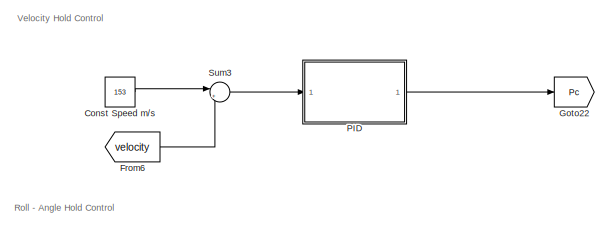
[diagram: root canvas - part 1/5, top right region]
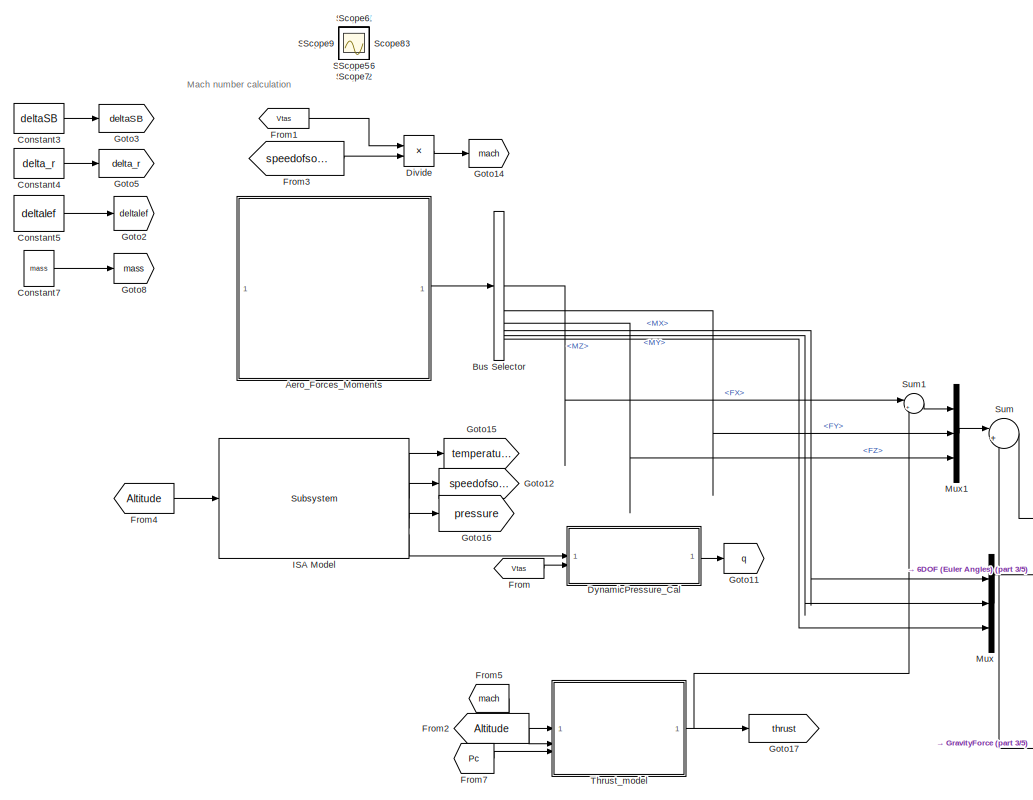
[diagram: root canvas - part 2/5, top left region]
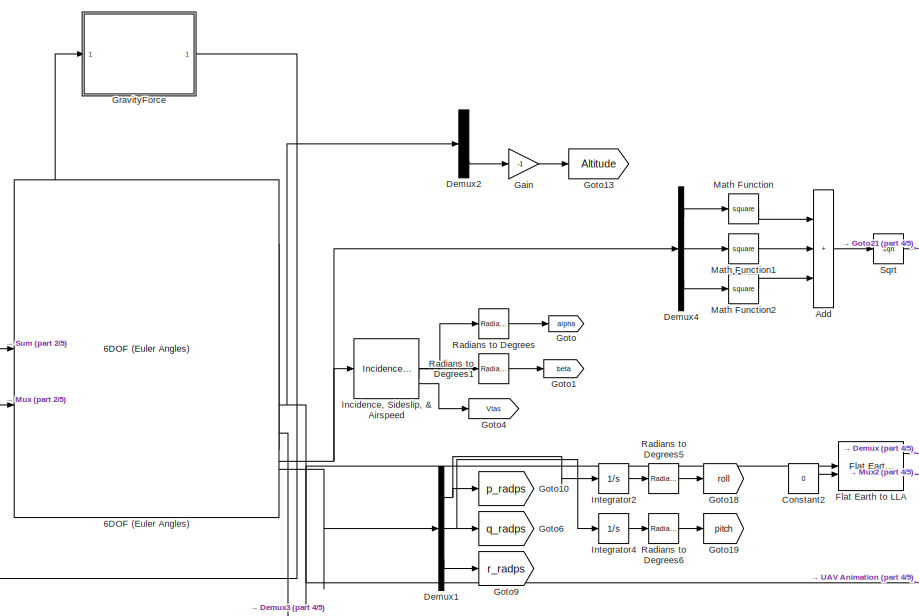
[diagram: root canvas - part 3/5, top center region]
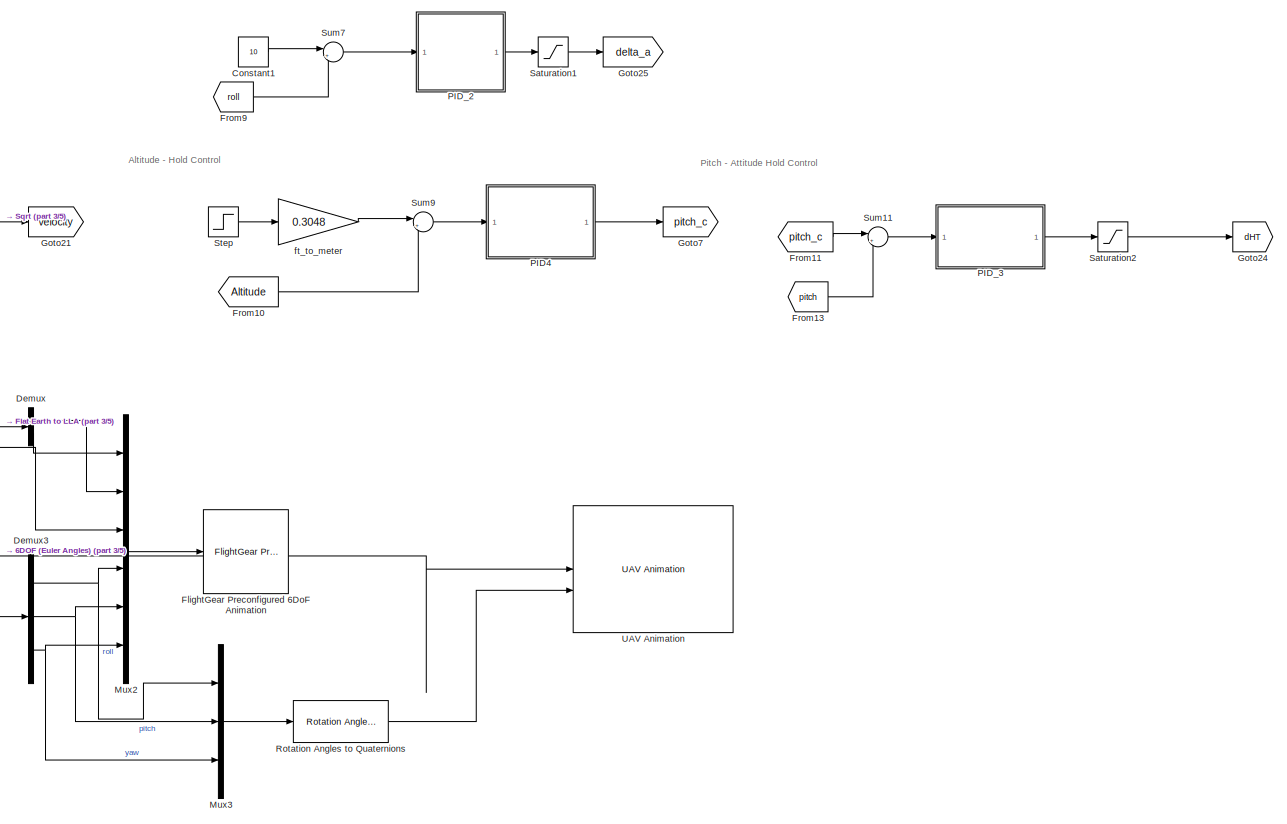
[diagram: root canvas - part 4/5, middle right region]
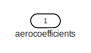
[diagram: root canvas - part 5/5, bottom left region]
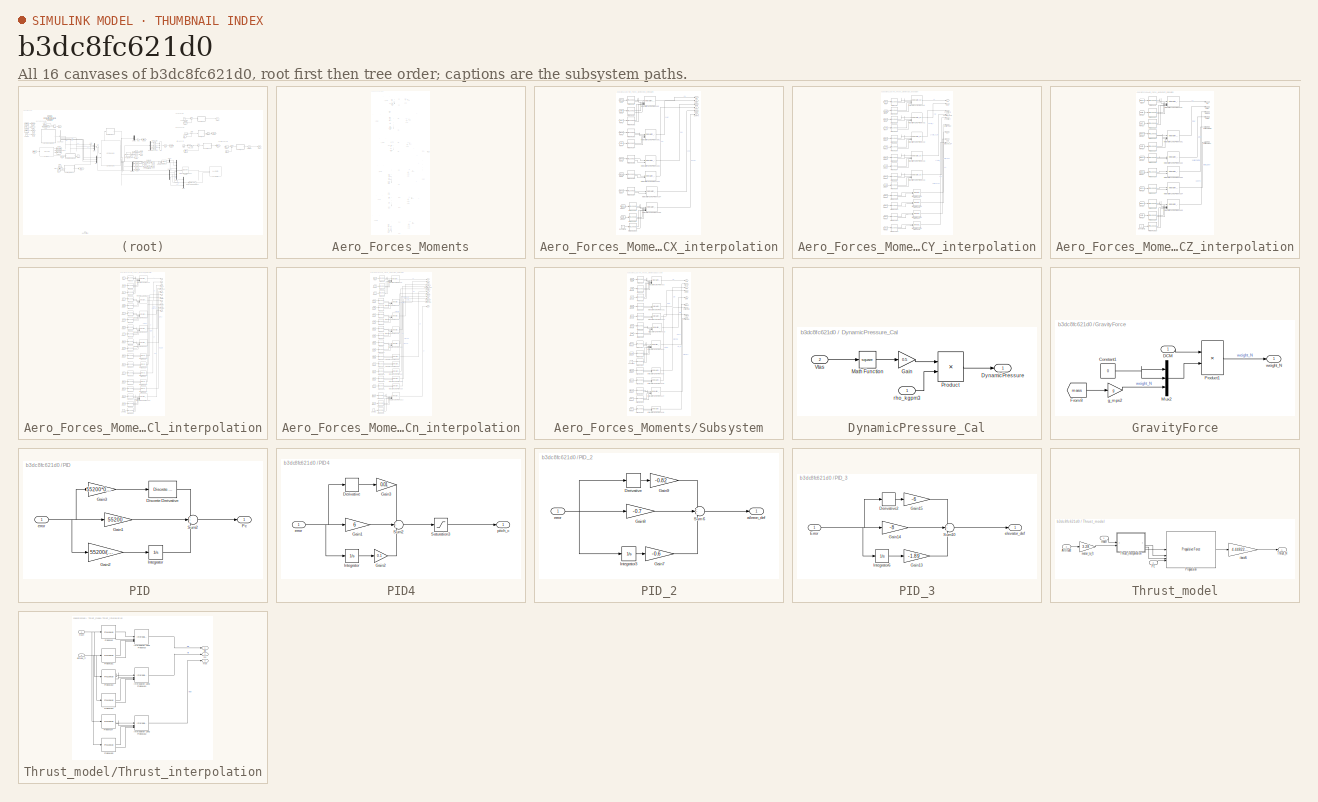
[diagram: thumbnail index - all 16 canvases of the model, root first then tree order]
MODEL slx_b3dc8fc621d0
KIND model
CONFIG AbsTol = auto
CONFIG EnableMultiTasking = off
CONFIG FixedStep = auto
CONFIG MaxStep = auto
CONFIG MinStep = auto
CONFIG RelTol = 1e-3
CONFIG SampleTimeConstraint = Unconstrained
CONFIG SolverName = VariableStepAuto
CONFIG StartTime = 0.0
CONFIG StopTime = 60
BLOCK [Reference] 6DOF (Euler Angles)  REF=shared6dof/6DOF (Euler Angles)
  LibrarySourceBlock = aerolib6dof2/6DOF (Euler Angles)
  SourceBlock = shared6dof/6DOF (Euler Angles)
  SourceType = 6DOF EoM (Body Axis)
BLOCK [Sum] Add
  IconShape = rectangular
  Inputs = +++
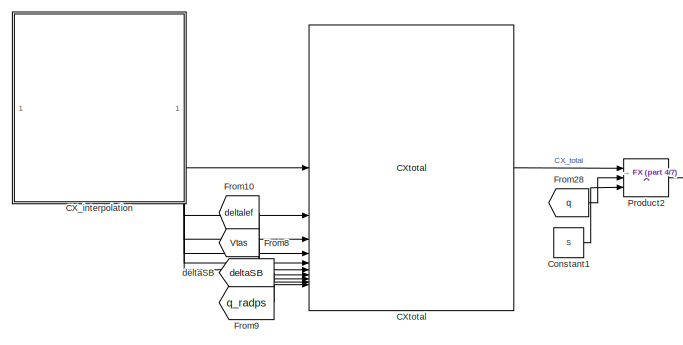
[diagram: Aero_Forces_Moments - part 1/7, top center region]
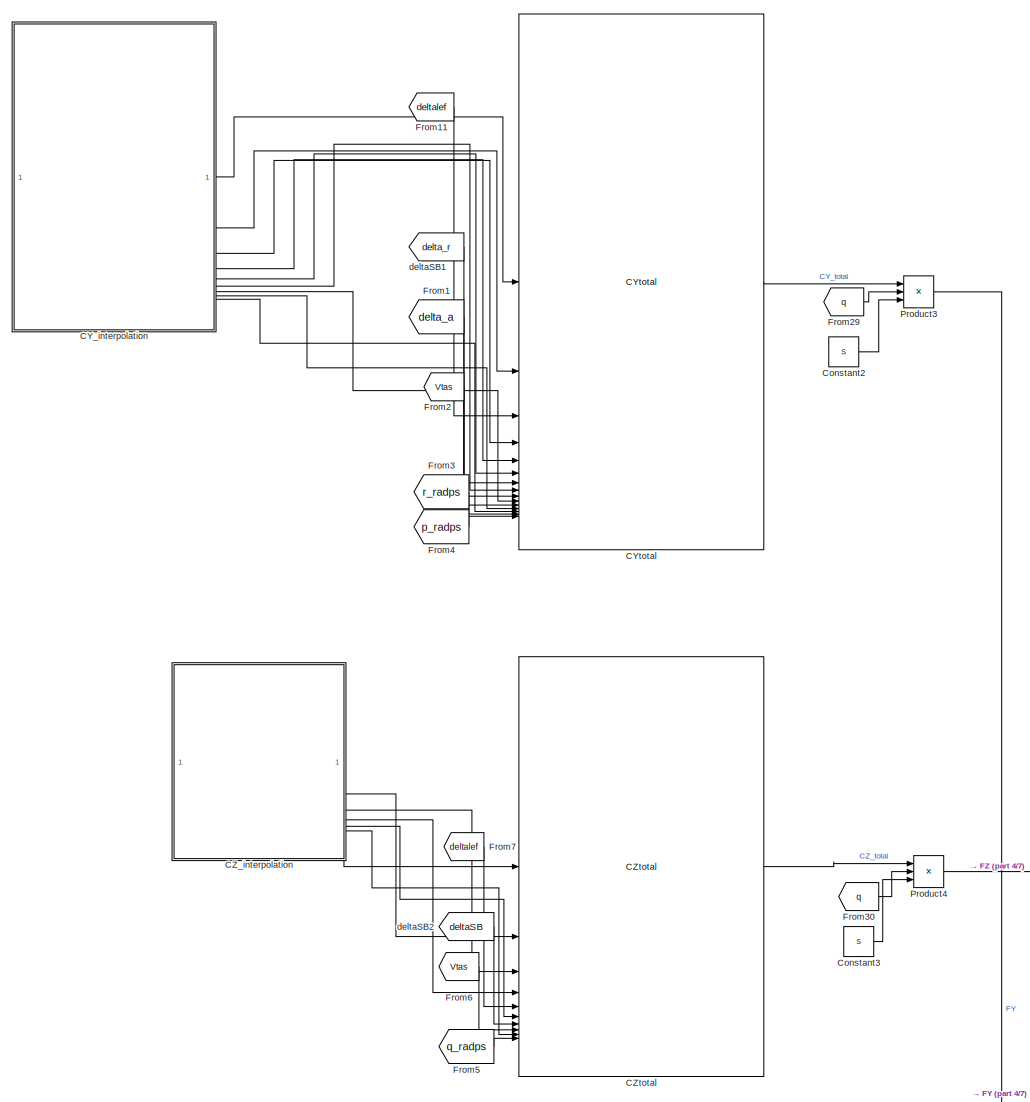
[diagram: Aero_Forces_Moments - part 2/7, top center region]
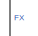
[diagram: Aero_Forces_Moments - part 3/7, top right region]
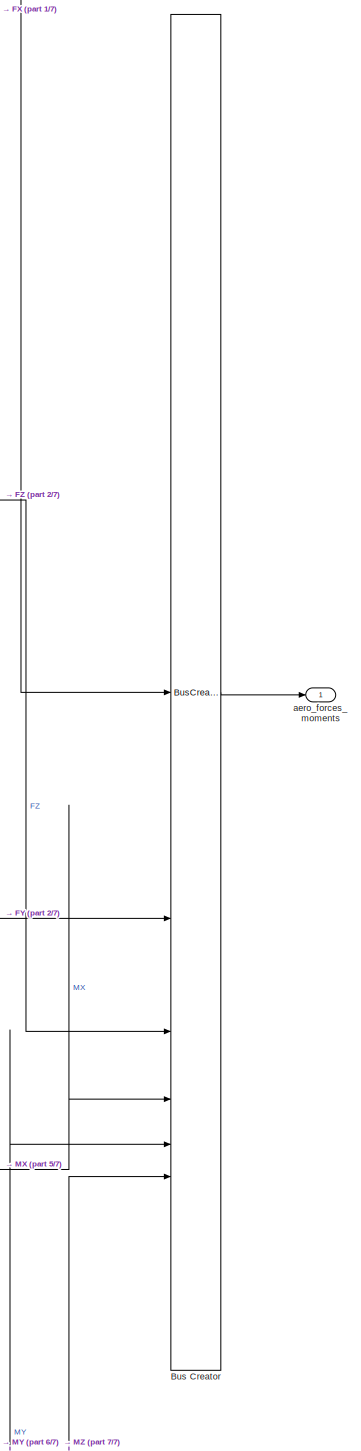
[diagram: Aero_Forces_Moments - part 4/7, middle right region]
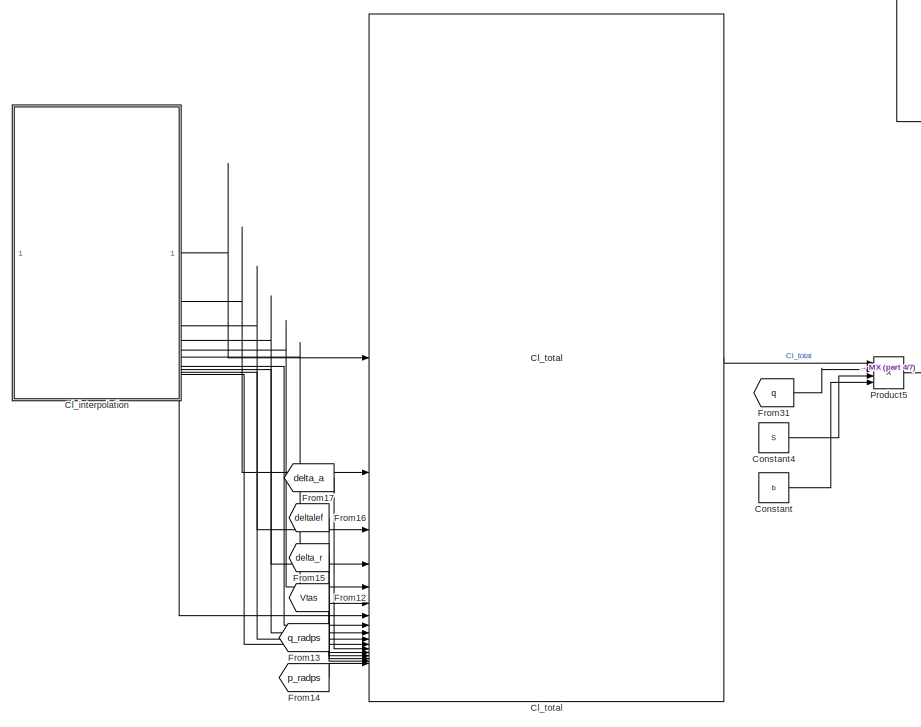
[diagram: Aero_Forces_Moments - part 5/7, central region]
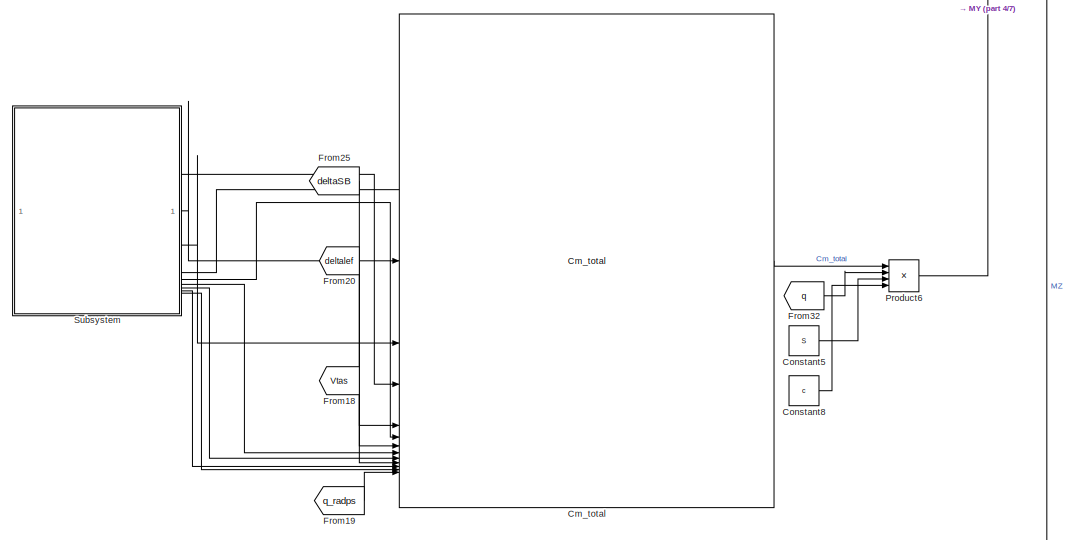
[diagram: Aero_Forces_Moments - part 6/7, full width, bottom band]
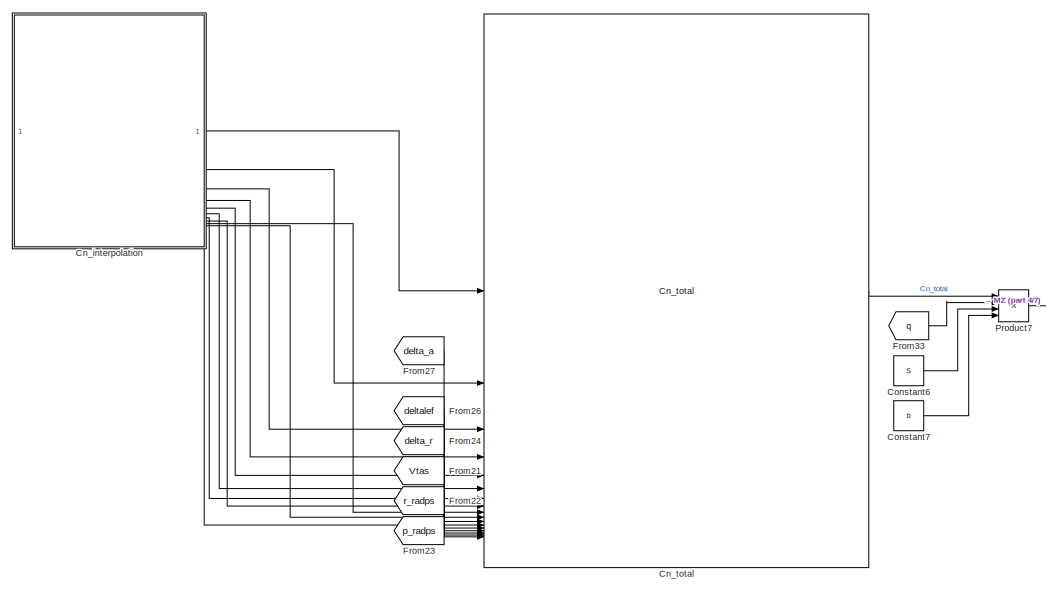
[diagram: Aero_Forces_Moments - part 7/7, full width, bottom band]
BLOCK [SubSystem] Aero_Forces_Moments
BLOCK [BusCreator] Aero_Forces_Moments/Bus Creator
  DisplayOption = bar
  InheritFromInputs = on
  Inputs = 6
BLOCK [SubSystem] Aero_Forces_Moments/CX_interpolation
BLOCK [Outport] Aero_Forces_Moments/CX_interpolation/CX
BLOCK [Outport] Aero_Forces_Moments/CX_interpolation/CXHT0
  Port = 6
BLOCK [Outport] Aero_Forces_Moments/CX_interpolation/CXlef
  Port = 2
BLOCK [Outport] Aero_Forces_Moments/CX_interpolation/CXq
  Port = 3
BLOCK [Outport] Aero_Forces_Moments/CX_interpolation/CXq1
  Port = 4
BLOCK [Outport] Aero_Forces_Moments/CX_interpolation/CXq2
  Port = 5
BLOCK [Constant] Aero_Forces_Moments/CX_interpolation/Constant1
  Value = 0
BLOCK [From] Aero_Forces_Moments/CX_interpolation/From
  GotoTag = alpha
  TagVisibility = global
BLOCK [From] Aero_Forces_Moments/CX_interpolation/From1
  GotoTag = beta
  TagVisibility = global
BLOCK [From] Aero_Forces_Moments/CX_interpolation/From11
  GotoTag = alpha
  TagVisibility = global
BLOCK [From] Aero_Forces_Moments/CX_interpolation/From12
  GotoTag = beta
  TagVisibility = global
BLOCK [From] Aero_Forces_Moments/CX_interpolation/From2
  GotoTag = dHT
  TagVisibility = global
BLOCK [From] Aero_Forces_Moments/CX_interpolation/From3
  GotoTag = alpha
  TagVisibility = global
BLOCK [From] Aero_Forces_Moments/CX_interpolation/From4
  GotoTag = beta
  TagVisibility = global
BLOCK [From] Aero_Forces_Moments/CX_interpolation/From5
  GotoTag = alpha
  TagVisibility = global
BLOCK [From] Aero_Forces_Moments/CX_interpolation/From6
  GotoTag = alpha
  TagVisibility = global
BLOCK [From] Aero_Forces_Moments/CX_interpolation/From7
  GotoTag = alpha
  TagVisibility = global
BLOCK [Interpolation_n-D] Aero_Forces_Moments/CX_interpolation/Interpolation Using Prelookup
  InputPortMap = u0,u1,u2,u3,u4,u5
  IntermediateResultsDataTypeStr = Inherit: Inherit via internal rule
  InternalRulePriority = Speed
  NumberOfTableDimensions = 3
  Table = F16_LookupTables.aero.data.CX.CX
BLOCK [Interpolation_n-D] Aero_Forces_Moments/CX_interpolation/Interpolation Using Prelookup1
  InputPortMap = u0,u1,u2,u3
  IntermediateResultsDataTypeStr = Inherit: Inherit via internal rule
  InternalRulePriority = Speed
  Table = F16_LookupTables.aero.data.CX.CXlef
BLOCK [Interpolation_n-D] Aero_Forces_Moments/CX_interpolation/Interpolation Using Prelookup2
  InputPortMap = u0,u1
  IntermediateResultsDataTypeStr = Inherit: Inherit via internal rule
  InternalRulePriority = Speed
  NumberOfTableDimensions = 1
  Table = F16_LookupTables.aero.data.CX.CXq
BLOCK [Interpolation_n-D] Aero_Forces_Moments/CX_interpolation/Interpolation Using Prelookup3
  InputPortMap = u0,u1
  IntermediateResultsDataTypeStr = Inherit: Inherit via internal rule
  InternalRulePriority = Speed
  NumberOfTableDimensions = 1
  Table = F16_LookupTables.aero.data.CX.deltaCXqlef
BLOCK [Interpolation_n-D] Aero_Forces_Moments/CX_interpolation/Interpolation Using Prelookup4
  InputPortMap = u0,u1
  IntermediateResultsDataTypeStr = Inherit: Inherit via internal rule
  InternalRulePriority = Speed
  NumberOfTableDimensions = 1
  Table = F16_LookupTables.aero.data.CX.deltaCXSB
BLOCK [Interpolation_n-D] Aero_Forces_Moments/CX_interpolation/Interpolation Using Prelookup5
  InputPortMap = u0,u1,u2,u3,u4,u5
  IntermediateResultsDataTypeStr = Inherit: Inherit via internal rule
  InternalRulePriority = Speed
  NumberOfTableDimensions = 3
  Table = F16_LookupTables.aero.data.CX.CX
BLOCK [PreLookup] Aero_Forces_Moments/CX_interpolation/Prelookup
  BreakpointsData = F16_LookupTables.aero.inputs.CX.CX.alpha
  ExtrapMethod = Linear
  InputPortMap = u0
BLOCK [PreLookup] Aero_Forces_Moments/CX_interpolation/Prelookup1
  BreakpointsData = F16_LookupTables.aero.inputs.CX.CX.beta
  ExtrapMethod = Linear
  InputPortMap = u0
BLOCK [PreLookup] Aero_Forces_Moments/CX_interpolation/Prelookup10
  BreakpointsData = F16_LookupTables.aero.inputs.CX.CX.dHT
  ExtrapMethod = Linear
  InputPortMap = u0
BLOCK [PreLookup] Aero_Forces_Moments/CX_interpolation/Prelookup2
  BreakpointsData = F16_LookupTables.aero.inputs.CX.CX.dHT
  ExtrapMethod = Linear
  InputPortMap = u0
BLOCK [PreLookup] Aero_Forces_Moments/CX_interpolation/Prelookup3
  BreakpointsData = F16_LookupTables.aero.inputs.CX.CXlef.alpha
  ExtrapMethod = Linear
  InputPortMap = u0
BLOCK [PreLookup] Aero_Forces_Moments/CX_interpolation/Prelookup4
  BreakpointsData = F16_LookupTables.aero.inputs.CX.CXlef.beta
  ExtrapMethod = Linear
  InputPortMap = u0
BLOCK [PreLookup] Aero_Forces_Moments/CX_interpolation/Prelookup5
  BreakpointsData = F16_LookupTables.aero.inputs.CX.CXq.alpha
  ExtrapMethod = Linear
  InputPortMap = u0
BLOCK [PreLookup] Aero_Forces_Moments/CX_interpolation/Prelookup6
  BreakpointsData = F16_LookupTables.aero.inputs.CX.deltaCXqlef.alpha
  ExtrapMethod = Linear
  InputPortMap = u0
BLOCK [PreLookup] Aero_Forces_Moments/CX_interpolation/Prelookup7
  BreakpointsData = F16_LookupTables.aero.inputs.CX.deltaCXSB.alpha
  ExtrapMethod = Linear
  InputPortMap = u0
BLOCK [PreLookup] Aero_Forces_Moments/CX_interpolation/Prelookup8
  BreakpointsData = F16_LookupTables.aero.inputs.CX.CX.alpha
  ExtrapMethod = Linear
  InputPortMap = u0
BLOCK [PreLookup] Aero_Forces_Moments/CX_interpolation/Prelookup9
  BreakpointsData = F16_LookupTables.aero.inputs.CX.CX.beta
  ExtrapMethod = Linear
  InputPortMap = u0
BLOCK [Reference] Aero_Forces_Moments/CXtotal  REF=coeff/CXtotal  (lib defined in slx_98ae481f2b9b)
  SourceBlock = coeff/CXtotal
  SourceType = SubSystem
BLOCK [SubSystem] Aero_Forces_Moments/CY_interpolation
BLOCK [Outport] Aero_Forces_Moments/CY_interpolation/CY
BLOCK [Outport] Aero_Forces_Moments/CY_interpolation/CYdelta_a
  Port = 3
BLOCK [Outport] Aero_Forces_Moments/CY_interpolation/CYdelta_aLEF
  Port = 4
BLOCK [Outport] Aero_Forces_Moments/CY_interpolation/CYdelta_r
  Port = 5
BLOCK [Outport] Aero_Forces_Moments/CY_interpolation/CYlef
  Port = 2
BLOCK [Outport] Aero_Forces_Moments/CY_interpolation/CYp
  Port = 8
BLOCK [Outport] Aero_Forces_Moments/CY_interpolation/CYr
  Port = 7
BLOCK [From] Aero_Forces_Moments/CY_interpolation/From
  GotoTag = alpha
  TagVisibility = global
BLOCK [From] Aero_Forces_Moments/CY_interpolation/From12
  GotoTag = alpha
  TagVisibility = global
BLOCK [From] Aero_Forces_Moments/CY_interpolation/From13
  GotoTag = beta
  TagVisibility = global
BLOCK [From] Aero_Forces_Moments/CY_interpolation/From14
  GotoTag = alpha
  TagVisibility = global
BLOCK [From] Aero_Forces_Moments/CY_interpolation/From15
  GotoTag = beta
  TagVisibility = global
BLOCK [From] Aero_Forces_Moments/CY_interpolation/From16
  GotoTag = alpha
  TagVisibility = global
BLOCK [From] Aero_Forces_Moments/CY_interpolation/From17
  GotoTag = beta
  TagVisibility = global
BLOCK [From] Aero_Forces_Moments/CY_interpolation/From18
  GotoTag = alpha
  TagVisibility = global
BLOCK [From] Aero_Forces_Moments/CY_interpolation/From19
  GotoTag = alpha
  TagVisibility = global
BLOCK [From] Aero_Forces_Moments/CY_interpolation/From20
  GotoTag = alpha
  TagVisibility = global
BLOCK [From] Aero_Forces_Moments/CY_interpolation/From21
  GotoTag = alpha
  TagVisibility = global
BLOCK [From] Aero_Forces_Moments/CY_interpolation/From5
  GotoTag = beta
  TagVisibility = global
BLOCK [From] Aero_Forces_Moments/CY_interpolation/From6
  GotoTag = alpha
  TagVisibility = global
BLOCK [From] Aero_Forces_Moments/CY_interpolation/From7
  GotoTag = beta
  TagVisibility = global
BLOCK [Interpolation_n-D] Aero_Forces_Moments/CY_interpolation/Interpolation Using Prelookup
  InputPortMap = u0,u1,u2,u3
  IntermediateResultsDataTypeStr = Inherit: Inherit via internal rule
  InternalRulePriority = Speed
  Table = F16_LookupTables.aero.data.CY.CY
BLOCK [Interpolation_n-D] Aero_Forces_Moments/CY_interpolation/Interpolation Using Prelookup1
  InputPortMap = u0,u1,u2,u3
  IntermediateResultsDataTypeStr = Inherit: Inherit via internal rule
  InternalRulePriority = Speed
  Table = F16_LookupTables.aero.data.CY.CYlef
BLOCK [Interpolation_n-D] Aero_Forces_Moments/CY_interpolation/Interpolation Using Prelookup2
  InputPortMap = u0,u1,u2,u3
  IntermediateResultsDataTypeStr = Inherit: Inherit via internal rule
  InternalRulePriority = Speed
  Table = F16_LookupTables.aero.data.CY.CYdelta_a
BLOCK [Interpolation_n-D] Aero_Forces_Moments/CY_interpolation/Interpolation Using Prelookup3
  InputPortMap = u0,u1,u2,u3
  IntermediateResultsDataTypeStr = Inherit: Inherit via internal rule
  InternalRulePriority = Speed
  Table = F16_LookupTables.aero.data.CY.CYdelta_aLEF
BLOCK [Interpolation_n-D] Aero_Forces_Moments/CY_interpolation/Interpolation Using Prelookup4
  InputPortMap = u0,u1,u2,u3
  IntermediateResultsDataTypeStr = Inherit: Inherit via internal rule
  InternalRulePriority = Speed
  Table = F16_LookupTables.aero.data.CY.CYdelta_r
BLOCK [Interpolation_n-D] Aero_Forces_Moments/CY_interpolation/Interpolation Using Prelookup5
  InputPortMap = u0,u1
  IntermediateResultsDataTypeStr = Inherit: Inherit via internal rule
  InternalRulePriority = Speed
  NumberOfTableDimensions = 1
  Table = F16_LookupTables.aero.data.CY.deltaCYrlef
BLOCK [Interpolation_n-D] Aero_Forces_Moments/CY_interpolation/Interpolation Using Prelookup6
  InputPortMap = u0,u1
  IntermediateResultsDataTypeStr = Inherit: Inherit via internal rule
  InternalRulePriority = Speed
  NumberOfTableDimensions = 1
  Table = F16_LookupTables.aero.data.CY.CYr
BLOCK [Interpolation_n-D] Aero_Forces_Moments/CY_interpolation/Interpolation Using Prelookup7
  InputPortMap = u0,u1
  IntermediateResultsDataTypeStr = Inherit: Inherit via internal rule
  InternalRulePriority = Speed
  NumberOfTableDimensions = 1
  Table = F16_LookupTables.aero.data.CY.CYp
BLOCK [Interpolation_n-D] Aero_Forces_Moments/CY_interpolation/Interpolation Using Prelookup8
  InputPortMap = u0,u1
  IntermediateResultsDataTypeStr = Inherit: Inherit via internal rule
  InternalRulePriority = Speed
  NumberOfTableDimensions = 1
  Table = F16_LookupTables.aero.data.CY.deltaCYplef
BLOCK [PreLookup] Aero_Forces_Moments/CY_interpolation/Prelookup
  BreakpointsData = F16_LookupTables.aero.inputs.CY.CY.alpha
  ExtrapMethod = Linear
  InputPortMap = u0
BLOCK [PreLookup] Aero_Forces_Moments/CY_interpolation/Prelookup1
  BreakpointsData = F16_LookupTables.aero.inputs.CY.CY.beta
  ExtrapMethod = Linear
  InputPortMap = u0
BLOCK [PreLookup] Aero_Forces_Moments/CY_interpolation/Prelookup10
  BreakpointsData = F16_LookupTables.aero.inputs.CY.deltaCYrlef.alpha
  ExtrapMethod = Linear
  InputPortMap = u0
BLOCK [PreLookup] Aero_Forces_Moments/CY_interpolation/Prelookup11
  BreakpointsData = F16_LookupTables.aero.inputs.CY.CYr.alpha
  ExtrapMethod = Linear
  InputPortMap = u0
BLOCK [PreLookup] Aero_Forces_Moments/CY_interpolation/Prelookup12
  BreakpointsData = F16_LookupTables.aero.inputs.CY.CYp.alpha
  ExtrapMethod = Linear
  InputPortMap = u0
BLOCK [PreLookup] Aero_Forces_Moments/CY_interpolation/Prelookup13
  BreakpointsData = F16_LookupTables.aero.inputs.CY.deltaCYplef.alpha
  ExtrapMethod = Linear
  InputPortMap = u0
BLOCK [PreLookup] Aero_Forces_Moments/CY_interpolation/Prelookup2
  BreakpointsData = F16_LookupTables.aero.inputs.CY.CYlef.alpha
  ExtrapMethod = Linear
  InputPortMap = u0
BLOCK [PreLookup] Aero_Forces_Moments/CY_interpolation/Prelookup3
  BreakpointsData = F16_LookupTables.aero.inputs.CY.CYlef.beta
  ExtrapMethod = Linear
  InputPortMap = u0
BLOCK [PreLookup] Aero_Forces_Moments/CY_interpolation/Prelookup4
  BreakpointsData = F16_LookupTables.aero.inputs.CY.CYdekta_a.alpha
  ExtrapMethod = Linear
  InputPortMap = u0
BLOCK [PreLookup] Aero_Forces_Moments/CY_interpolation/Prelookup5
  BreakpointsData = F16_LookupTables.aero.inputs.CY.CYdekta_a.beta
  ExtrapMethod = Linear
  InputPortMap = u0
BLOCK [PreLookup] Aero_Forces_Moments/CY_interpolation/Prelookup6
  BreakpointsData = F16_LookupTables.aero.inputs.CY.CYdelta_aLEF.alpha
  ExtrapMethod = Linear
  InputPortMap = u0
BLOCK [PreLookup] Aero_Forces_Moments/CY_interpolation/Prelookup7
  BreakpointsData = F16_LookupTables.aero.inputs.CY.CYdelta_aLEF.beta
  ExtrapMethod = Linear
  InputPortMap = u0
BLOCK [PreLookup] Aero_Forces_Moments/CY_interpolation/Prelookup8
  BreakpointsData = F16_LookupTables.aero.inputs.CY.CYdelta_r.alpha
  ExtrapMethod = Linear
  InputPortMap = u0
BLOCK [PreLookup] Aero_Forces_Moments/CY_interpolation/Prelookup9
  BreakpointsData = F16_LookupTables.aero.inputs.CY.CYdelta_r.beta
  ExtrapMethod = Linear
  InputPortMap = u0
BLOCK [Outport] Aero_Forces_Moments/CY_interpolation/deltaCYpLEF
  Port = 9
BLOCK [Outport] Aero_Forces_Moments/CY_interpolation/deltaCYrLEF
  Port = 6
BLOCK [Reference] Aero_Forces_Moments/CYtotal  REF=coeff/CYtotal  (lib defined in slx_98ae481f2b9b)
  SourceBlock = coeff/CYtotal
  SourceType = SubSystem
BLOCK [SubSystem] Aero_Forces_Moments/CZ_interpolation
BLOCK [Outport] Aero_Forces_Moments/CZ_interpolation/CZ
BLOCK [Outport] Aero_Forces_Moments/CZ_interpolation/CZHT0
  Port = 3
BLOCK [Outport] Aero_Forces_Moments/CZ_interpolation/CZlef
  Port = 2
BLOCK [Outport] Aero_Forces_Moments/CZ_interpolation/CZlef1
  Port = 4
BLOCK [Constant] Aero_Forces_Moments/CZ_interpolation/Constant1
  Value = 0
BLOCK [From] Aero_Forces_Moments/CZ_interpolation/From
  GotoTag = alpha
  TagVisibility = global
BLOCK [From] Aero_Forces_Moments/CZ_interpolation/From12
  GotoTag = beta
  TagVisibility = global
BLOCK [From] Aero_Forces_Moments/CZ_interpolation/From13
  GotoTag = dHT
  TagVisibility = global
BLOCK [From] Aero_Forces_Moments/CZ_interpolation/From14
  GotoTag = alpha
  TagVisibility = global
BLOCK [From] Aero_Forces_Moments/CZ_interpolation/From15
  GotoTag = beta
  TagVisibility = global
BLOCK [From] Aero_Forces_Moments/CZ_interpolation/From16
  GotoTag = alpha
  TagVisibility = global
BLOCK [From] Aero_Forces_Moments/CZ_interpolation/From17
  GotoTag = alpha
  TagVisibility = global
BLOCK [From] Aero_Forces_Moments/CZ_interpolation/From18
  GotoTag = alpha
  TagVisibility = global
BLOCK [From] Aero_Forces_Moments/CZ_interpolation/From19
  GotoTag = alpha
  TagVisibility = global
BLOCK [From] Aero_Forces_Moments/CZ_interpolation/From20
  GotoTag = beta
  TagVisibility = global
BLOCK [Interpolation_n-D] Aero_Forces_Moments/CZ_interpolation/Interpolation Using Prelookup
  InputPortMap = u0,u1,u2,u3,u4,u5
  IntermediateResultsDataTypeStr = Inherit: Inherit via internal rule
  InternalRulePriority = Speed
  NumberOfTableDimensions = 3
  Table = F16_LookupTables.aero.data.CZ.CZ
BLOCK [Interpolation_n-D] Aero_Forces_Moments/CZ_interpolation/Interpolation Using Prelookup1
  InputPortMap = u0,u1,u2,u3
  IntermediateResultsDataTypeStr = Inherit: Inherit via internal rule
  InternalRulePriority = Speed
  Table = F16_LookupTables.aero.data.CZ.CZlef
BLOCK [Interpolation_n-D] Aero_Forces_Moments/CZ_interpolation/Interpolation Using Prelookup2
  InputPortMap = u0,u1
  IntermediateResultsDataTypeStr = Inherit: Inherit via internal rule
  InternalRulePriority = Speed
  NumberOfTableDimensions = 1
  Table = F16_LookupTables.aero.data.CZ.CZq
BLOCK [Interpolation_n-D] Aero_Forces_Moments/CZ_interpolation/Interpolation Using Prelookup3
  InputPortMap = u0,u1
  IntermediateResultsDataTypeStr = Inherit: Inherit via internal rule
  InternalRulePriority = Speed
  NumberOfTableDimensions = 1
  Table = F16_LookupTables.aero.data.CZ.deltaCZSB
BLOCK [Interpolation_n-D] Aero_Forces_Moments/CZ_interpolation/Interpolation Using Prelookup4
  InputPortMap = u0,u1
  IntermediateResultsDataTypeStr = Inherit: Inherit via internal rule
  InternalRulePriority = Speed
  NumberOfTableDimensions = 1
  Table = F16_LookupTables.aero.data.CZ.deltaCZqlef
BLOCK [Interpolation_n-D] Aero_Forces_Moments/CZ_interpolation/Interpolation Using Prelookup5
  InputPortMap = u0,u1,u2,u3,u4,u5
  IntermediateResultsDataTypeStr = Inherit: Inherit via internal rule
  InternalRulePriority = Speed
  NumberOfTableDimensions = 3
  Table = F16_LookupTables.aero.data.CZ.CZ
BLOCK [PreLookup] Aero_Forces_Moments/CZ_interpolation/Prelookup
  BreakpointsData = F16_LookupTables.aero.inputs.CZ.CZ.alpha
  ExtrapMethod = Linear
  InputPortMap = u0
BLOCK [PreLookup] Aero_Forces_Moments/CZ_interpolation/Prelookup1
  BreakpointsData = F16_LookupTables.aero.inputs.CZ.CZ.beta
  ExtrapMethod = Linear
  InputPortMap = u0
BLOCK [PreLookup] Aero_Forces_Moments/CZ_interpolation/Prelookup10
  BreakpointsData = F16_LookupTables.aero.inputs.CZ.CZ.dHT
  ExtrapMethod = Linear
  InputPortMap = u0
BLOCK [PreLookup] Aero_Forces_Moments/CZ_interpolation/Prelookup2
  BreakpointsData = F16_LookupTables.aero.inputs.CZ.CZ.dHT
  ExtrapMethod = Linear
  InputPortMap = u0
BLOCK [PreLookup] Aero_Forces_Moments/CZ_interpolation/Prelookup3
  BreakpointsData = F16_LookupTables.aero.inputs.CZ.CZlef.alpha
  ExtrapMethod = Linear
  InputPortMap = u0
BLOCK [PreLookup] Aero_Forces_Moments/CZ_interpolation/Prelookup4
  BreakpointsData = F16_LookupTables.aero.inputs.CZ.CZlef.beta
  ExtrapMethod = Linear
  InputPortMap = u0
BLOCK [PreLookup] Aero_Forces_Moments/CZ_interpolation/Prelookup5
  BreakpointsData = F16_LookupTables.aero.inputs.CZ.CZq.alpha
  ExtrapMethod = Linear
  InputPortMap = u0
BLOCK [PreLookup] Aero_Forces_Moments/CZ_interpolation/Prelookup6
  BreakpointsData = F16_LookupTables.aero.inputs.CZ.deltaCZSB.alpha
  ExtrapMethod = Linear
  InputPortMap = u0
BLOCK [PreLookup] Aero_Forces_Moments/CZ_interpolation/Prelookup7
  BreakpointsData = F16_LookupTables.aero.inputs.CZ.deltaCZqlef.alpha
  ExtrapMethod = Linear
  InputPortMap = u0
BLOCK [PreLookup] Aero_Forces_Moments/CZ_interpolation/Prelookup8
  BreakpointsData = F16_LookupTables.aero.inputs.CZ.CZ.alpha
  ExtrapMethod = Linear
  InputPortMap = u0
BLOCK [PreLookup] Aero_Forces_Moments/CZ_interpolation/Prelookup9
  BreakpointsData = F16_LookupTables.aero.inputs.CZ.CZ.beta
  ExtrapMethod = Linear
  InputPortMap = u0
BLOCK [Outport] Aero_Forces_Moments/CZ_interpolation/deltaCZlefSB
  Port = 5
BLOCK [Outport] Aero_Forces_Moments/CZ_interpolation/deltaCZlqef
  Port = 6
BLOCK [Reference] Aero_Forces_Moments/CZtotal  REF=coeff/CZtotal  (lib defined in slx_98ae481f2b9b)
  SourceBlock = coeff/CZtotal
  SourceType = SubSystem
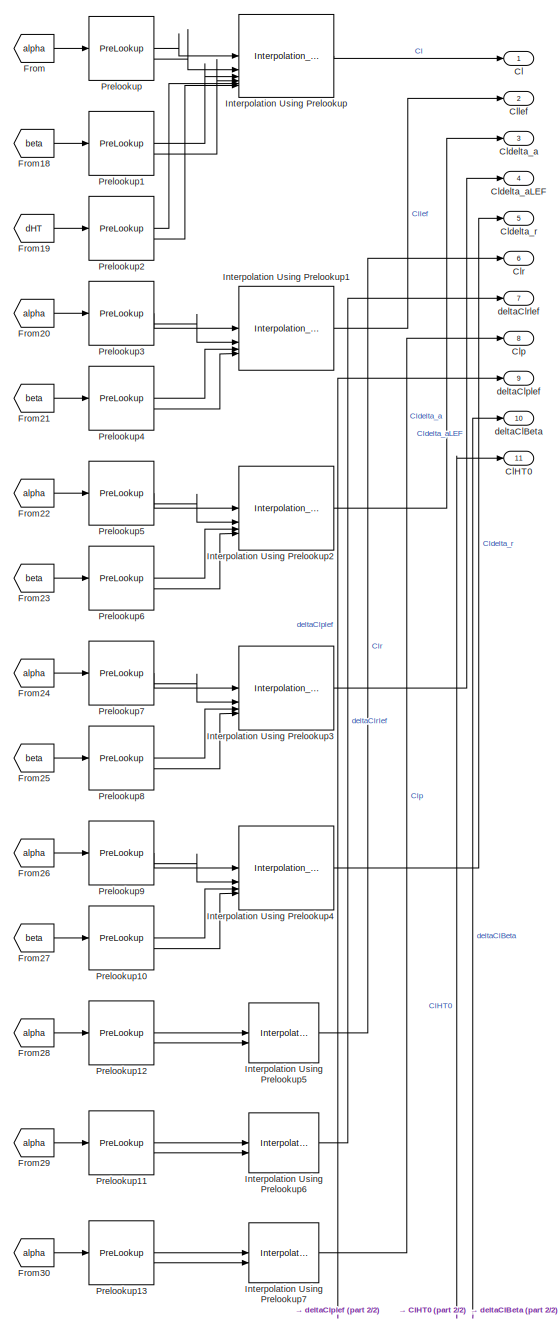
[diagram: Aero_Forces_Moments/Cl_interpolation - part 1/2, most of the canvas]
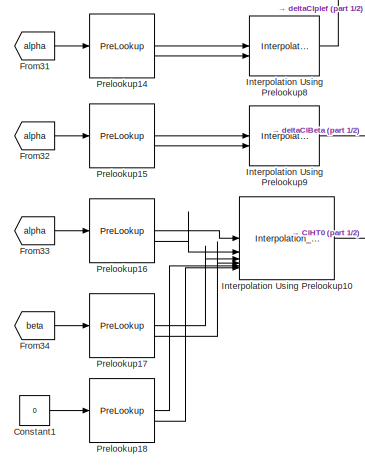
[diagram: Aero_Forces_Moments/Cl_interpolation - part 2/2, bottom left region]
BLOCK [SubSystem] Aero_Forces_Moments/Cl_interpolation
BLOCK [Outport] Aero_Forces_Moments/Cl_interpolation/Cl
BLOCK [Outport] Aero_Forces_Moments/Cl_interpolation/ClHT0
  Port = 11
BLOCK [Outport] Aero_Forces_Moments/Cl_interpolation/Cldelta_a
  Port = 3
BLOCK [Outport] Aero_Forces_Moments/Cl_interpolation/Cldelta_aLEF
  Port = 4
BLOCK [Outport] Aero_Forces_Moments/Cl_interpolation/Cldelta_r
  Port = 5
BLOCK [Outport] Aero_Forces_Moments/Cl_interpolation/Cllef
  Port = 2
BLOCK [Outport] Aero_Forces_Moments/Cl_interpolation/Clp
  Port = 8
BLOCK [Outport] Aero_Forces_Moments/Cl_interpolation/Clr
  Port = 6
BLOCK [Constant] Aero_Forces_Moments/Cl_interpolation/Constant1
  Value = 0
BLOCK [From] Aero_Forces_Moments/Cl_interpolation/From
  GotoTag = alpha
  TagVisibility = global
BLOCK [From] Aero_Forces_Moments/Cl_interpolation/From18
  GotoTag = beta
  TagVisibility = global
BLOCK [From] Aero_Forces_Moments/Cl_interpolation/From19
  GotoTag = dHT
  TagVisibility = global
BLOCK [From] Aero_Forces_Moments/Cl_interpolation/From20
  GotoTag = alpha
  TagVisibility = global
BLOCK [From] Aero_Forces_Moments/Cl_interpolation/From21
  GotoTag = beta
  TagVisibility = global
BLOCK [From] Aero_Forces_Moments/Cl_interpolation/From22
  GotoTag = alpha
  TagVisibility = global
BLOCK [From] Aero_Forces_Moments/Cl_interpolation/From23
  GotoTag = beta
  TagVisibility = global
BLOCK [From] Aero_Forces_Moments/Cl_interpolation/From24
  GotoTag = alpha
  TagVisibility = global
BLOCK [From] Aero_Forces_Moments/Cl_interpolation/From25
  GotoTag = beta
  TagVisibility = global
BLOCK [From] Aero_Forces_Moments/Cl_interpolation/From26
  GotoTag = alpha
  TagVisibility = global
BLOCK [From] Aero_Forces_Moments/Cl_interpolation/From27
  GotoTag = beta
  TagVisibility = global
BLOCK [From] Aero_Forces_Moments/Cl_interpolation/From28
  GotoTag = alpha
  TagVisibility = global
BLOCK [From] Aero_Forces_Moments/Cl_interpolation/From29
  GotoTag = alpha
  TagVisibility = global
BLOCK [From] Aero_Forces_Moments/Cl_interpolation/From30
  GotoTag = alpha
  TagVisibility = global
BLOCK [From] Aero_Forces_Moments/Cl_interpolation/From31
  GotoTag = alpha
  TagVisibility = global
BLOCK [From] Aero_Forces_Moments/Cl_interpolation/From32
  GotoTag = alpha
  TagVisibility = global
BLOCK [From] Aero_Forces_Moments/Cl_interpolation/From33
  GotoTag = alpha
  TagVisibility = global
BLOCK [From] Aero_Forces_Moments/Cl_interpolation/From34
  GotoTag = beta
  TagVisibility = global
BLOCK [Interpolation_n-D] Aero_Forces_Moments/Cl_interpolation/Interpolation Using Prelookup
  InputPortMap = u0,u1,u2,u3,u4,u5
  IntermediateResultsDataTypeStr = Inherit: Inherit via internal rule
  InternalRulePriority = Speed
  NumberOfTableDimensions = 3
  Table = F16_LookupTables.aero.data.Cl.Cl
BLOCK [Interpolation_n-D] Aero_Forces_Moments/Cl_interpolation/Interpolation Using Prelookup1
  InputPortMap = u0,u1,u2,u3
  IntermediateResultsDataTypeStr = Inherit: Inherit via internal rule
  InternalRulePriority = Speed
  Table = F16_LookupTables.aero.data.Cl.Cllef
BLOCK [Interpolation_n-D] Aero_Forces_Moments/Cl_interpolation/Interpolation Using Prelookup10
  InputPortMap = u0,u1,u2,u3,u4,u5
  IntermediateResultsDataTypeStr = Inherit: Inherit via internal rule
  InternalRulePriority = Speed
  NumberOfTableDimensions = 3
  Table = F16_LookupTables.aero.data.Cl.Cl
BLOCK [Interpolation_n-D] Aero_Forces_Moments/Cl_interpolation/Interpolation Using Prelookup2
  InputPortMap = u0,u1,u2,u3
  IntermediateResultsDataTypeStr = Inherit: Inherit via internal rule
  InternalRulePriority = Speed
  Table = F16_LookupTables.aero.data.Cl.Cldelta_a
BLOCK [Interpolation_n-D] Aero_Forces_Moments/Cl_interpolation/Interpolation Using Prelookup3
  InputPortMap = u0,u1,u2,u3
  IntermediateResultsDataTypeStr = Inherit: Inherit via internal rule
  InternalRulePriority = Speed
  Table = F16_LookupTables.aero.data.Cl.Cldelta_aLEF
BLOCK [Interpolation_n-D] Aero_Forces_Moments/Cl_interpolation/Interpolation Using Prelookup4
  InputPortMap = u0,u1,u2,u3
  IntermediateResultsDataTypeStr = Inherit: Inherit via internal rule
  InternalRulePriority = Speed
  Table = F16_LookupTables.aero.data.Cl.Cldelta_r
BLOCK [Interpolation_n-D] Aero_Forces_Moments/Cl_interpolation/Interpolation Using Prelookup5
  InputPortMap = u0,u1
  IntermediateResultsDataTypeStr = Inherit: Inherit via internal rule
  InternalRulePriority = Speed
  NumberOfTableDimensions = 1
  Table = F16_LookupTables.aero.data.Cl.Clr
BLOCK [Interpolation_n-D] Aero_Forces_Moments/Cl_interpolation/Interpolation Using Prelookup6
  InputPortMap = u0,u1
  IntermediateResultsDataTypeStr = Inherit: Inherit via internal rule
  InternalRulePriority = Speed
  NumberOfTableDimensions = 1
  Table = F16_LookupTables.aero.data.Cl.deltaClrlef
BLOCK [Interpolation_n-D] Aero_Forces_Moments/Cl_interpolation/Interpolation Using Prelookup7
  InputPortMap = u0,u1
  IntermediateResultsDataTypeStr = Inherit: Inherit via internal rule
  InternalRulePriority = Speed
  NumberOfTableDimensions = 1
  Table = F16_LookupTables.aero.data.Cl.Clp
BLOCK [Interpolation_n-D] Aero_Forces_Moments/Cl_interpolation/Interpolation Using Prelookup8
  InputPortMap = u0,u1
  IntermediateResultsDataTypeStr = Inherit: Inherit via internal rule
  InternalRulePriority = Speed
  NumberOfTableDimensions = 1
  Table = F16_LookupTables.aero.data.Cl.deltaClplef
BLOCK [Interpolation_n-D] Aero_Forces_Moments/Cl_interpolation/Interpolation Using Prelookup9
  InputPortMap = u0,u1
  IntermediateResultsDataTypeStr = Inherit: Inherit via internal rule
  InternalRulePriority = Speed
  NumberOfTableDimensions = 1
  Table = F16_LookupTables.aero.data.Cl.deltaClBeta
BLOCK [PreLookup] Aero_Forces_Moments/Cl_interpolation/Prelookup
  BreakpointsData = F16_LookupTables.aero.inputs.Cl.Cl.alpha
  ExtrapMethod = Linear
  InputPortMap = u0
BLOCK [PreLookup] Aero_Forces_Moments/Cl_interpolation/Prelookup1
  BreakpointsData = F16_LookupTables.aero.inputs.Cl.Cl.beta
  ExtrapMethod = Linear
  InputPortMap = u0
BLOCK [PreLookup] Aero_Forces_Moments/Cl_interpolation/Prelookup10
  BreakpointsData = F16_LookupTables.aero.inputs.Cl.Cldelta_r.beta
  ExtrapMethod = Linear
  InputPortMap = u0
BLOCK [PreLookup] Aero_Forces_Moments/Cl_interpolation/Prelookup11
  BreakpointsData = F16_LookupTables.aero.inputs.Cl.deltaClrlef.alpha
  ExtrapMethod = Linear
  InputPortMap = u0
BLOCK [PreLookup] Aero_Forces_Moments/Cl_interpolation/Prelookup12
  BreakpointsData = F16_LookupTables.aero.inputs.Cl.Clr.alpha
  ExtrapMethod = Linear
  InputPortMap = u0
BLOCK [PreLookup] Aero_Forces_Moments/Cl_interpolation/Prelookup13
  BreakpointsData = F16_LookupTables.aero.inputs.Cl.Clp.alpha
  ExtrapMethod = Linear
  InputPortMap = u0
BLOCK [PreLookup] Aero_Forces_Moments/Cl_interpolation/Prelookup14
  BreakpointsData = F16_LookupTables.aero.inputs.Cl.deltaClplef.alpha
  ExtrapMethod = Linear
  InputPortMap = u0
BLOCK [PreLookup] Aero_Forces_Moments/Cl_interpolation/Prelookup15
  BreakpointsData = F16_LookupTables.aero.inputs.Cl.deltaClBeta.alpha
  ExtrapMethod = Linear
  InputPortMap = u0
BLOCK [PreLookup] Aero_Forces_Moments/Cl_interpolation/Prelookup16
  BreakpointsData = F16_LookupTables.aero.inputs.Cl.Cl.alpha
  ExtrapMethod = Linear
  InputPortMap = u0
BLOCK [PreLookup] Aero_Forces_Moments/Cl_interpolation/Prelookup17
  BreakpointsData = F16_LookupTables.aero.inputs.Cl.Cl.beta
  ExtrapMethod = Linear
  InputPortMap = u0
BLOCK [PreLookup] Aero_Forces_Moments/Cl_interpolation/Prelookup18
  BreakpointsData = F16_LookupTables.aero.inputs.Cl.Cl.dHT
  ExtrapMethod = Linear
  InputPortMap = u0
BLOCK [PreLookup] Aero_Forces_Moments/Cl_interpolation/Prelookup2
  BreakpointsData = F16_LookupTables.aero.inputs.Cl.Cl.dHT
  ExtrapMethod = Linear
  InputPortMap = u0
BLOCK [PreLookup] Aero_Forces_Moments/Cl_interpolation/Prelookup3
  BreakpointsData = F16_LookupTables.aero.inputs.Cl.Cllef.alpha
  ExtrapMethod = Linear
  InputPortMap = u0
BLOCK [PreLookup] Aero_Forces_Moments/Cl_interpolation/Prelookup4
  BreakpointsData = F16_LookupTables.aero.inputs.Cl.Cllef.beta
  ExtrapMethod = Linear
  InputPortMap = u0
BLOCK [PreLookup] Aero_Forces_Moments/Cl_interpolation/Prelookup5
  BreakpointsData = F16_LookupTables.aero.inputs.Cl.Cldelta_a.alpha
  ExtrapMethod = Linear
  InputPortMap = u0
BLOCK [PreLookup] Aero_Forces_Moments/Cl_interpolation/Prelookup6
  BreakpointsData = F16_LookupTables.aero.inputs.Cl.Cldelta_a.beta
  ExtrapMethod = Linear
  InputPortMap = u0
BLOCK [PreLookup] Aero_Forces_Moments/Cl_interpolation/Prelookup7
  BreakpointsData = F16_LookupTables.aero.inputs.Cl.Cldelta_aLEF.alpha
  ExtrapMethod = Linear
  InputPortMap = u0
BLOCK [PreLookup] Aero_Forces_Moments/Cl_interpolation/Prelookup8
  BreakpointsData = F16_LookupTables.aero.inputs.Cl.Cldelta_aLEF.beta
  ExtrapMethod = Linear
  InputPortMap = u0
BLOCK [PreLookup] Aero_Forces_Moments/Cl_interpolation/Prelookup9
  BreakpointsData = F16_LookupTables.aero.inputs.Cl.Cldelta_r.alpha
  ExtrapMethod = Linear
  InputPortMap = u0
BLOCK [Outport] Aero_Forces_Moments/Cl_interpolation/deltaClBeta
  Port = 10
BLOCK [Outport] Aero_Forces_Moments/Cl_interpolation/deltaClplef
  Port = 9
BLOCK [Outport] Aero_Forces_Moments/Cl_interpolation/deltaClrlef
  Port = 7
BLOCK [Reference] Aero_Forces_Moments/Cl_total  REF=coeff/Cl_total  (lib defined in slx_98ae481f2b9b)
  SourceBlock = coeff/Cl_total
  SourceType = SubSystem
BLOCK [Reference] Aero_Forces_Moments/Cm_total  REF=coeff/Cm_total  (lib defined in slx_98ae481f2b9b)
  SourceBlock = coeff/Cm_total
  SourceType = SubSystem
BLOCK [SubSystem] Aero_Forces_Moments/Cn_interpolation
BLOCK [Outport] Aero_Forces_Moments/Cn_interpolation/Cn
BLOCK [Outport] Aero_Forces_Moments/Cn_interpolation/Cn1
  Port = 11
BLOCK [Outport] Aero_Forces_Moments/Cn_interpolation/Cndelta_a
  Port = 3
BLOCK [Outport] Aero_Forces_Moments/Cn_interpolation/Cndelta_aLEF
  Port = 4
BLOCK [Outport] Aero_Forces_Moments/Cn_interpolation/Cndelta_r
  Port = 5
BLOCK [Outport] Aero_Forces_Moments/Cn_interpolation/Cnlef
  Port = 2
BLOCK [Outport] Aero_Forces_Moments/Cn_interpolation/Cnp
  Port = 8
BLOCK [Outport] Aero_Forces_Moments/Cn_interpolation/Cnr
  Port = 6
BLOCK [Constant] Aero_Forces_Moments/Cn_interpolation/Constant1
  Value = 0
BLOCK [From] Aero_Forces_Moments/Cn_interpolation/From
  GotoTag = alpha
  TagVisibility = global
BLOCK [From] Aero_Forces_Moments/Cn_interpolation/From28
  GotoTag = beta
  TagVisibility = global
BLOCK [From] Aero_Forces_Moments/Cn_interpolation/From29
  GotoTag = dHT
  TagVisibility = global
BLOCK [From] Aero_Forces_Moments/Cn_interpolation/From30
  GotoTag = alpha
  TagVisibility = global
BLOCK [From] Aero_Forces_Moments/Cn_interpolation/From31
  GotoTag = beta
  TagVisibility = global
BLOCK [From] Aero_Forces_Moments/Cn_interpolation/From32
  GotoTag = alpha
  TagVisibility = global
BLOCK [From] Aero_Forces_Moments/Cn_interpolation/From33
  GotoTag = beta
  TagVisibility = global
BLOCK [From] Aero_Forces_Moments/Cn_interpolation/From34
  GotoTag = alpha
  TagVisibility = global
BLOCK [From] Aero_Forces_Moments/Cn_interpolation/From35
  GotoTag = beta
  TagVisibility = global
BLOCK [From] Aero_Forces_Moments/Cn_interpolation/From36
  GotoTag = alpha
  TagVisibility = global
BLOCK [From] Aero_Forces_Moments/Cn_interpolation/From37
  GotoTag = beta
  TagVisibility = global
BLOCK [From] Aero_Forces_Moments/Cn_interpolation/From38
  GotoTag = alpha
  TagVisibility = global
BLOCK [From] Aero_Forces_Moments/Cn_interpolation/From39
  GotoTag = alpha
  TagVisibility = global
BLOCK [From] Aero_Forces_Moments/Cn_interpolation/From40
  GotoTag = alpha
  TagVisibility = global
BLOCK [From] Aero_Forces_Moments/Cn_interpolation/From41
  GotoTag = alpha
  TagVisibility = global
BLOCK [From] Aero_Forces_Moments/Cn_interpolation/From42
  GotoTag = alpha
  TagVisibility = global
BLOCK [From] Aero_Forces_Moments/Cn_interpolation/From43
  GotoTag = alpha
  TagVisibility = global
BLOCK [From] Aero_Forces_Moments/Cn_interpolation/From44
  GotoTag = beta
  TagVisibility = global
BLOCK [Interpolation_n-D] Aero_Forces_Moments/Cn_interpolation/Interpolation Using Prelookup
  InputPortMap = u0,u1,u2,u3,u4,u5
  IntermediateResultsDataTypeStr = Inherit: Inherit via internal rule
  InternalRulePriority = Speed
  NumberOfTableDimensions = 3
  Table = F16_LookupTables.aero.data.Cn.Cn
BLOCK [Interpolation_n-D] Aero_Forces_Moments/Cn_interpolation/Interpolation Using Prelookup1
  InputPortMap = u0,u1,u2,u3
  IntermediateResultsDataTypeStr = Inherit: Inherit via internal rule
  InternalRulePriority = Speed
  Table = F16_LookupTables.aero.data.Cn.Cnlef
BLOCK [Interpolation_n-D] Aero_Forces_Moments/Cn_interpolation/Interpolation Using Prelookup10
  InputPortMap = u0,u1,u2,u3,u4,u5
  IntermediateResultsDataTypeStr = Inherit: Inherit via internal rule
  InternalRulePriority = Speed
  NumberOfTableDimensions = 3
  Table = F16_LookupTables.aero.data.Cn.Cn
BLOCK [Interpolation_n-D] Aero_Forces_Moments/Cn_interpolation/Interpolation Using Prelookup2
  InputPortMap = u0,u1,u2,u3
  IntermediateResultsDataTypeStr = Inherit: Inherit via internal rule
  InternalRulePriority = Speed
  Table = F16_LookupTables.aero.data.Cn.Cndelta_a
BLOCK [Interpolation_n-D] Aero_Forces_Moments/Cn_interpolation/Interpolation Using Prelookup3
  InputPortMap = u0,u1,u2,u3
  IntermediateResultsDataTypeStr = Inherit: Inherit via internal rule
  InternalRulePriority = Speed
  Table = F16_LookupTables.aero.data.Cn.Cndelta_aLEF
BLOCK [Interpolation_n-D] Aero_Forces_Moments/Cn_interpolation/Interpolation Using Prelookup4
  InputPortMap = u0,u1,u2,u3
  IntermediateResultsDataTypeStr = Inherit: Inherit via internal rule
  InternalRulePriority = Speed
  Table = F16_LookupTables.aero.data.Cn.Cndelta_r
BLOCK [Interpolation_n-D] Aero_Forces_Moments/Cn_interpolation/Interpolation Using Prelookup5
  InputPortMap = u0,u1
  IntermediateResultsDataTypeStr = Inherit: Inherit via internal rule
  InternalRulePriority = Speed
  NumberOfTableDimensions = 1
  Table = F16_LookupTables.aero.data.Cn.Cnr
BLOCK [Interpolation_n-D] Aero_Forces_Moments/Cn_interpolation/Interpolation Using Prelookup6
  InputPortMap = u0,u1
  IntermediateResultsDataTypeStr = Inherit: Inherit via internal rule
  InternalRulePriority = Speed
  NumberOfTableDimensions = 1
  Table = F16_LookupTables.aero.data.Cn.deltaCnrlef
BLOCK [Interpolation_n-D] Aero_Forces_Moments/Cn_interpolation/Interpolation Using Prelookup7
  InputPortMap = u0,u1
  IntermediateResultsDataTypeStr = Inherit: Inherit via internal rule
  InternalRulePriority = Speed
  NumberOfTableDimensions = 1
  Table = F16_LookupTables.aero.data.Cn.Cnp
BLOCK [Interpolation_n-D] Aero_Forces_Moments/Cn_interpolation/Interpolation Using Prelookup8
  InputPortMap = u0,u1
  IntermediateResultsDataTypeStr = Inherit: Inherit via internal rule
  InternalRulePriority = Speed
  NumberOfTableDimensions = 1
  Table = F16_LookupTables.aero.data.Cn.deltaCnplef
BLOCK [Interpolation_n-D] Aero_Forces_Moments/Cn_interpolation/Interpolation Using Prelookup9
  InputPortMap = u0,u1
  IntermediateResultsDataTypeStr = Inherit: Inherit via internal rule
  InternalRulePriority = Speed
  NumberOfTableDimensions = 1
  Table = F16_LookupTables.aero.data.Cn.deltaCnBeta
BLOCK [PreLookup] Aero_Forces_Moments/Cn_interpolation/Prelookup
  BreakpointsData = F16_LookupTables.aero.inputs.Cn.Cn.alpha
  ExtrapMethod = Linear
  InputPortMap = u0
BLOCK [PreLookup] Aero_Forces_Moments/Cn_interpolation/Prelookup1
  BreakpointsData = F16_LookupTables.aero.inputs.Cn.Cn.beta
  ExtrapMethod = Linear
  InputPortMap = u0
BLOCK [PreLookup] Aero_Forces_Moments/Cn_interpolation/Prelookup10
  BreakpointsData = F16_LookupTables.aero.inputs.Cn.Cndelta_r.beta
  ExtrapMethod = Linear
  InputPortMap = u0
BLOCK [PreLookup] Aero_Forces_Moments/Cn_interpolation/Prelookup11
  BreakpointsData = F16_LookupTables.aero.inputs.Cn.deltaCnrlef.alpha
  ExtrapMethod = Linear
  InputPortMap = u0
BLOCK [PreLookup] Aero_Forces_Moments/Cn_interpolation/Prelookup12
  BreakpointsData = F16_LookupTables.aero.inputs.Cn.Cnr.alpha
  ExtrapMethod = Linear
  InputPortMap = u0
BLOCK [PreLookup] Aero_Forces_Moments/Cn_interpolation/Prelookup13
  BreakpointsData = F16_LookupTables.aero.inputs.Cn.Cnp.alpha
  ExtrapMethod = Linear
  InputPortMap = u0
BLOCK [PreLookup] Aero_Forces_Moments/Cn_interpolation/Prelookup14
  BreakpointsData = F16_LookupTables.aero.inputs.Cn.deltaCnplef.alpha
  ExtrapMethod = Linear
  InputPortMap = u0
BLOCK [PreLookup] Aero_Forces_Moments/Cn_interpolation/Prelookup15
  BreakpointsData = F16_LookupTables.aero.inputs.Cn.deltaCnBeta.alpha
  ExtrapMethod = Linear
  InputPortMap = u0
BLOCK [PreLookup] Aero_Forces_Moments/Cn_interpolation/Prelookup16
  BreakpointsData = F16_LookupTables.aero.inputs.Cn.Cn.alpha
  ExtrapMethod = Linear
  InputPortMap = u0
BLOCK [PreLookup] Aero_Forces_Moments/Cn_interpolation/Prelookup17
  BreakpointsData = F16_LookupTables.aero.inputs.Cn.Cn.beta
  ExtrapMethod = Linear
  InputPortMap = u0
BLOCK [PreLookup] Aero_Forces_Moments/Cn_interpolation/Prelookup18
  BreakpointsData = F16_LookupTables.aero.inputs.Cn.Cn.dHT
  ExtrapMethod = Linear
  InputPortMap = u0
BLOCK [PreLookup] Aero_Forces_Moments/Cn_interpolation/Prelookup2
  BreakpointsData = F16_LookupTables.aero.inputs.Cn.Cn.dHT
  ExtrapMethod = Linear
  InputPortMap = u0
BLOCK [PreLookup] Aero_Forces_Moments/Cn_interpolation/Prelookup3
  BreakpointsData = F16_LookupTables.aero.inputs.Cn.Cnlef.alpha
  ExtrapMethod = Linear
  InputPortMap = u0
BLOCK [PreLookup] Aero_Forces_Moments/Cn_interpolation/Prelookup4
  BreakpointsData = F16_LookupTables.aero.inputs.Cn.Cnlef.beta
  ExtrapMethod = Linear
  InputPortMap = u0
BLOCK [PreLookup] Aero_Forces_Moments/Cn_interpolation/Prelookup5
  BreakpointsData = F16_LookupTables.aero.inputs.Cn.Cndelta_a.alpha
  ExtrapMethod = Linear
  InputPortMap = u0
BLOCK [PreLookup] Aero_Forces_Moments/Cn_interpolation/Prelookup6
  BreakpointsData = F16_LookupTables.aero.inputs.Cn.Cndelta_a.beta
  ExtrapMethod = Linear
  InputPortMap = u0
BLOCK [PreLookup] Aero_Forces_Moments/Cn_interpolation/Prelookup7
  BreakpointsData = F16_LookupTables.aero.inputs.Cn.Cndelta_aLEF.alpha
  ExtrapMethod = Linear
  InputPortMap = u0
BLOCK [PreLookup] Aero_Forces_Moments/Cn_interpolation/Prelookup8
  BreakpointsData = F16_LookupTables.aero.inputs.Cn.Cndelta_aLEF.beta
  ExtrapMethod = Linear
  InputPortMap = u0
BLOCK [PreLookup] Aero_Forces_Moments/Cn_interpolation/Prelookup9
  BreakpointsData = F16_LookupTables.aero.inputs.Cn.Cndelta_r.alpha
  ExtrapMethod = Linear
  InputPortMap = u0
BLOCK [Outport] Aero_Forces_Moments/Cn_interpolation/deltaCnplef
  Port = 9
BLOCK [Outport] Aero_Forces_Moments/Cn_interpolation/deltaCnplef1
  Port = 10
BLOCK [Outport] Aero_Forces_Moments/Cn_interpolation/deltaCnrlef
  Port = 7
BLOCK [Reference] Aero_Forces_Moments/Cn_total  REF=coeff/Cn_total  (lib defined in slx_98ae481f2b9b)
  SourceBlock = coeff/Cn_total
  SourceType = SubSystem
BLOCK [Constant] Aero_Forces_Moments/Constant
  Value = b
BLOCK [Constant] Aero_Forces_Moments/Constant1
  Value = S
BLOCK [Constant] Aero_Forces_Moments/Constant2
  Value = S
BLOCK [Constant] Aero_Forces_Moments/Constant3
  Value = S
BLOCK [Constant] Aero_Forces_Moments/Constant4
  Value = S
BLOCK [Constant] Aero_Forces_Moments/Constant5
  Value = S
BLOCK [Constant] Aero_Forces_Moments/Constant6
  Value = S
BLOCK [Constant] Aero_Forces_Moments/Constant7
  Value = b
BLOCK [Constant] Aero_Forces_Moments/Constant8
  Value = c
BLOCK [From] Aero_Forces_Moments/From1
  GotoTag = delta_a
  TagVisibility = global
BLOCK [From] Aero_Forces_Moments/From10
  GotoTag = deltalef
  TagVisibility = global
BLOCK [From] Aero_Forces_Moments/From11
  GotoTag = deltalef
  TagVisibility = global
BLOCK [From] Aero_Forces_Moments/From12
  GotoTag = Vtas
  TagVisibility = global
BLOCK [From] Aero_Forces_Moments/From13
  GotoTag = q_radps
  TagVisibility = global
BLOCK [From] Aero_Forces_Moments/From14
  GotoTag = p_radps
  TagVisibility = global
BLOCK [From] Aero_Forces_Moments/From15
  GotoTag = delta_r
  TagVisibility = global
BLOCK [From] Aero_Forces_Moments/From16
  GotoTag = deltalef
  TagVisibility = global
BLOCK [From] Aero_Forces_Moments/From17
  GotoTag = delta_a
  TagVisibility = global
BLOCK [From] Aero_Forces_Moments/From18
  GotoTag = Vtas
  TagVisibility = global
BLOCK [From] Aero_Forces_Moments/From19
  GotoTag = q_radps
  TagVisibility = global
BLOCK [From] Aero_Forces_Moments/From2
  GotoTag = Vtas
  TagVisibility = global
BLOCK [From] Aero_Forces_Moments/From20
  GotoTag = deltalef
  TagVisibility = global
BLOCK [From] Aero_Forces_Moments/From21
  GotoTag = Vtas
  TagVisibility = global
BLOCK [From] Aero_Forces_Moments/From22
  GotoTag = r_radps
  TagVisibility = global
BLOCK [From] Aero_Forces_Moments/From23
  GotoTag = p_radps
  TagVisibility = global
BLOCK [From] Aero_Forces_Moments/From24
  GotoTag = delta_r
  TagVisibility = global
BLOCK [From] Aero_Forces_Moments/From25
  GotoTag = deltaSB
  TagVisibility = global
BLOCK [From] Aero_Forces_Moments/From26
  GotoTag = deltalef
  TagVisibility = global
BLOCK [From] Aero_Forces_Moments/From27
  GotoTag = delta_a
  TagVisibility = global
BLOCK [From] Aero_Forces_Moments/From28
  GotoTag = q
  TagVisibility = global
BLOCK [From] Aero_Forces_Moments/From29
  GotoTag = q
  TagVisibility = global
BLOCK [From] Aero_Forces_Moments/From3
  GotoTag = r_radps
  TagVisibility = global
BLOCK [From] Aero_Forces_Moments/From30
  GotoTag = q
  TagVisibility = global
BLOCK [From] Aero_Forces_Moments/From31
  GotoTag = q
  TagVisibility = global
BLOCK [From] Aero_Forces_Moments/From32
  GotoTag = q
  TagVisibility = global
BLOCK [From] Aero_Forces_Moments/From33
  GotoTag = q
  TagVisibility = global
BLOCK [From] Aero_Forces_Moments/From4
  GotoTag = p_radps
  TagVisibility = global
BLOCK [From] Aero_Forces_Moments/From5
  GotoTag = q_radps
  TagVisibility = global
BLOCK [From] Aero_Forces_Moments/From6
  GotoTag = Vtas
  TagVisibility = global
BLOCK [From] Aero_Forces_Moments/From7
  GotoTag = deltalef
  TagVisibility = global
BLOCK [From] Aero_Forces_Moments/From8
  GotoTag = Vtas
  TagVisibility = global
BLOCK [From] Aero_Forces_Moments/From9
  GotoTag = q_radps
  TagVisibility = global
BLOCK [Product] Aero_Forces_Moments/Product2
  Inputs = 3
  Multiplication = Matrix(*)
BLOCK [Product] Aero_Forces_Moments/Product3
  Inputs = 3
BLOCK [Product] Aero_Forces_Moments/Product4
  Inputs = 3
BLOCK [Product] Aero_Forces_Moments/Product5
  Inputs = 4
BLOCK [Product] Aero_Forces_Moments/Product6
  Inputs = 4
BLOCK [Product] Aero_Forces_Moments/Product7
  Inputs = 4
BLOCK [SubSystem] Aero_Forces_Moments/Subsystem
BLOCK [Outport] Aero_Forces_Moments/Subsystem/Cm
BLOCK [Outport] Aero_Forces_Moments/Subsystem/CmHT0
  Port = 6
BLOCK [Outport] Aero_Forces_Moments/Subsystem/Cmlef
  Port = 5
BLOCK [Outport] Aero_Forces_Moments/Subsystem/Cmq
  Port = 3
BLOCK [Outport] Aero_Forces_Moments/Subsystem/Cmqlef
  Port = 4
BLOCK [Constant] Aero_Forces_Moments/Subsystem/Constant1
  Value = 0
BLOCK [From] Aero_Forces_Moments/Subsystem/From
  GotoTag = alpha
  TagVisibility = global
BLOCK [From] Aero_Forces_Moments/Subsystem/From21
  GotoTag = beta
  TagVisibility = global
BLOCK [From] Aero_Forces_Moments/Subsystem/From22
  GotoTag = dHT
  TagVisibility = global
BLOCK [From] Aero_Forces_Moments/Subsystem/From23
  GotoTag = alpha
  TagVisibility = global
BLOCK [From] Aero_Forces_Moments/Subsystem/From24
  GotoTag = alpha
  TagVisibility = global
BLOCK [From] Aero_Forces_Moments/Subsystem/From26
  GotoTag = alpha
  TagVisibility = global
BLOCK [From] Aero_Forces_Moments/Subsystem/From27
  GotoTag = beta
  TagVisibility = global
BLOCK [From] Aero_Forces_Moments/Subsystem/From28
  GotoTag = alpha
  TagVisibility = global
BLOCK [From] Aero_Forces_Moments/Subsystem/From29
  GotoTag = beta
  TagVisibility = global
BLOCK [From] Aero_Forces_Moments/Subsystem/From30
  GotoTag = alpha
  TagVisibility = global
BLOCK [From] Aero_Forces_Moments/Subsystem/From31
  GotoTag = alpha
  TagVisibility = global
BLOCK [From] Aero_Forces_Moments/Subsystem/From32
  GotoTag = alpha
  TagVisibility = global
BLOCK [From] Aero_Forces_Moments/Subsystem/From33
  GotoTag = dHT
  TagVisibility = global
BLOCK [From] Aero_Forces_Moments/Subsystem/From34
  GotoTag = dHT
  TagVisibility = global
BLOCK [Interpolation_n-D] Aero_Forces_Moments/Subsystem/Interpolation Using Prelookup
  InputPortMap = u0,u1,u2,u3,u4,u5
  IntermediateResultsDataTypeStr = Inherit: Inherit via internal rule
  InternalRulePriority = Speed
  NumberOfTableDimensions = 3
  Table = F16_LookupTables.aero.data.Cm.Cm
BLOCK [Interpolation_n-D] Aero_Forces_Moments/Subsystem/Interpolation Using Prelookup1
  InputPortMap = u0,u1
  IntermediateResultsDataTypeStr = Inherit: Inherit via internal rule
  InternalRulePriority = Speed
  NumberOfTableDimensions = 1
  Table = F16_LookupTables.aero.data.Cm.Cmq
BLOCK [Interpolation_n-D] Aero_Forces_Moments/Subsystem/Interpolation Using Prelookup2
  InputPortMap = u0,u1
  IntermediateResultsDataTypeStr = Inherit: Inherit via internal rule
  InternalRulePriority = Speed
  NumberOfTableDimensions = 1
  Table = F16_LookupTables.aero.data.Cm.deltaCmqlef
BLOCK [Interpolation_n-D] Aero_Forces_Moments/Subsystem/Interpolation Using Prelookup3
  InputPortMap = u0,u1,u2,u3
  IntermediateResultsDataTypeStr = Inherit: Inherit via internal rule
  InternalRulePriority = Speed
  Table = F16_LookupTables.aero.data.Cm.Cmlef
BLOCK [Interpolation_n-D] Aero_Forces_Moments/Subsystem/Interpolation Using Prelookup4
  InputPortMap = u0,u1,u2,u3,u4,u5
  IntermediateResultsDataTypeStr = Inherit: Inherit via internal rule
  InternalRulePriority = Speed
  NumberOfTableDimensions = 3
  Table = F16_LookupTables.aero.data.Cm.Cm
BLOCK [Interpolation_n-D] Aero_Forces_Moments/Subsystem/Interpolation Using Prelookup5
  InputPortMap = u0,u1
  IntermediateResultsDataTypeStr = Inherit: Inherit via internal rule
  InternalRulePriority = Speed
  NumberOfTableDimensions = 1
  Table = F16_LookupTables.aero.data.Cm.deltaCmSB
BLOCK [Interpolation_n-D] Aero_Forces_Moments/Subsystem/Interpolation Using Prelookup6
  InputPortMap = u0,u1
  IntermediateResultsDataTypeStr = Inherit: Inherit via internal rule
  InternalRulePriority = Speed
  NumberOfTableDimensions = 1
  Table = F16_LookupTables.aero.data.Cm.deltaCm
BLOCK [Interpolation_n-D] Aero_Forces_Moments/Subsystem/Interpolation Using Prelookup7
  InputPortMap = u0,u1,u2,u3
  IntermediateResultsDataTypeStr = Inherit: Inherit via internal rule
  InternalRulePriority = Speed
  Table = F16_LookupTables.aero.data.Cm.deltaCmds
BLOCK [Interpolation_n-D] Aero_Forces_Moments/Subsystem/Interpolation Using Prelookup8
  InputPortMap = u0,u1
  IntermediateResultsDataTypeStr = Inherit: Inherit via internal rule
  InternalRulePriority = Speed
  NumberOfTableDimensions = 1
  Table = F16_LookupTables.aero.data.Cm.eta_HT
BLOCK [PreLookup] Aero_Forces_Moments/Subsystem/Prelookup
  BreakpointsData = F16_LookupTables.aero.inputs.Cm.Cm.alpha
  ExtrapMethod = Linear
  InputPortMap = u0
BLOCK [PreLookup] Aero_Forces_Moments/Subsystem/Prelookup1
  BreakpointsData = F16_LookupTables.aero.inputs.Cm.Cm.beta
  ExtrapMethod = Linear
  InputPortMap = u0
BLOCK [PreLookup] Aero_Forces_Moments/Subsystem/Prelookup10
  BreakpointsData = F16_LookupTables.aero.inputs.Cm.deltaCmSB.alpha
  ExtrapMethod = Linear
  InputPortMap = u0
BLOCK [PreLookup] Aero_Forces_Moments/Subsystem/Prelookup11
  BreakpointsData = F16_LookupTables.aero.inputs.Cm.deltaCm.alpha
  ExtrapMethod = Linear
  InputPortMap = u0
BLOCK [PreLookup] Aero_Forces_Moments/Subsystem/Prelookup12
  BreakpointsData = F16_LookupTables.aero.inputs.Cm.deltaCmds.alpha
  ExtrapMethod = Linear
  InputPortMap = u0
BLOCK [PreLookup] Aero_Forces_Moments/Subsystem/Prelookup13
  BreakpointsData = F16_LookupTables.aero.inputs.Cm.n_dHT.dHT
  ExtrapMethod = Linear
  InputPortMap = u0
BLOCK [PreLookup] Aero_Forces_Moments/Subsystem/Prelookup14
  BreakpointsData = F16_LookupTables.aero.inputs.Cm.deltaCmds.dHT
  ExtrapMethod = Linear
  InputPortMap = u0
BLOCK [PreLookup] Aero_Forces_Moments/Subsystem/Prelookup2
  BreakpointsData = F16_LookupTables.aero.inputs.Cm.Cm.dHT
  ExtrapMethod = Linear
  InputPortMap = u0
BLOCK [PreLookup] Aero_Forces_Moments/Subsystem/Prelookup3
  BreakpointsData = F16_LookupTables.aero.inputs.Cm.Cmq.alpha
  ExtrapMethod = Linear
  InputPortMap = u0
BLOCK [PreLookup] Aero_Forces_Moments/Subsystem/Prelookup4
  BreakpointsData = F16_LookupTables.aero.inputs.Cm.deltaCmqlef.alpha
  ExtrapMethod = Linear
  InputPortMap = u0
BLOCK [PreLookup] Aero_Forces_Moments/Subsystem/Prelookup5
  BreakpointsData = F16_LookupTables.aero.inputs.Cm.Cmlef.alpha
  ExtrapMethod = Linear
  InputPortMap = u0
BLOCK [PreLookup] Aero_Forces_Moments/Subsystem/Prelookup6
  BreakpointsData = F16_LookupTables.aero.inputs.Cm.Cmlef.beta
  ExtrapMethod = Linear
  InputPortMap = u0
BLOCK [PreLookup] Aero_Forces_Moments/Subsystem/Prelookup7
  BreakpointsData = F16_LookupTables.aero.inputs.Cm.Cm.alpha
  ExtrapMethod = Linear
  InputPortMap = u0
BLOCK [PreLookup] Aero_Forces_Moments/Subsystem/Prelookup8
  BreakpointsData = F16_LookupTables.aero.inputs.Cm.Cm.beta
  ExtrapMethod = Linear
  InputPortMap = u0
BLOCK [PreLookup] Aero_Forces_Moments/Subsystem/Prelookup9
  BreakpointsData = F16_LookupTables.aero.inputs.Cm.Cm.dHT
  ExtrapMethod = Linear
  InputPortMap = u0
BLOCK [Outport] Aero_Forces_Moments/Subsystem/deltaCm
  Port = 8
BLOCK [Outport] Aero_Forces_Moments/Subsystem/deltaCmSB
  Port = 7
BLOCK [Outport] Aero_Forces_Moments/Subsystem/deltaCmds
  Port = 9
BLOCK [Outport] Aero_Forces_Moments/Subsystem/eta_HT
  Port = 2
BLOCK [Outport] Aero_Forces_Moments/aero_forces_moments
BLOCK [From] Aero_Forces_Moments/deltaSB
  GotoTag = deltaSB
  TagVisibility = global
BLOCK [From] Aero_Forces_Moments/deltaSB1
  GotoTag = delta_r
  TagVisibility = global
BLOCK [From] Aero_Forces_Moments/deltaSB2
  GotoTag = deltaSB
  TagVisibility = global
BLOCK [BusSelector] Bus Selector
  OutputSignals = FX,FY,FZ,MX,MY,MZ
BLOCK [Constant] Const Speed m//s
  Value = 153
BLOCK [Constant] Constant1
  Value = 10
BLOCK [Constant] Constant2
  Value = 0
BLOCK [Constant] Constant3
  Value = deltaSB
BLOCK [Constant] Constant4
  Value = delta_r
BLOCK [Constant] Constant5
  Value = deltalef
BLOCK [Constant] Constant7
  Value = mass
BLOCK [Demux] Demux
  Outputs = 2
BLOCK [Demux] Demux1
  Outputs = 3
BLOCK [Demux] Demux2
  Outputs = 3
BLOCK [Demux] Demux3
  Outputs = 3
BLOCK [Demux] Demux4
  Outputs = 3
BLOCK [Product] Divide
  Inputs = */
BLOCK [SubSystem] DynamicPressure_Cal
BLOCK [Outport] DynamicPressure_Cal/DynamicPressure
BLOCK [Gain] DynamicPressure_Cal/Gain
  Gain = 0.5
BLOCK [Math] DynamicPressure_Cal/Math Function
  Operator = square
BLOCK [Product] DynamicPressure_Cal/Product
BLOCK [Inport] DynamicPressure_Cal/Vtas
  Port = 2
BLOCK [Inport] DynamicPressure_Cal/rho_kgpm3
BLOCK [Reference] Flat Earth to LLA  REF=aerolibtransform2/Flat Earth to LLA
  SourceBlock = aerolibtransform2/Flat Earth to LLA
  SourceType = Flat Earth to LLA
BLOCK [Reference] FlightGear Preconfigured 6DoF Animation  REF=aerolibfltsims/FlightGear
Preconfigured
6DoF Animation
  Commented = on
  SourceBlock = aerolibfltsims/FlightGear\nPreconfigured\n6DoF Animation
  SourceType = FlightGearQuick6DoFAnimation
BLOCK [From] From
  GotoTag = Vtas
  TagVisibility = global
BLOCK [From] From1
  GotoTag = Vtas
  TagVisibility = global
BLOCK [From] From10
  GotoTag = Altitude
  TagVisibility = global
BLOCK [From] From11
  GotoTag = pitch_c
  TagVisibility = global
BLOCK [From] From13
  GotoTag = pitch
  TagVisibility = global
BLOCK [From] From2
  GotoTag = Altitude
  TagVisibility = global
BLOCK [From] From3
  GotoTag = speedofsound
  TagVisibility = global
BLOCK [From] From4
  GotoTag = Altitude
  TagVisibility = global
BLOCK [From] From5
  GotoTag = mach
  TagVisibility = global
BLOCK [From] From6
  GotoTag = velocity
  TagVisibility = global
BLOCK [From] From7
  GotoTag = Pc
  TagVisibility = global
BLOCK [From] From9
  GotoTag = roll
  TagVisibility = global
BLOCK [Gain] Gain
  Gain = -1
BLOCK [Goto] Goto
  GotoTag = alpha
  TagVisibility = global
BLOCK [Goto] Goto1
  GotoTag = beta
  TagVisibility = global
BLOCK [Goto] Goto10
  GotoTag = p_radps
  TagVisibility = global
BLOCK [Goto] Goto11
  GotoTag = q
  TagVisibility = global
BLOCK [Goto] Goto12
  GotoTag = speedofsound
  TagVisibility = global
BLOCK [Goto] Goto13
  GotoTag = Altitude
  TagVisibility = global
BLOCK [Goto] Goto14
  GotoTag = mach
  TagVisibility = global
BLOCK [Goto] Goto15
  GotoTag = temperature
  TagVisibility = global
BLOCK [Goto] Goto16
  GotoTag = pressure
  TagVisibility = global
BLOCK [Goto] Goto17
  GotoTag = thrust
  TagVisibility = global
BLOCK [Goto] Goto18
  GotoTag = roll
  TagVisibility = global
BLOCK [Goto] Goto19
  GotoTag = pitch
  TagVisibility = global
BLOCK [Goto] Goto2
  GotoTag = deltalef
  TagVisibility = global
BLOCK [Goto] Goto21
  GotoTag = velocity
  TagVisibility = global
BLOCK [Goto] Goto22
  GotoTag = Pc
  TagVisibility = global
BLOCK [Goto] Goto24
  GotoTag = dHT
  TagVisibility = global
BLOCK [Goto] Goto25
  GotoTag = delta_a
  TagVisibility = global
BLOCK [Goto] Goto3
  GotoTag = deltaSB
  TagVisibility = global
BLOCK [Goto] Goto4
  GotoTag = Vtas
  TagVisibility = global
BLOCK [Goto] Goto5
  GotoTag = delta_r
  TagVisibility = global
BLOCK [Goto] Goto6
  GotoTag = q_radps
  TagVisibility = global
BLOCK [Goto] Goto7
  GotoTag = pitch_c
  TagVisibility = global
BLOCK [Goto] Goto8
  GotoTag = mass
  TagVisibility = global
BLOCK [Goto] Goto9
  GotoTag = r_radps
  TagVisibility = global
BLOCK [SubSystem] GravityForce
BLOCK [Constant] GravityForce/Constant1
  Value = 0
BLOCK [Inport] GravityForce/DCM
BLOCK [From] GravityForce/From8
  GotoTag = mass
  TagVisibility = global
BLOCK [Mux] GravityForce/Mux2
  DisplayOption = bar
  Inputs = 3
BLOCK [Product] GravityForce/Product1
  Multiplication = Matrix(*)
BLOCK [Gain] GravityForce/g_mps2
  Gain = g
BLOCK [Outport] GravityForce/weight_N
BLOCK [Reference] ISA Model  REF=AtmosferModel/Subsystem
  SourceBlock = AtmosferModel/Subsystem
  SourceType = SubSystem
BLOCK [Reference] Incidence, Sideslip, & Airspeed  REF=aerolibasang/Incidence, Sideslip,
& Airspeed
  SourceBlock = aerolibasang/Incidence, Sideslip,\n& Airspeed
  SourceType = Incidence,Sideslip,&Airspeed
BLOCK [Integrator] Integrator2
BLOCK [Integrator] Integrator4
BLOCK [Math] Math Function
  Operator = square
BLOCK [Math] Math Function1
  Operator = square
BLOCK [Math] Math Function2
  Operator = square
BLOCK [Mux] Mux
  DisplayOption = bar
  Inputs = 3
BLOCK [Mux] Mux1
  DisplayOption = bar
  Inputs = 3
BLOCK [Mux] Mux2
  DisplayOption = bar
  Inputs = 6
BLOCK [Mux] Mux3
  Commented = on
  DisplayOption = bar
  Inputs = 3
BLOCK [SubSystem] PID 
BLOCK [Reference] PID /Discrete Derivative  REF=simulink/Discrete/Discrete Derivative
  SourceBlock = simulink/Discrete/Discrete Derivative
  SourceType = Discrete Derivative
BLOCK [Gain] PID /Gain1
  Gain = 55200
BLOCK [Gain] PID /Gain2
  Gain = 55200/(0.021*0.5)
BLOCK [Gain] PID /Gain3
  Gain = 55200*0.125*0.021
BLOCK [Integrator] PID /Integrator
BLOCK [Outport] PID /Pc
BLOCK [Sum] PID /Sum2
  Inputs = +++
BLOCK [Inport] PID /error
BLOCK [SubSystem] PID4
BLOCK [Derivative] PID4/Derivative
BLOCK [Gain] PID4/Gain1
  Gain = 6
BLOCK [Gain] PID4/Gain2
  Gain = 0.1
BLOCK [Gain] PID4/Gain3
  Gain = 0.01
BLOCK [Integrator] PID4/Integrator
BLOCK [Saturate] PID4/Saturation3
  LowerLimit = -5
  UpperLimit = 5
BLOCK [Sum] PID4/Sum2
  Inputs = +++
BLOCK [Inport] PID4/error
BLOCK [Outport] PID4/pitch_c
BLOCK [SubSystem] PID_2
BLOCK [Derivative] PID_2/Derivative
BLOCK [Gain] PID_2/Gain7
  Gain = -0.6
BLOCK [Gain] PID_2/Gain8
  Gain = -0.7
BLOCK [Gain] PID_2/Gain9
  Gain = -0.82
BLOCK [Integrator] PID_2/Integrator3
BLOCK [Sum] PID_2/Sum6
  Inputs = +++
BLOCK [Outport] PID_2/aileron_def
BLOCK [Inport] PID_2/error
BLOCK [SubSystem] PID_3
BLOCK [Derivative] PID_3/Derivative2
BLOCK [Inport] PID_3/Error
BLOCK [Gain] PID_3/Gain13
  Gain = -1.89
BLOCK [Gain] PID_3/Gain14
  Gain = -8
BLOCK [Gain] PID_3/Gain15
  Gain = -6
BLOCK [Integrator] PID_3/Integrator6
BLOCK [Sum] PID_3/Sum10
  Inputs = +++
BLOCK [Outport] PID_3/elevator_def
BLOCK [Reference] Radians to Degrees  REF=simulink_extras/Transformations/Radians
to Degrees
  SourceBlock = simulink_extras/Transformations/Radians\nto Degrees
  SourceType = RadiansToDegrees
BLOCK [Reference] Radians to Degrees1  REF=simulink_extras/Transformations/Radians
to Degrees
  SourceBlock = simulink_extras/Transformations/Radians\nto Degrees
  SourceType = RadiansToDegrees
BLOCK [Reference] Radians to Degrees5  REF=simulink_extras/Transformations/Radians
to Degrees
  SourceBlock = simulink_extras/Transformations/Radians\nto Degrees
  SourceType = RadiansToDegrees
BLOCK [Reference] Radians to Degrees6  REF=simulink_extras/Transformations/Radians
to Degrees
  SourceBlock = simulink_extras/Transformations/Radians\nto Degrees
  SourceType = RadiansToDegrees
BLOCK [Reference] Rotation Angles to Quaternions  REF=sharedtransform/Rotation Angles to Quaternions
  AttributesFormatString = Rotation Order: %<rotationOrder>
  Commented = on
  LibrarySourceBlock = aerolibtransform2/Rotation Angles to Quaternions
  SourceBlock = sharedtransform/Rotation Angles to Quaternions
  SourceType = Ang2Quat
BLOCK [Saturate] Saturation1
  LowerLimit = -20
  UpperLimit = 20
BLOCK [Saturate] Saturation2
  LinearizeAsGain = off
  LowerLimit = -20
  UpperLimit = 20
  ZeroCross = off
BLOCK [Scope] Scope
  Floating = off
  IOType = viewer
  NumInputPorts = 1
  ScopeSpecificationString = Simulink.scopes.TimeScopeBlockCfg('CurrentConfiguration', extmgr.ConfigurationSet(extmgr.Configuration('Core','General UI',true),extmgr.Configuration('Core','Source UI',true),extmgr.Configuration('Sources','WiredSimulink',true),extmgr.Configuration('Visuals','Time Domain',true,'SerializedDisplays',{struct('MinYLimReal','-1.00000','MaxYLimReal','1.00000','YLabelReal','','MinYLimMag','0.00000','MaxY...<+1320ch>
BLOCK [Scope] Scope1
  Floating = off
  IOType = viewer
  NumInputPorts = 1
  ScopeSpecificationString = Simulink.scopes.TimeScopeBlockCfg('CurrentConfiguration', extmgr.ConfigurationSet(extmgr.Configuration('Core','General UI',true),extmgr.Configuration('Core','Source UI',true),extmgr.Configuration('Sources','WiredSimulink',true,'DataLoggingVariableName','ScopeData1'),extmgr.Configuration('Visuals','Time Domain',true,'SerializedDisplays',{struct('MinYLimReal','40.00000','MaxYLimReal','60.00000','YLa...<+1400ch>
BLOCK [Scope] Scope10
  Floating = off
  IOType = viewer
  NumInputPorts = 1
  ScopeSpecificationString = Simulink.scopes.TimeScopeBlockCfg('CurrentConfiguration', extmgr.ConfigurationSet(extmgr.Configuration('Core','General UI',true),extmgr.Configuration('Core','Source UI',true),extmgr.Configuration('Sources','WiredSimulink',true,'DataLoggingVariableName','ScopeData3'),extmgr.Configuration('Visuals','Time Domain',true,'SerializedDisplays',{struct('MinYLimReal','-1549251545.79396','MaxYLimReal','48649...<+1431ch>
BLOCK [Scope] Scope11
  Floating = off
  IOType = viewer
  NumInputPorts = 1
  ScopeSpecificationString = Simulink.scopes.TimeScopeBlockCfg('CurrentConfiguration', extmgr.ConfigurationSet(extmgr.Configuration('Core','General UI',true),extmgr.Configuration('Core','Source UI',true),extmgr.Configuration('Sources','WiredSimulink',true,'DataLoggingVariableName','ScopeData4'),extmgr.Configuration('Visuals','Time Domain',true,'SerializedDisplays',{struct('MinYLimReal','-37.77934','MaxYLimReal','104.1977','YL...<+1384ch>
BLOCK [Scope] Scope12
  Floating = off
  IOType = viewer
  NumInputPorts = 1
  ScopeSpecificationString = Simulink.scopes.TimeScopeBlockCfg('CurrentConfiguration', extmgr.ConfigurationSet(extmgr.Configuration('Core','General UI',true),extmgr.Configuration('Core','Source UI',true),extmgr.Configuration('Sources','WiredSimulink',true,'DataLoggingVariableName','ScopeData2'),extmgr.Configuration('Visuals','Time Domain',true,'SerializedDisplays',{struct('MinYLimReal','-0.88354','MaxYLimReal','0.21839','YLab...<+1367ch>
BLOCK [Scope] Scope13
  Floating = off
  IOType = viewer
  NumInputPorts = 1
  ScopeSpecificationString = Simulink.scopes.TimeScopeBlockCfg('CurrentConfiguration', extmgr.ConfigurationSet(extmgr.Configuration('Core','General UI',true),extmgr.Configuration('Core','Source UI',true),extmgr.Configuration('Sources','WiredSimulink',true,'DataLoggingVariableName','ScopeData3'),extmgr.Configuration('Visuals','Time Domain',true,'SerializedDisplays',{struct('MinYLimReal','-2.19231','MaxYLimReal','3.06969','YLab...<+1367ch>
BLOCK [Scope] Scope14
  Floating = off
  IOType = viewer
  NumInputPorts = 1
  ScopeSpecificationString = Simulink.scopes.TimeScopeBlockCfg('CurrentConfiguration', extmgr.ConfigurationSet(extmgr.Configuration('Core','General UI',true),extmgr.Configuration('Core','Source UI',true),extmgr.Configuration('Sources','WiredSimulink',true,'DataLoggingVariableName','ScopeData1'),extmgr.Configuration('Visuals','Time Domain',true,'SerializedDisplays',{struct('MinYLimReal','-224.99741','MaxYLimReal','224.97893','...<+1373ch>
BLOCK [Scope] Scope15
  Floating = off
  IOType = viewer
  NumInputPorts = 1
  ScopeSpecificationString = Simulink.scopes.TimeScopeBlockCfg('CurrentConfiguration', extmgr.ConfigurationSet(extmgr.Configuration('Core','General UI',true),extmgr.Configuration('Core','Source UI',true),extmgr.Configuration('Sources','WiredSimulink',true,'DataLoggingVariableName','ScopeData2'),extmgr.Configuration('Visuals','Time Domain',true,'SerializedDisplays',{struct('MinYLimReal','-101.34509','MaxYLimReal','106.02803','...<+1373ch>
BLOCK [Scope] Scope16
  Floating = off
  IOType = viewer
  NumInputPorts = 1
  ScopeSpecificationString = Simulink.scopes.TimeScopeBlockCfg('CurrentConfiguration', extmgr.ConfigurationSet(extmgr.Configuration('Core','General UI',true),extmgr.Configuration('Core','Source UI',true),extmgr.Configuration('Sources','WiredSimulink',true,'DataLoggingVariableName','ScopeData3'),extmgr.Configuration('Visuals','Time Domain',true,'SerializedDisplays',{struct('MinYLimReal','-224.99742','MaxYLimReal','224.99835','...<+1373ch>
BLOCK [Scope] Scope17
  Floating = off
  IOType = viewer
  NumInputPorts = 1
  ScopeSpecificationString = Simulink.scopes.TimeScopeBlockCfg('CurrentConfiguration', extmgr.ConfigurationSet(extmgr.Configuration('Core','General UI',true),extmgr.Configuration('Core','Source UI',true),extmgr.Configuration('Sources','WiredSimulink',true,'DataLoggingVariableName','ScopeData4'),extmgr.Configuration('Visuals','Time Domain',true,'SerializedDisplays',{struct('MinYLimReal','98.36308','MaxYLimReal','644.73232','YL...<+1446ch>
BLOCK [Scope] Scope18
  Floating = off
  IOType = viewer
  NumInputPorts = 1
  ScopeSpecificationString = Simulink.scopes.TimeScopeBlockCfg('CurrentConfiguration', extmgr.ConfigurationSet(extmgr.Configuration('Core','General UI',true),extmgr.Configuration('Core','Source UI',true),extmgr.Configuration('Sources','WiredSimulink',true,'DataLoggingVariableName','ScopeData5'),extmgr.Configuration('Visuals','Time Domain',true,'SerializedDisplays',{struct('MinYLimReal','-26.27456','MaxYLimReal','24.21028','YL...<+1735ch>
BLOCK [Scope] Scope19
  Floating = off
  IOType = viewer
  NumInputPorts = 1
  ScopeSpecificationString = Simulink.scopes.TimeScopeBlockCfg('CurrentConfiguration', extmgr.ConfigurationSet(extmgr.Configuration('Core','General UI',true),extmgr.Configuration('Core','Source UI',true),extmgr.Configuration('Sources','WiredSimulink',true,'DataLoggingVariableName','ScopeData6'),extmgr.Configuration('Visuals','Time Domain',true,'SerializedDisplays',{struct('MinYLimReal','-0.15052','MaxYLimReal','1.17562','YLab...<+1461ch>
BLOCK [Scope] Scope2
  Floating = off
  IOType = viewer
  NumInputPorts = 1
  ScopeSpecificationString = Simulink.scopes.TimeScopeBlockCfg('CurrentConfiguration', extmgr.ConfigurationSet(extmgr.Configuration('Core','General UI',true),extmgr.Configuration('Core','Source UI',true),extmgr.Configuration('Sources','WiredSimulink',true,'DataLoggingVariableName','ScopeData1'),extmgr.Configuration('Visuals','Time Domain',true,'SerializedDisplays',{struct('MinYLimReal','-10.00000','MaxYLimReal','10.00000','YL...<+1365ch>
BLOCK [Scope] Scope20
  Floating = off
  IOType = viewer
  NumInputPorts = 1
  ScopeSpecificationString = Simulink.scopes.TimeScopeBlockCfg('CurrentConfiguration', extmgr.ConfigurationSet(extmgr.Configuration('Core','General UI',true),extmgr.Configuration('Core','Source UI',true),extmgr.Configuration('Sources','WiredSimulink',true,'DataLoggingVariableName','ScopeData7'),extmgr.Configuration('Visuals','Time Domain',true,'SerializedDisplays',{struct('MinYLimReal','-2644.91784','MaxYLimReal','366.33241',...<+1482ch>
BLOCK [Scope] Scope21
  Floating = off
  IOType = viewer
  NumInputPorts = 1
  ScopeSpecificationString = Simulink.scopes.TimeScopeBlockCfg('CurrentConfiguration', extmgr.ConfigurationSet(extmgr.Configuration('Core','General UI',true),extmgr.Configuration('Core','Source UI',true),extmgr.Configuration('Sources','WiredSimulink',true,'DataLoggingVariableName','ScopeData1'),extmgr.Configuration('Visuals','Time Domain',true,'SerializedDisplays',{struct('MinYLimReal','-2204.77249','MaxYLimReal','985.45483',...<+1481ch>
BLOCK [Scope] Scope22
  Floating = off
  IOType = viewer
  NumInputPorts = 1
  ScopeSpecificationString = Simulink.scopes.TimeScopeBlockCfg('CurrentConfiguration', extmgr.ConfigurationSet(extmgr.Configuration('Core','General UI',true),extmgr.Configuration('Core','Source UI',true),extmgr.Configuration('Sources','WiredSimulink',true,'DataLoggingVariableName','ScopeData2'),extmgr.Configuration('Visuals','Time Domain',true,'SerializedDisplays',{struct('MinYLimReal','2360.18952','MaxYLimReal','9230.33143',...<+1483ch>
BLOCK [Scope] Scope23
  Floating = off
  IOType = viewer
  NumInputPorts = 1
  ScopeSpecificationString = Simulink.scopes.TimeScopeBlockCfg('CurrentConfiguration', extmgr.ConfigurationSet(extmgr.Configuration('Core','General UI',true),extmgr.Configuration('Core','Source UI',true),extmgr.Configuration('Sources','WiredSimulink',true,'DataLoggingVariableName','ScopeData3'),extmgr.Configuration('Visuals','Time Domain',true,'SerializedDisplays',{struct('MinYLimReal','-0.61814','MaxYLimReal','0.06877','YLab...<+1359ch>
BLOCK [Scope] Scope24
  Floating = off
  IOType = viewer
  NumInputPorts = 1
  ScopeSpecificationString = Simulink.scopes.TimeScopeBlockCfg('CurrentConfiguration', extmgr.ConfigurationSet(extmgr.Configuration('Core','General UI',true),extmgr.Configuration('Core','Source UI',true),extmgr.Configuration('Sources','WiredSimulink',true,'DataLoggingVariableName','ScopeData4'),extmgr.Configuration('Visuals','Time Domain',true,'SerializedDisplays',{struct('MinYLimReal','-0.61852','MaxYLimReal','0.06881','YLab...<+1432ch>
BLOCK [Scope] Scope25
  Floating = off
  IOType = viewer
  NumInputPorts = 1
  ScopeSpecificationString = Simulink.scopes.TimeScopeBlockCfg('CurrentConfiguration', extmgr.ConfigurationSet(extmgr.Configuration('Core','General UI',true),extmgr.Configuration('Core','Source UI',true),extmgr.Configuration('Sources','WiredSimulink',true,'DataLoggingVariableName','ScopeData5'),extmgr.Configuration('Visuals','Time Domain',true,'SerializedDisplays',{struct('MinYLimReal','-1.00000','MaxYLimReal','1.00000','YLab...<+1419ch>
BLOCK [Scope] Scope26
  Floating = off
  IOType = viewer
  NumInputPorts = 1
  ScopeSpecificationString = Simulink.scopes.TimeScopeBlockCfg('CurrentConfiguration', extmgr.ConfigurationSet(extmgr.Configuration('Core','General UI',true),extmgr.Configuration('Core','Source UI',true),extmgr.Configuration('Sources','WiredSimulink',true,'DataLoggingVariableName','ScopeData6'),extmgr.Configuration('Visuals','Time Domain',true,'SerializedDisplays',{struct('MinYLimReal','-31.25','MaxYLimReal','31.25','YLabelRe...<+1372ch>
BLOCK [Scope] Scope27
  Floating = off
  IOType = viewer
  NumInputPorts = 1
  ScopeSpecificationString = Simulink.scopes.TimeScopeBlockCfg('CurrentConfiguration', extmgr.ConfigurationSet(extmgr.Configuration('Core','General UI',true),extmgr.Configuration('Core','Source UI',true),extmgr.Configuration('Sources','WiredSimulink',true,'DataLoggingVariableName','ScopeData7'),extmgr.Configuration('Visuals','Time Domain',true,'SerializedDisplays',{struct('MinYLimReal','2615.62018','MaxYLimReal','6731.29208',...<+1484ch>
BLOCK [Scope] Scope28
  Floating = off
  IOType = viewer
  NumInputPorts = 1
  ScopeSpecificationString = Simulink.scopes.TimeScopeBlockCfg('CurrentConfiguration', extmgr.ConfigurationSet(extmgr.Configuration('Core','General UI',true),extmgr.Configuration('Core','Source UI',true),extmgr.Configuration('Sources','WiredSimulink',true,'DataLoggingVariableName','ScopeData8'),extmgr.Configuration('Visuals','Time Domain',true,'SerializedDisplays',{struct('MinYLimReal','-6479.60681','MaxYLimReal','721.14929',...<+1379ch>
BLOCK [Scope] Scope29
  Floating = off
  IOType = viewer
  NumInputPorts = 1
  ScopeSpecificationString = Simulink.scopes.TimeScopeBlockCfg('CurrentConfiguration', extmgr.ConfigurationSet(extmgr.Configuration('Core','General UI',true),extmgr.Configuration('Core','Source UI',true),extmgr.Configuration('Sources','WiredSimulink',true,'DataLoggingVariableName','ScopeData9'),extmgr.Configuration('Visuals','Time Domain',true,'SerializedDisplays',{struct('MinYLimReal','-2.85807','MaxYLimReal','16.11576','YLa...<+1436ch>
BLOCK [Scope] Scope3
  Floating = off
  IOType = viewer
  NumInputPorts = 1
  ScopeSpecificationString = Simulink.scopes.TimeScopeBlockCfg('CurrentConfiguration', extmgr.ConfigurationSet(extmgr.Configuration('Core','General UI',true),extmgr.Configuration('Core','Source UI',true),extmgr.Configuration('Sources','WiredSimulink',true,'DataLoggingVariableName','ScopeData2'),extmgr.Configuration('Visuals','Time Domain',true,'SerializedDisplays',{struct('MinYLimReal','-1.00000','MaxYLimReal','1.00000','YLab...<+1394ch>
BLOCK [Scope] Scope30
  Floating = off
  IOType = viewer
  NumInputPorts = 1
  ScopeSpecificationString = Simulink.scopes.TimeScopeBlockCfg('CurrentConfiguration', extmgr.ConfigurationSet(extmgr.Configuration('Core','General UI',true),extmgr.Configuration('Core','Source UI',true),extmgr.Configuration('Sources','WiredSimulink',true,'DataLoggingVariableName','ScopeData10'),extmgr.Configuration('Visuals','Time Domain',true,'SerializedDisplays',{struct('MinYLimReal','-21.13651','MaxYLimReal','19.31799','Y...<+1439ch>
BLOCK [Scope] Scope31
  Floating = off
  IOType = viewer
  NumInputPorts = 1
  ScopeSpecificationString = Simulink.scopes.TimeScopeBlockCfg('CurrentConfiguration', extmgr.ConfigurationSet(extmgr.Configuration('Core','General UI',true),extmgr.Configuration('Core','Source UI',true),extmgr.Configuration('Sources','WiredSimulink',true,'DataLoggingVariableName','ScopeData11'),extmgr.Configuration('Visuals','Time Domain',true,'SerializedDisplays',{struct('MinYLimReal','3047.68858','MaxYLimReal','3048.0346',...<+1452ch>
BLOCK [Scope] Scope32
  Floating = off
  IOType = viewer
  NumInputPorts = 1
  ScopeSpecificationString = Simulink.scopes.TimeScopeBlockCfg('CurrentConfiguration', extmgr.ConfigurationSet(extmgr.Configuration('Core','General UI',true),extmgr.Configuration('Core','Source UI',true),extmgr.Configuration('Sources','WiredSimulink',true,'DataLoggingVariableName','ScopeData1'),extmgr.Configuration('Visuals','Time Domain',true,'SerializedDisplays',{struct('MinYLimReal','3007.40576','MaxYLimReal','3412.87761',...<+1439ch>
BLOCK [Scope] Scope33
  Floating = off
  IOType = viewer
  NumInputPorts = 1
  ScopeSpecificationString = Simulink.scopes.TimeScopeBlockCfg('CurrentConfiguration', extmgr.ConfigurationSet(extmgr.Configuration('Core','General UI',true),extmgr.Configuration('Core','Source UI',true),extmgr.Configuration('Sources','WiredSimulink',true,'DataLoggingVariableName','ScopeData2'),extmgr.Configuration('Visuals','Time Domain',true,'SerializedDisplays',{struct('MinYLimReal','-21.71834','MaxYLimReal','32.51433','YL...<+1438ch>
BLOCK [Scope] Scope34
  Floating = off
  IOType = viewer
  NumInputPorts = 1
  ScopeSpecificationString = Simulink.scopes.TimeScopeBlockCfg('CurrentConfiguration', extmgr.ConfigurationSet(extmgr.Configuration('Core','General UI',true),extmgr.Configuration('Core','Source UI',true),extmgr.Configuration('Sources','WiredSimulink',true,'DataLoggingVariableName','ScopeData3'),extmgr.Configuration('Visuals','Time Domain',true,'SerializedDisplays',{struct('MinYLimReal','2720.20287','MaxYLimReal','3547.17663',...<+1514ch>
BLOCK [Scope] Scope35
  Floating = off
  IOType = viewer
  NumInputPorts = 1
  ScopeSpecificationString = Simulink.scopes.TimeScopeBlockCfg('CurrentConfiguration', extmgr.ConfigurationSet(extmgr.Configuration('Core','General UI',true),extmgr.Configuration('Core','Source UI',true),extmgr.Configuration('Sources','WiredSimulink',true,'DataLoggingVariableName','ScopeData4'),extmgr.Configuration('Visuals','Time Domain',true,'SerializedDisplays',{struct('MinYLimReal','-12.5','MaxYLimReal','12.5','YLabelReal...<+1366ch>
BLOCK [Scope] Scope36
  Floating = off
  IOType = viewer
  NumInputPorts = 1
  ScopeSpecificationString = Simulink.scopes.TimeScopeBlockCfg('CurrentConfiguration', extmgr.ConfigurationSet(extmgr.Configuration('Core','General UI',true),extmgr.Configuration('Core','Source UI',true),extmgr.Configuration('Sources','WiredSimulink',true,'DataLoggingVariableName','ScopeData5'),extmgr.Configuration('Visuals','Time Domain',true,'SerializedDisplays',{struct('MinYLimReal','-1649.54571','MaxYLimReal','522.4222','...<+1475ch>
BLOCK [Scope] Scope37
  Floating = off
  IOType = viewer
  NumInputPorts = 1
  ScopeSpecificationString = Simulink.scopes.TimeScopeBlockCfg('CurrentConfiguration', extmgr.ConfigurationSet(extmgr.Configuration('Core','General UI',true),extmgr.Configuration('Core','Source UI',true),extmgr.Configuration('Sources','WiredSimulink',true,'DataLoggingVariableName','ScopeData6'),extmgr.Configuration('Visuals','Time Domain',true,'SerializedDisplays',{struct('MinYLimReal','2975.61','MaxYLimReal','3394.71','YLabe...<+1382ch>
BLOCK [Scope] Scope38
  Floating = off
  IOType = viewer
  NumInputPorts = 1
  ScopeSpecificationString = Simulink.scopes.TimeScopeBlockCfg('CurrentConfiguration', extmgr.ConfigurationSet(extmgr.Configuration('Core','General UI',true),extmgr.Configuration('Core','Source UI',true),extmgr.Configuration('Sources','WiredSimulink',true,'DataLoggingVariableName','ScopeData7'),extmgr.Configuration('Visuals','Time Domain',true,'SerializedDisplays',{struct('MinYLimReal','-12.5','MaxYLimReal','12.5','YLabelReal...<+1366ch>
BLOCK [Scope] Scope39
  Floating = off
  IOType = viewer
  NumInputPorts = 1
  ScopeSpecificationString = Simulink.scopes.TimeScopeBlockCfg('CurrentConfiguration', extmgr.ConfigurationSet(extmgr.Configuration('Core','General UI',true),extmgr.Configuration('Core','Source UI',true),extmgr.Configuration('Sources','WiredSimulink',true,'DataLoggingVariableName','ScopeData8'),extmgr.Configuration('Visuals','Time Domain',true,'SerializedDisplays',{struct('MinYLimReal','-6.00672','MaxYLimReal','4.06051','YLab...<+1384ch>
BLOCK [Scope] Scope4
  Floating = off
  IOType = viewer
  NumInputPorts = 1
  ScopeSpecificationString = Simulink.scopes.TimeScopeBlockCfg('CurrentConfiguration', extmgr.ConfigurationSet(extmgr.Configuration('Core','General UI',true),extmgr.Configuration('Core','Source UI',true),extmgr.Configuration('Sources','WiredSimulink',true,'DataLoggingVariableName','ScopeData1'),extmgr.Configuration('Visuals','Time Domain',true,'SerializedDisplays',{struct('MinYLimReal','-8.65929','MaxYLimReal','5.63546','YLab...<+1377ch>
BLOCK [Scope] Scope40
  Floating = off
  IOType = viewer
  NumInputPorts = 1
  ScopeSpecificationString = Simulink.scopes.TimeScopeBlockCfg('CurrentConfiguration', extmgr.ConfigurationSet(extmgr.Configuration('Core','General UI',true),extmgr.Configuration('Core','Source UI',true),extmgr.Configuration('Sources','WiredSimulink',true,'DataLoggingVariableName','ScopeData9'),extmgr.Configuration('Visuals','Time Domain',true,'SerializedDisplays',{struct('MinYLimReal','-25.00000','MaxYLimReal','25.00000','YL...<+1409ch>
BLOCK [Scope] Scope41
  Floating = off
  IOType = viewer
  NumInputPorts = 1
  ScopeSpecificationString = Simulink.scopes.TimeScopeBlockCfg('CurrentConfiguration', extmgr.ConfigurationSet(extmgr.Configuration('Core','General UI',true),extmgr.Configuration('Core','Source UI',true),extmgr.Configuration('Sources','WiredSimulink',true,'DataLoggingVariableName','ScopeData10'),extmgr.Configuration('Visuals','Time Domain',true,'SerializedDisplays',{struct('MinYLimReal','-7.08797','MaxYLimReal','6.84838','YLa...<+1385ch>
BLOCK [Scope] Scope42
  Floating = off
  IOType = viewer
  NumInputPorts = 1
  ScopeSpecificationString = Simulink.scopes.TimeScopeBlockCfg('CurrentConfiguration', extmgr.ConfigurationSet(extmgr.Configuration('Core','General UI',true),extmgr.Configuration('Core','Source UI',true),extmgr.Configuration('Sources','WiredSimulink',true,'DataLoggingVariableName','ScopeData11'),extmgr.Configuration('Visuals','Time Domain',true,'SerializedDisplays',{struct('MinYLimReal','-29.71705','MaxYLimReal','26.74851','Y...<+1420ch>
BLOCK [Scope] Scope43
  Floating = off
  IOType = viewer
  NumInputPorts = 1
  ScopeSpecificationString = Simulink.scopes.TimeScopeBlockCfg('CurrentConfiguration', extmgr.ConfigurationSet(extmgr.Configuration('Core','General UI',true),extmgr.Configuration('Core','Source UI',true),extmgr.Configuration('Sources','WiredSimulink',true,'DataLoggingVariableName','ScopeData12'),extmgr.Configuration('Visuals','Time Domain',true,'SerializedDisplays',{struct('MinYLimReal','-0.59964','MaxYLimReal','5.39672','YLa...<+1434ch>
BLOCK [Scope] Scope44
  Floating = off
  IOType = viewer
  NumInputPorts = 1
  ScopeSpecificationString = Simulink.scopes.TimeScopeBlockCfg('CurrentConfiguration', extmgr.ConfigurationSet(extmgr.Configuration('Core','General UI',true),extmgr.Configuration('Core','Source UI',true),extmgr.Configuration('Sources','WiredSimulink',true,'DataLoggingVariableName','ScopeData1'),extmgr.Configuration('Visuals','Time Domain',true,'SerializedDisplays',{struct('MinYLimReal','2945.43423','MaxYLimReal','3967.36966',...<+1440ch>
BLOCK [Scope] Scope5
  Floating = off
  IOType = viewer
  NumInputPorts = 1
  ScopeSpecificationString = Simulink.scopes.TimeScopeBlockCfg('CurrentConfiguration', extmgr.ConfigurationSet(extmgr.Configuration('Core','General UI',true),extmgr.Configuration('Core','Source UI',true),extmgr.Configuration('Sources','WiredSimulink',true,'DataLoggingVariableName','ScopeData5'),extmgr.Configuration('Visuals','Time Domain',true,'SerializedDisplays',{struct('MinYLimReal','139.17875','MaxYLimReal','277.39124','Y...<+1406ch>
BLOCK [Scope] Scope6
  Floating = off
  IOType = viewer
  NumInputPorts = 1
  ScopeSpecificationString = Simulink.scopes.TimeScopeBlockCfg('CurrentConfiguration', extmgr.ConfigurationSet(extmgr.Configuration('Core','General UI',true),extmgr.Configuration('Core','Source UI',true),extmgr.Configuration('Sources','WiredSimulink',true,'DataLoggingVariableName','ScopeData1'),extmgr.Configuration('Visuals','Time Domain',true,'SerializedDisplays',{struct('MinYLimReal','-1549251545.79396','MaxYLimReal','48649...<+1464ch>
BLOCK [Scope] Scope7
  Floating = off
  IOType = viewer
  NumInputPorts = 1
  ScopeSpecificationString = Simulink.scopes.TimeScopeBlockCfg('CurrentConfiguration', extmgr.ConfigurationSet(extmgr.Configuration('Core','General UI',true),extmgr.Configuration('Core','Source UI',true),extmgr.Configuration('Sources','WiredSimulink',true,'DataLoggingVariableName','ScopeData6'),extmgr.Configuration('Visuals','Time Domain',true,'SerializedDisplays',{struct('MinYLimReal','-3412.87761','MaxYLimReal','-3007.40576...<+1391ch>
BLOCK [Scope] Scope8
  Floating = off
  IOType = viewer
  NumInputPorts = 1
  ScopeSpecificationString = Simulink.scopes.TimeScopeBlockCfg('CurrentConfiguration', extmgr.ConfigurationSet(extmgr.Configuration('Core','General UI',true),extmgr.Configuration('Core','Source UI',true),extmgr.Configuration('Sources','WiredSimulink',true,'DataLoggingVariableName','ScopeData7'),extmgr.Configuration('Visuals','Time Domain',true,'SerializedDisplays',{struct('MinYLimReal','78787.59422','MaxYLimReal','98787.59422...<+1424ch>
BLOCK [Scope] Scope9
  Floating = off
  IOType = viewer
  NumInputPorts = 1
  ScopeSpecificationString = Simulink.scopes.TimeScopeBlockCfg('CurrentConfiguration', extmgr.ConfigurationSet(extmgr.Configuration('Core','General UI',true),extmgr.Configuration('Core','Source UI',true),extmgr.Configuration('Sources','WiredSimulink',true,'DataLoggingVariableName','ScopeData2'),extmgr.Configuration('Visuals','Time Domain',true,'SerializedDisplays',{struct('MinYLimReal','-0.20939','MaxYLimReal','0.45276','YLab...<+1367ch>
BLOCK [Sqrt] Sqrt
  IntermediateResultsDataTypeStr = double
BLOCK [Step] Step
  After = 9900
  Before = 11000
  SampleTime = 0
  Time = 30
BLOCK [Sum] Sum
  Inputs = |++
BLOCK [Sum] Sum1
  Inputs = |++
BLOCK [Sum] Sum11
  Inputs = |+-
BLOCK [Sum] Sum3
  Inputs = |+-
BLOCK [Sum] Sum7
  Inputs = |+-
BLOCK [Sum] Sum9
  Inputs = |+-
BLOCK [SubSystem] Thrust_model
BLOCK [Inport] Thrust_model/Altitude
  Port = 2
BLOCK [Inport] Thrust_model/Pc
  Port = 3
BLOCK [Reference] Thrust_model/Propulsion  REF=propulsive/Propulsive Force  (lib defined in slx_d2add9c0c051)
  SourceBlock = propulsive/Propulsive Force
  SourceType = SubSystem
BLOCK [Outport] Thrust_model/Thrust_N
BLOCK [SubSystem] Thrust_model/Thrust_interpolation
BLOCK [Interpolation_n-D] Thrust_model/Thrust_interpolation/Interpolation Using Prelookup
  InputPortMap = u0,u1,u2,u3
  IntermediateResultsDataTypeStr = Inherit: Inherit via internal rule
  InternalRulePriority = Speed
  Table = F16_LookupTables.engine.data.Thrust_lbs.idle
BLOCK [Interpolation_n-D] Thrust_model/Thrust_interpolation/Interpolation Using Prelookup1
  InputPortMap = u0,u1,u2,u3
  IntermediateResultsDataTypeStr = Inherit: Inherit via internal rule
  InternalRulePriority = Speed
  Table = F16_LookupTables.engine.data.Thrust_lbs.mil
BLOCK [Interpolation_n-D] Thrust_model/Thrust_interpolation/Interpolation Using Prelookup2
  InputPortMap = u0,u1,u2,u3
  IntermediateResultsDataTypeStr = Inherit: Inherit via internal rule
  InternalRulePriority = Speed
  Table = F16_LookupTables.engine.data.Thrust_lbs.max
BLOCK [PreLookup] Thrust_model/Thrust_interpolation/Prelookup
  BreakpointsData = F16_LookupTables.engine.inputs.idle.mach
  ExtrapMethod = Linear
  InputPortMap = u0
BLOCK [PreLookup] Thrust_model/Thrust_interpolation/Prelookup1
  BreakpointsData = F16_LookupTables.engine.inputs.idle.alt_ft
  ExtrapMethod = Linear
  InputPortMap = u0
BLOCK [PreLookup] Thrust_model/Thrust_interpolation/Prelookup2
  BreakpointsData = F16_LookupTables.engine.inputs.mil.mach
  ExtrapMethod = Linear
  InputPortMap = u0
BLOCK [PreLookup] Thrust_model/Thrust_interpolation/Prelookup3
  BreakpointsData = F16_LookupTables.engine.inputs.mil.alt_ft
  ExtrapMethod = Linear
  InputPortMap = u0
BLOCK [PreLookup] Thrust_model/Thrust_interpolation/Prelookup4
  BreakpointsData = F16_LookupTables.engine.inputs.max.mach
  ExtrapMethod = Linear
  InputPortMap = u0
BLOCK [PreLookup] Thrust_model/Thrust_interpolation/Prelookup5
  BreakpointsData = F16_LookupTables.engine.inputs.max.alt_ft
  ExtrapMethod = Linear
  InputPortMap = u0
BLOCK [Inport] Thrust_model/Thrust_interpolation/altitude_ft
  Port = 2
BLOCK [Outport] Thrust_model/Thrust_interpolation/idle
BLOCK [Inport] Thrust_model/Thrust_interpolation/mach
BLOCK [Outport] Thrust_model/Thrust_interpolation/max
  Port = 3
BLOCK [Outport] Thrust_model/Thrust_interpolation/mil
  Port = 2
BLOCK [Gain] Thrust_model/ibstoN
  Gain = 4.4482216153
BLOCK [Inport] Thrust_model/mach
BLOCK [Gain] Thrust_model/meter_to_ft
  Gain = 3.28
BLOCK [Reference] UAV Animation  REF=uavutilslib/UAV Animation
  Commented = on
  SourceBlock = uavutilslib/UAV Animation
  SourceType = uav.sluav.internal.system.UAVAnimation
BLOCK [Outport] aerocoefficients
BLOCK [Gain] ft_to_meter
  Gain = 0.3048
ANNOTATION (root): Altitude - Hold Control
ANNOTATION (root): Mach number calculation
ANNOTATION (root): Pitch - Attitude Hold Control
ANNOTATION (root): Roll - Angle Hold Control
ANNOTATION (root): Velocity Hold Control
NET 6DOF (Euler Angles):2 -> Demux2:1, Flat Earth to LLA:1, UAV Animation:1
LINE 6DOF (Euler Angles):3 -> Demux3:1
LINE 6DOF (Euler Angles):4 -> GravityForce:1
NET 6DOF (Euler Angles):5 -> Demux4:1, Incidence, Sideslip, & Airspeed:1
LINE 6DOF (Euler Angles):6 -> Demux1:1
LINE Add:1 -> Sqrt:1
LINE Aero_Forces_Moments/Bus Creator:1 -> Aero_Forces_Moments/aero_forces_moments:1
LINE Aero_Forces_Moments/CX_interpolation/Constant1:1 -> Aero_Forces_Moments/CX_interpolation/Prelookup10:1
LINE Aero_Forces_Moments/CX_interpolation/From11:1 -> Aero_Forces_Moments/CX_interpolation/Prelookup8:1
LINE Aero_Forces_Moments/CX_interpolation/From12:1 -> Aero_Forces_Moments/CX_interpolation/Prelookup9:1
LINE Aero_Forces_Moments/CX_interpolation/From1:1 -> Aero_Forces_Moments/CX_interpolation/Prelookup1:1
LINE Aero_Forces_Moments/CX_interpolation/From2:1 -> Aero_Forces_Moments/CX_interpolation/Prelookup2:1
LINE Aero_Forces_Moments/CX_interpolation/From3:1 -> Aero_Forces_Moments/CX_interpolation/Prelookup3:1
LINE Aero_Forces_Moments/CX_interpolation/From4:1 -> Aero_Forces_Moments/CX_interpolation/Prelookup4:1
LINE Aero_Forces_Moments/CX_interpolation/From5:1 -> Aero_Forces_Moments/CX_interpolation/Prelookup5:1
LINE Aero_Forces_Moments/CX_interpolation/From6:1 -> Aero_Forces_Moments/CX_interpolation/Prelookup6:1
LINE Aero_Forces_Moments/CX_interpolation/From7:1 -> Aero_Forces_Moments/CX_interpolation/Prelookup7:1
LINE Aero_Forces_Moments/CX_interpolation/From:1 -> Aero_Forces_Moments/CX_interpolation/Prelookup:1
LINE Aero_Forces_Moments/CX_interpolation/Interpolation Using Prelookup1:1 -> Aero_Forces_Moments/CX_interpolation/CXlef:1
LINE Aero_Forces_Moments/CX_interpolation/Interpolation Using Prelookup2:1 -> Aero_Forces_Moments/CX_interpolation/CXq:1
LINE Aero_Forces_Moments/CX_interpolation/Interpolation Using Prelookup3:1 -> Aero_Forces_Moments/CX_interpolation/CXq1:1
LINE Aero_Forces_Moments/CX_interpolation/Interpolation Using Prelookup4:1 -> Aero_Forces_Moments/CX_interpolation/CXq2:1
LINE Aero_Forces_Moments/CX_interpolation/Interpolation Using Prelookup5:1 -> Aero_Forces_Moments/CX_interpolation/CXHT0:1
LINE Aero_Forces_Moments/CX_interpolation/Interpolation Using Prelookup:1 -> Aero_Forces_Moments/CX_interpolation/CX:1
LINE Aero_Forces_Moments/CX_interpolation/Prelookup10:1 -> Aero_Forces_Moments/CX_interpolation/Interpolation Using Prelookup5:5
LINE Aero_Forces_Moments/CX_interpolation/Prelookup10:2 -> Aero_Forces_Moments/CX_interpolation/Interpolation Using Prelookup5:6
LINE Aero_Forces_Moments/CX_interpolation/Prelookup1:1 -> Aero_Forces_Moments/CX_interpolation/Interpolation Using Prelookup:3
LINE Aero_Forces_Moments/CX_interpolation/Prelookup1:2 -> Aero_Forces_Moments/CX_interpolation/Interpolation Using Prelookup:4
LINE Aero_Forces_Moments/CX_interpolation/Prelookup2:1 -> Aero_Forces_Moments/CX_interpolation/Interpolation Using Prelookup:5
LINE Aero_Forces_Moments/CX_interpolation/Prelookup2:2 -> Aero_Forces_Moments/CX_interpolation/Interpolation Using Prelookup:6
LINE Aero_Forces_Moments/CX_interpolation/Prelookup3:1 -> Aero_Forces_Moments/CX_interpolation/Interpolation Using Prelookup1:1
LINE Aero_Forces_Moments/CX_interpolation/Prelookup3:2 -> Aero_Forces_Moments/CX_interpolation/Interpolation Using Prelookup1:2
LINE Aero_Forces_Moments/CX_interpolation/Prelookup4:1 -> Aero_Forces_Moments/CX_interpolation/Interpolation Using Prelookup1:3
LINE Aero_Forces_Moments/CX_interpolation/Prelookup4:2 -> Aero_Forces_Moments/CX_interpolation/Interpolation Using Prelookup1:4
LINE Aero_Forces_Moments/CX_interpolation/Prelookup5:1 -> Aero_Forces_Moments/CX_interpolation/Interpolation Using Prelookup2:1
LINE Aero_Forces_Moments/CX_interpolation/Prelookup5:2 -> Aero_Forces_Moments/CX_interpolation/Interpolation Using Prelookup2:2
LINE Aero_Forces_Moments/CX_interpolation/Prelookup6:1 -> Aero_Forces_Moments/CX_interpolation/Interpolation Using Prelookup3:1
LINE Aero_Forces_Moments/CX_interpolation/Prelookup6:2 -> Aero_Forces_Moments/CX_interpolation/Interpolation Using Prelookup3:2
LINE Aero_Forces_Moments/CX_interpolation/Prelookup7:1 -> Aero_Forces_Moments/CX_interpolation/Interpolation Using Prelookup4:1
LINE Aero_Forces_Moments/CX_interpolation/Prelookup7:2 -> Aero_Forces_Moments/CX_interpolation/Interpolation Using Prelookup4:2
LINE Aero_Forces_Moments/CX_interpolation/Prelookup8:1 -> Aero_Forces_Moments/CX_interpolation/Interpolation Using Prelookup5:1
LINE Aero_Forces_Moments/CX_interpolation/Prelookup8:2 -> Aero_Forces_Moments/CX_interpolation/Interpolation Using Prelookup5:2
LINE Aero_Forces_Moments/CX_interpolation/Prelookup9:1 -> Aero_Forces_Moments/CX_interpolation/Interpolation Using Prelookup5:3
LINE Aero_Forces_Moments/CX_interpolation/Prelookup9:2 -> Aero_Forces_Moments/CX_interpolation/Interpolation Using Prelookup5:4
LINE Aero_Forces_Moments/CX_interpolation/Prelookup:1 -> Aero_Forces_Moments/CX_interpolation/Interpolation Using Prelookup:1
LINE Aero_Forces_Moments/CX_interpolation/Prelookup:2 -> Aero_Forces_Moments/CX_interpolation/Interpolation Using Prelookup:2
LINE Aero_Forces_Moments/CX_interpolation:1 -> Aero_Forces_Moments/CXtotal:1
LINE Aero_Forces_Moments/CX_interpolation:2 -> Aero_Forces_Moments/CXtotal:2
LINE Aero_Forces_Moments/CX_interpolation:3 -> Aero_Forces_Moments/CXtotal:3
LINE Aero_Forces_Moments/CX_interpolation:4 -> Aero_Forces_Moments/CXtotal:4
LINE Aero_Forces_Moments/CX_interpolation:5 -> Aero_Forces_Moments/CXtotal:5
LINE Aero_Forces_Moments/CX_interpolation:6 -> Aero_Forces_Moments/CXtotal:6
LINE Aero_Forces_Moments/CXtotal:1 -> Aero_Forces_Moments/Product2:1
LINE Aero_Forces_Moments/CY_interpolation/From12:1 -> Aero_Forces_Moments/CY_interpolation/Prelookup4:1
LINE Aero_Forces_Moments/CY_interpolation/From13:1 -> Aero_Forces_Moments/CY_interpolation/Prelookup5:1
LINE Aero_Forces_Moments/CY_interpolation/From14:1 -> Aero_Forces_Moments/CY_interpolation/Prelookup6:1
LINE Aero_Forces_Moments/CY_interpolation/From15:1 -> Aero_Forces_Moments/CY_interpolation/Prelookup7:1
LINE Aero_Forces_Moments/CY_interpolation/From16:1 -> Aero_Forces_Moments/CY_interpolation/Prelookup8:1
LINE Aero_Forces_Moments/CY_interpolation/From17:1 -> Aero_Forces_Moments/CY_interpolation/Prelookup9:1
LINE Aero_Forces_Moments/CY_interpolation/From18:1 -> Aero_Forces_Moments/CY_interpolation/Prelookup10:1
LINE Aero_Forces_Moments/CY_interpolation/From19:1 -> Aero_Forces_Moments/CY_interpolation/Prelookup11:1
LINE Aero_Forces_Moments/CY_interpolation/From20:1 -> Aero_Forces_Moments/CY_interpolation/Prelookup12:1
LINE Aero_Forces_Moments/CY_interpolation/From21:1 -> Aero_Forces_Moments/CY_interpolation/Prelookup13:1
LINE Aero_Forces_Moments/CY_interpolation/From5:1 -> Aero_Forces_Moments/CY_interpolation/Prelookup1:1
LINE Aero_Forces_Moments/CY_interpolation/From6:1 -> Aero_Forces_Moments/CY_interpolation/Prelookup2:1
LINE Aero_Forces_Moments/CY_interpolation/From7:1 -> Aero_Forces_Moments/CY_interpolation/Prelookup3:1
LINE Aero_Forces_Moments/CY_interpolation/From:1 -> Aero_Forces_Moments/CY_interpolation/Prelookup:1
LINE Aero_Forces_Moments/CY_interpolation/Interpolation Using Prelookup1:1 -> Aero_Forces_Moments/CY_interpolation/CYlef:1
LINE Aero_Forces_Moments/CY_interpolation/Interpolation Using Prelookup2:1 -> Aero_Forces_Moments/CY_interpolation/CYdelta_a:1
LINE Aero_Forces_Moments/CY_interpolation/Interpolation Using Prelookup3:1 -> Aero_Forces_Moments/CY_interpolation/CYdelta_aLEF:1
LINE Aero_Forces_Moments/CY_interpolation/Interpolation Using Prelookup4:1 -> Aero_Forces_Moments/CY_interpolation/CYdelta_r:1
LINE Aero_Forces_Moments/CY_interpolation/Interpolation Using Prelookup5:1 -> Aero_Forces_Moments/CY_interpolation/deltaCYrLEF:1
LINE Aero_Forces_Moments/CY_interpolation/Interpolation Using Prelookup6:1 -> Aero_Forces_Moments/CY_interpolation/CYr:1
LINE Aero_Forces_Moments/CY_interpolation/Interpolation Using Prelookup7:1 -> Aero_Forces_Moments/CY_interpolation/CYp:1
LINE Aero_Forces_Moments/CY_interpolation/Interpolation Using Prelookup8:1 -> Aero_Forces_Moments/CY_interpolation/deltaCYpLEF:1
LINE Aero_Forces_Moments/CY_interpolation/Interpolation Using Prelookup:1 -> Aero_Forces_Moments/CY_interpolation/CY:1
LINE Aero_Forces_Moments/CY_interpolation/Prelookup10:1 -> Aero_Forces_Moments/CY_interpolation/Interpolation Using Prelookup5:1
LINE Aero_Forces_Moments/CY_interpolation/Prelookup10:2 -> Aero_Forces_Moments/CY_interpolation/Interpolation Using Prelookup5:2
LINE Aero_Forces_Moments/CY_interpolation/Prelookup11:1 -> Aero_Forces_Moments/CY_interpolation/Interpolation Using Prelookup6:1
LINE Aero_Forces_Moments/CY_interpolation/Prelookup11:2 -> Aero_Forces_Moments/CY_interpolation/Interpolation Using Prelookup6:2
LINE Aero_Forces_Moments/CY_interpolation/Prelookup12:1 -> Aero_Forces_Moments/CY_interpolation/Interpolation Using Prelookup7:1
LINE Aero_Forces_Moments/CY_interpolation/Prelookup12:2 -> Aero_Forces_Moments/CY_interpolation/Interpolation Using Prelookup7:2
LINE Aero_Forces_Moments/CY_interpolation/Prelookup13:1 -> Aero_Forces_Moments/CY_interpolation/Interpolation Using Prelookup8:1
LINE Aero_Forces_Moments/CY_interpolation/Prelookup13:2 -> Aero_Forces_Moments/CY_interpolation/Interpolation Using Prelookup8:2
LINE Aero_Forces_Moments/CY_interpolation/Prelookup1:1 -> Aero_Forces_Moments/CY_interpolation/Interpolation Using Prelookup:3
LINE Aero_Forces_Moments/CY_interpolation/Prelookup1:2 -> Aero_Forces_Moments/CY_interpolation/Interpolation Using Prelookup:4
LINE Aero_Forces_Moments/CY_interpolation/Prelookup2:1 -> Aero_Forces_Moments/CY_interpolation/Interpolation Using Prelookup1:1
LINE Aero_Forces_Moments/CY_interpolation/Prelookup2:2 -> Aero_Forces_Moments/CY_interpolation/Interpolation Using Prelookup1:2
LINE Aero_Forces_Moments/CY_interpolation/Prelookup3:1 -> Aero_Forces_Moments/CY_interpolation/Interpolation Using Prelookup1:3
LINE Aero_Forces_Moments/CY_interpolation/Prelookup3:2 -> Aero_Forces_Moments/CY_interpolation/Interpolation Using Prelookup1:4
LINE Aero_Forces_Moments/CY_interpolation/Prelookup4:1 -> Aero_Forces_Moments/CY_interpolation/Interpolation Using Prelookup2:1
LINE Aero_Forces_Moments/CY_interpolation/Prelookup4:2 -> Aero_Forces_Moments/CY_interpolation/Interpolation Using Prelookup2:2
LINE Aero_Forces_Moments/CY_interpolation/Prelookup5:1 -> Aero_Forces_Moments/CY_interpolation/Interpolation Using Prelookup2:3
LINE Aero_Forces_Moments/CY_interpolation/Prelookup5:2 -> Aero_Forces_Moments/CY_interpolation/Interpolation Using Prelookup2:4
LINE Aero_Forces_Moments/CY_interpolation/Prelookup6:1 -> Aero_Forces_Moments/CY_interpolation/Interpolation Using Prelookup3:1
LINE Aero_Forces_Moments/CY_interpolation/Prelookup6:2 -> Aero_Forces_Moments/CY_interpolation/Interpolation Using Prelookup3:2
LINE Aero_Forces_Moments/CY_interpolation/Prelookup7:1 -> Aero_Forces_Moments/CY_interpolation/Interpolation Using Prelookup3:3
LINE Aero_Forces_Moments/CY_interpolation/Prelookup7:2 -> Aero_Forces_Moments/CY_interpolation/Interpolation Using Prelookup3:4
LINE Aero_Forces_Moments/CY_interpolation/Prelookup8:1 -> Aero_Forces_Moments/CY_interpolation/Interpolation Using Prelookup4:1
LINE Aero_Forces_Moments/CY_interpolation/Prelookup8:2 -> Aero_Forces_Moments/CY_interpolation/Interpolation Using Prelookup4:2
LINE Aero_Forces_Moments/CY_interpolation/Prelookup9:1 -> Aero_Forces_Moments/CY_interpolation/Interpolation Using Prelookup4:3
LINE Aero_Forces_Moments/CY_interpolation/Prelookup9:2 -> Aero_Forces_Moments/CY_interpolation/Interpolation Using Prelookup4:4
LINE Aero_Forces_Moments/CY_interpolation/Prelookup:1 -> Aero_Forces_Moments/CY_interpolation/Interpolation Using Prelookup:1
LINE Aero_Forces_Moments/CY_interpolation/Prelookup:2 -> Aero_Forces_Moments/CY_interpolation/Interpolation Using Prelookup:2
LINE Aero_Forces_Moments/CY_interpolation:1 -> Aero_Forces_Moments/CYtotal:1
LINE Aero_Forces_Moments/CY_interpolation:2 -> Aero_Forces_Moments/CYtotal:2
LINE Aero_Forces_Moments/CY_interpolation:3 -> Aero_Forces_Moments/CYtotal:4
LINE Aero_Forces_Moments/CY_interpolation:4 -> Aero_Forces_Moments/CYtotal:5
LINE Aero_Forces_Moments/CY_interpolation:5 -> Aero_Forces_Moments/CYtotal:6
LINE Aero_Forces_Moments/CY_interpolation:6 -> Aero_Forces_Moments/CYtotal:8
LINE Aero_Forces_Moments/CY_interpolation:7 -> Aero_Forces_Moments/CYtotal:10
LINE Aero_Forces_Moments/CY_interpolation:8 -> Aero_Forces_Moments/CYtotal:12
LINE Aero_Forces_Moments/CY_interpolation:9 -> Aero_Forces_Moments/CYtotal:13
LINE Aero_Forces_Moments/CYtotal:1 -> Aero_Forces_Moments/Product3:1
LINE Aero_Forces_Moments/CZ_interpolation/Constant1:1 -> Aero_Forces_Moments/CZ_interpolation/Prelookup10:1
LINE Aero_Forces_Moments/CZ_interpolation/From12:1 -> Aero_Forces_Moments/CZ_interpolation/Prelookup1:1
LINE Aero_Forces_Moments/CZ_interpolation/From13:1 -> Aero_Forces_Moments/CZ_interpolation/Prelookup2:1
LINE Aero_Forces_Moments/CZ_interpolation/From14:1 -> Aero_Forces_Moments/CZ_interpolation/Prelookup3:1
LINE Aero_Forces_Moments/CZ_interpolation/From15:1 -> Aero_Forces_Moments/CZ_interpolation/Prelookup4:1
LINE Aero_Forces_Moments/CZ_interpolation/From16:1 -> Aero_Forces_Moments/CZ_interpolation/Prelookup5:1
LINE Aero_Forces_Moments/CZ_interpolation/From17:1 -> Aero_Forces_Moments/CZ_interpolation/Prelookup6:1
LINE Aero_Forces_Moments/CZ_interpolation/From18:1 -> Aero_Forces_Moments/CZ_interpolation/Prelookup7:1
LINE Aero_Forces_Moments/CZ_interpolation/From19:1 -> Aero_Forces_Moments/CZ_interpolation/Prelookup8:1
LINE Aero_Forces_Moments/CZ_interpolation/From20:1 -> Aero_Forces_Moments/CZ_interpolation/Prelookup9:1
LINE Aero_Forces_Moments/CZ_interpolation/From:1 -> Aero_Forces_Moments/CZ_interpolation/Prelookup:1
LINE Aero_Forces_Moments/CZ_interpolation/Interpolation Using Prelookup1:1 -> Aero_Forces_Moments/CZ_interpolation/CZlef:1
LINE Aero_Forces_Moments/CZ_interpolation/Interpolation Using Prelookup2:1 -> Aero_Forces_Moments/CZ_interpolation/CZlef1:1
LINE Aero_Forces_Moments/CZ_interpolation/Interpolation Using Prelookup3:1 -> Aero_Forces_Moments/CZ_interpolation/deltaCZlefSB:1
LINE Aero_Forces_Moments/CZ_interpolation/Interpolation Using Prelookup4:1 -> Aero_Forces_Moments/CZ_interpolation/deltaCZlqef:1
LINE Aero_Forces_Moments/CZ_interpolation/Interpolation Using Prelookup5:1 -> Aero_Forces_Moments/CZ_interpolation/CZHT0:1
LINE Aero_Forces_Moments/CZ_interpolation/Interpolation Using Prelookup:1 -> Aero_Forces_Moments/CZ_interpolation/CZ:1
LINE Aero_Forces_Moments/CZ_interpolation/Prelookup10:1 -> Aero_Forces_Moments/CZ_interpolation/Interpolation Using Prelookup5:5
LINE Aero_Forces_Moments/CZ_interpolation/Prelookup10:2 -> Aero_Forces_Moments/CZ_interpolation/Interpolation Using Prelookup5:6
LINE Aero_Forces_Moments/CZ_interpolation/Prelookup1:1 -> Aero_Forces_Moments/CZ_interpolation/Interpolation Using Prelookup:3
LINE Aero_Forces_Moments/CZ_interpolation/Prelookup1:2 -> Aero_Forces_Moments/CZ_interpolation/Interpolation Using Prelookup:4
LINE Aero_Forces_Moments/CZ_interpolation/Prelookup2:1 -> Aero_Forces_Moments/CZ_interpolation/Interpolation Using Prelookup:5
LINE Aero_Forces_Moments/CZ_interpolation/Prelookup2:2 -> Aero_Forces_Moments/CZ_interpolation/Interpolation Using Prelookup:6
LINE Aero_Forces_Moments/CZ_interpolation/Prelookup3:1 -> Aero_Forces_Moments/CZ_interpolation/Interpolation Using Prelookup1:1
LINE Aero_Forces_Moments/CZ_interpolation/Prelookup3:2 -> Aero_Forces_Moments/CZ_interpolation/Interpolation Using Prelookup1:2
LINE Aero_Forces_Moments/CZ_interpolation/Prelookup4:1 -> Aero_Forces_Moments/CZ_interpolation/Interpolation Using Prelookup1:3
LINE Aero_Forces_Moments/CZ_interpolation/Prelookup4:2 -> Aero_Forces_Moments/CZ_interpolation/Interpolation Using Prelookup1:4
LINE Aero_Forces_Moments/CZ_interpolation/Prelookup5:1 -> Aero_Forces_Moments/CZ_interpolation/Interpolation Using Prelookup2:1
LINE Aero_Forces_Moments/CZ_interpolation/Prelookup5:2 -> Aero_Forces_Moments/CZ_interpolation/Interpolation Using Prelookup2:2
LINE Aero_Forces_Moments/CZ_interpolation/Prelookup6:1 -> Aero_Forces_Moments/CZ_interpolation/Interpolation Using Prelookup3:1
LINE Aero_Forces_Moments/CZ_interpolation/Prelookup6:2 -> Aero_Forces_Moments/CZ_interpolation/Interpolation Using Prelookup3:2
LINE Aero_Forces_Moments/CZ_interpolation/Prelookup7:1 -> Aero_Forces_Moments/CZ_interpolation/Interpolation Using Prelookup4:1
LINE Aero_Forces_Moments/CZ_interpolation/Prelookup7:2 -> Aero_Forces_Moments/CZ_interpolation/Interpolation Using Prelookup4:2
LINE Aero_Forces_Moments/CZ_interpolation/Prelookup8:1 -> Aero_Forces_Moments/CZ_interpolation/Interpolation Using Prelookup5:1
LINE Aero_Forces_Moments/CZ_interpolation/Prelookup8:2 -> Aero_Forces_Moments/CZ_interpolation/Interpolation Using Prelookup5:2
LINE Aero_Forces_Moments/CZ_interpolation/Prelookup9:1 -> Aero_Forces_Moments/CZ_interpolation/Interpolation Using Prelookup5:3
LINE Aero_Forces_Moments/CZ_interpolation/Prelookup9:2 -> Aero_Forces_Moments/CZ_interpolation/Interpolation Using Prelookup5:4
LINE Aero_Forces_Moments/CZ_interpolation/Prelookup:1 -> Aero_Forces_Moments/CZ_interpolation/Interpolation Using Prelookup:1
LINE Aero_Forces_Moments/CZ_interpolation/Prelookup:2 -> Aero_Forces_Moments/CZ_interpolation/Interpolation Using Prelookup:2
LINE Aero_Forces_Moments/CZ_interpolation:1 -> Aero_Forces_Moments/CZtotal:1
LINE Aero_Forces_Moments/CZ_interpolation:2 -> Aero_Forces_Moments/CZtotal:2
LINE Aero_Forces_Moments/CZ_interpolation:3 -> Aero_Forces_Moments/CZtotal:3
LINE Aero_Forces_Moments/CZ_interpolation:4 -> Aero_Forces_Moments/CZtotal:4
LINE Aero_Forces_Moments/CZ_interpolation:5 -> Aero_Forces_Moments/CZtotal:6
LINE Aero_Forces_Moments/CZ_interpolation:6 -> Aero_Forces_Moments/CZtotal:9
LINE Aero_Forces_Moments/CZtotal:1 -> Aero_Forces_Moments/Product4:1
LINE Aero_Forces_Moments/Cl_interpolation/Constant1:1 -> Aero_Forces_Moments/Cl_interpolation/Prelookup18:1
LINE Aero_Forces_Moments/Cl_interpolation/From18:1 -> Aero_Forces_Moments/Cl_interpolation/Prelookup1:1
LINE Aero_Forces_Moments/Cl_interpolation/From19:1 -> Aero_Forces_Moments/Cl_interpolation/Prelookup2:1
LINE Aero_Forces_Moments/Cl_interpolation/From20:1 -> Aero_Forces_Moments/Cl_interpolation/Prelookup3:1
LINE Aero_Forces_Moments/Cl_interpolation/From21:1 -> Aero_Forces_Moments/Cl_interpolation/Prelookup4:1
LINE Aero_Forces_Moments/Cl_interpolation/From22:1 -> Aero_Forces_Moments/Cl_interpolation/Prelookup5:1
LINE Aero_Forces_Moments/Cl_interpolation/From23:1 -> Aero_Forces_Moments/Cl_interpolation/Prelookup6:1
LINE Aero_Forces_Moments/Cl_interpolation/From24:1 -> Aero_Forces_Moments/Cl_interpolation/Prelookup7:1
LINE Aero_Forces_Moments/Cl_interpolation/From25:1 -> Aero_Forces_Moments/Cl_interpolation/Prelookup8:1
LINE Aero_Forces_Moments/Cl_interpolation/From26:1 -> Aero_Forces_Moments/Cl_interpolation/Prelookup9:1
LINE Aero_Forces_Moments/Cl_interpolation/From27:1 -> Aero_Forces_Moments/Cl_interpolation/Prelookup10:1
LINE Aero_Forces_Moments/Cl_interpolation/From28:1 -> Aero_Forces_Moments/Cl_interpolation/Prelookup12:1
LINE Aero_Forces_Moments/Cl_interpolation/From29:1 -> Aero_Forces_Moments/Cl_interpolation/Prelookup11:1
LINE Aero_Forces_Moments/Cl_interpolation/From30:1 -> Aero_Forces_Moments/Cl_interpolation/Prelookup13:1
LINE Aero_Forces_Moments/Cl_interpolation/From31:1 -> Aero_Forces_Moments/Cl_interpolation/Prelookup14:1
LINE Aero_Forces_Moments/Cl_interpolation/From32:1 -> Aero_Forces_Moments/Cl_interpolation/Prelookup15:1
LINE Aero_Forces_Moments/Cl_interpolation/From33:1 -> Aero_Forces_Moments/Cl_interpolation/Prelookup16:1
LINE Aero_Forces_Moments/Cl_interpolation/From34:1 -> Aero_Forces_Moments/Cl_interpolation/Prelookup17:1
LINE Aero_Forces_Moments/Cl_interpolation/From:1 -> Aero_Forces_Moments/Cl_interpolation/Prelookup:1
LINE Aero_Forces_Moments/Cl_interpolation/Interpolation Using Prelookup10:1 -> Aero_Forces_Moments/Cl_interpolation/ClHT0:1
LINE Aero_Forces_Moments/Cl_interpolation/Interpolation Using Prelookup1:1 -> Aero_Forces_Moments/Cl_interpolation/Cllef:1
LINE Aero_Forces_Moments/Cl_interpolation/Interpolation Using Prelookup2:1 -> Aero_Forces_Moments/Cl_interpolation/Cldelta_a:1
LINE Aero_Forces_Moments/Cl_interpolation/Interpolation Using Prelookup3:1 -> Aero_Forces_Moments/Cl_interpolation/Cldelta_aLEF:1
LINE Aero_Forces_Moments/Cl_interpolation/Interpolation Using Prelookup4:1 -> Aero_Forces_Moments/Cl_interpolation/Cldelta_r:1
LINE Aero_Forces_Moments/Cl_interpolation/Interpolation Using Prelookup5:1 -> Aero_Forces_Moments/Cl_interpolation/Clr:1
LINE Aero_Forces_Moments/Cl_interpolation/Interpolation Using Prelookup6:1 -> Aero_Forces_Moments/Cl_interpolation/deltaClrlef:1
LINE Aero_Forces_Moments/Cl_interpolation/Interpolation Using Prelookup7:1 -> Aero_Forces_Moments/Cl_interpolation/Clp:1
LINE Aero_Forces_Moments/Cl_interpolation/Interpolation Using Prelookup8:1 -> Aero_Forces_Moments/Cl_interpolation/deltaClplef:1
LINE Aero_Forces_Moments/Cl_interpolation/Interpolation Using Prelookup9:1 -> Aero_Forces_Moments/Cl_interpolation/deltaClBeta:1
LINE Aero_Forces_Moments/Cl_interpolation/Interpolation Using Prelookup:1 -> Aero_Forces_Moments/Cl_interpolation/Cl:1
LINE Aero_Forces_Moments/Cl_interpolation/Prelookup10:1 -> Aero_Forces_Moments/Cl_interpolation/Interpolation Using Prelookup4:3
LINE Aero_Forces_Moments/Cl_interpolation/Prelookup10:2 -> Aero_Forces_Moments/Cl_interpolation/Interpolation Using Prelookup4:4
LINE Aero_Forces_Moments/Cl_interpolation/Prelookup11:1 -> Aero_Forces_Moments/Cl_interpolation/Interpolation Using Prelookup6:1
LINE Aero_Forces_Moments/Cl_interpolation/Prelookup11:2 -> Aero_Forces_Moments/Cl_interpolation/Interpolation Using Prelookup6:2
LINE Aero_Forces_Moments/Cl_interpolation/Prelookup12:1 -> Aero_Forces_Moments/Cl_interpolation/Interpolation Using Prelookup5:1
LINE Aero_Forces_Moments/Cl_interpolation/Prelookup12:2 -> Aero_Forces_Moments/Cl_interpolation/Interpolation Using Prelookup5:2
LINE Aero_Forces_Moments/Cl_interpolation/Prelookup13:1 -> Aero_Forces_Moments/Cl_interpolation/Interpolation Using Prelookup7:1
LINE Aero_Forces_Moments/Cl_interpolation/Prelookup13:2 -> Aero_Forces_Moments/Cl_interpolation/Interpolation Using Prelookup7:2
LINE Aero_Forces_Moments/Cl_interpolation/Prelookup14:1 -> Aero_Forces_Moments/Cl_interpolation/Interpolation Using Prelookup8:1
LINE Aero_Forces_Moments/Cl_interpolation/Prelookup14:2 -> Aero_Forces_Moments/Cl_interpolation/Interpolation Using Prelookup8:2
LINE Aero_Forces_Moments/Cl_interpolation/Prelookup15:1 -> Aero_Forces_Moments/Cl_interpolation/Interpolation Using Prelookup9:1
LINE Aero_Forces_Moments/Cl_interpolation/Prelookup15:2 -> Aero_Forces_Moments/Cl_interpolation/Interpolation Using Prelookup9:2
LINE Aero_Forces_Moments/Cl_interpolation/Prelookup16:1 -> Aero_Forces_Moments/Cl_interpolation/Interpolation Using Prelookup10:1
LINE Aero_Forces_Moments/Cl_interpolation/Prelookup16:2 -> Aero_Forces_Moments/Cl_interpolation/Interpolation Using Prelookup10:2
LINE Aero_Forces_Moments/Cl_interpolation/Prelookup17:1 -> Aero_Forces_Moments/Cl_interpolation/Interpolation Using Prelookup10:3
LINE Aero_Forces_Moments/Cl_interpolation/Prelookup17:2 -> Aero_Forces_Moments/Cl_interpolation/Interpolation Using Prelookup10:4
LINE Aero_Forces_Moments/Cl_interpolation/Prelookup18:1 -> Aero_Forces_Moments/Cl_interpolation/Interpolation Using Prelookup10:5
LINE Aero_Forces_Moments/Cl_interpolation/Prelookup18:2 -> Aero_Forces_Moments/Cl_interpolation/Interpolation Using Prelookup10:6
LINE Aero_Forces_Moments/Cl_interpolation/Prelookup1:1 -> Aero_Forces_Moments/Cl_interpolation/Interpolation Using Prelookup:3
LINE Aero_Forces_Moments/Cl_interpolation/Prelookup1:2 -> Aero_Forces_Moments/Cl_interpolation/Interpolation Using Prelookup:4
LINE Aero_Forces_Moments/Cl_interpolation/Prelookup2:1 -> Aero_Forces_Moments/Cl_interpolation/Interpolation Using Prelookup:5
LINE Aero_Forces_Moments/Cl_interpolation/Prelookup2:2 -> Aero_Forces_Moments/Cl_interpolation/Interpolation Using Prelookup:6
LINE Aero_Forces_Moments/Cl_interpolation/Prelookup3:1 -> Aero_Forces_Moments/Cl_interpolation/Interpolation Using Prelookup1:1
LINE Aero_Forces_Moments/Cl_interpolation/Prelookup3:2 -> Aero_Forces_Moments/Cl_interpolation/Interpolation Using Prelookup1:2
LINE Aero_Forces_Moments/Cl_interpolation/Prelookup4:1 -> Aero_Forces_Moments/Cl_interpolation/Interpolation Using Prelookup1:3
LINE Aero_Forces_Moments/Cl_interpolation/Prelookup4:2 -> Aero_Forces_Moments/Cl_interpolation/Interpolation Using Prelookup1:4
LINE Aero_Forces_Moments/Cl_interpolation/Prelookup5:1 -> Aero_Forces_Moments/Cl_interpolation/Interpolation Using Prelookup2:1
LINE Aero_Forces_Moments/Cl_interpolation/Prelookup5:2 -> Aero_Forces_Moments/Cl_interpolation/Interpolation Using Prelookup2:2
LINE Aero_Forces_Moments/Cl_interpolation/Prelookup6:1 -> Aero_Forces_Moments/Cl_interpolation/Interpolation Using Prelookup2:3
LINE Aero_Forces_Moments/Cl_interpolation/Prelookup6:2 -> Aero_Forces_Moments/Cl_interpolation/Interpolation Using Prelookup2:4
LINE Aero_Forces_Moments/Cl_interpolation/Prelookup7:1 -> Aero_Forces_Moments/Cl_interpolation/Interpolation Using Prelookup3:1
LINE Aero_Forces_Moments/Cl_interpolation/Prelookup7:2 -> Aero_Forces_Moments/Cl_interpolation/Interpolation Using Prelookup3:2
LINE Aero_Forces_Moments/Cl_interpolation/Prelookup8:1 -> Aero_Forces_Moments/Cl_interpolation/Interpolation Using Prelookup3:3
LINE Aero_Forces_Moments/Cl_interpolation/Prelookup8:2 -> Aero_Forces_Moments/Cl_interpolation/Interpolation Using Prelookup3:4
LINE Aero_Forces_Moments/Cl_interpolation/Prelookup9:1 -> Aero_Forces_Moments/Cl_interpolation/Interpolation Using Prelookup4:1
LINE Aero_Forces_Moments/Cl_interpolation/Prelookup9:2 -> Aero_Forces_Moments/Cl_interpolation/Interpolation Using Prelookup4:2
LINE Aero_Forces_Moments/Cl_interpolation/Prelookup:1 -> Aero_Forces_Moments/Cl_interpolation/Interpolation Using Prelookup:1
LINE Aero_Forces_Moments/Cl_interpolation/Prelookup:2 -> Aero_Forces_Moments/Cl_interpolation/Interpolation Using Prelookup:2
LINE Aero_Forces_Moments/Cl_interpolation:1 -> Aero_Forces_Moments/Cl_total:1
LINE Aero_Forces_Moments/Cl_interpolation:10 -> Aero_Forces_Moments/Cl_total:10
LINE Aero_Forces_Moments/Cl_interpolation:11 -> Aero_Forces_Moments/Cl_total:11
LINE Aero_Forces_Moments/Cl_interpolation:2 -> Aero_Forces_Moments/Cl_total:2
LINE Aero_Forces_Moments/Cl_interpolation:3 -> Aero_Forces_Moments/Cl_total:3
LINE Aero_Forces_Moments/Cl_interpolation:4 -> Aero_Forces_Moments/Cl_total:4
LINE Aero_Forces_Moments/Cl_interpolation:5 -> Aero_Forces_Moments/Cl_total:5
LINE Aero_Forces_Moments/Cl_interpolation:6 -> Aero_Forces_Moments/Cl_total:6
LINE Aero_Forces_Moments/Cl_interpolation:7 -> Aero_Forces_Moments/Cl_total:7
LINE Aero_Forces_Moments/Cl_interpolation:8 -> Aero_Forces_Moments/Cl_total:8
LINE Aero_Forces_Moments/Cl_interpolation:9 -> Aero_Forces_Moments/Cl_total:9
LINE Aero_Forces_Moments/Cl_total:1 -> Aero_Forces_Moments/Product5:1
LINE Aero_Forces_Moments/Cm_total:1 -> Aero_Forces_Moments/Product6:1
LINE Aero_Forces_Moments/Cn_interpolation/Constant1:1 -> Aero_Forces_Moments/Cn_interpolation/Prelookup18:1
LINE Aero_Forces_Moments/Cn_interpolation/From28:1 -> Aero_Forces_Moments/Cn_interpolation/Prelookup1:1
LINE Aero_Forces_Moments/Cn_interpolation/From29:1 -> Aero_Forces_Moments/Cn_interpolation/Prelookup2:1
LINE Aero_Forces_Moments/Cn_interpolation/From30:1 -> Aero_Forces_Moments/Cn_interpolation/Prelookup3:1
LINE Aero_Forces_Moments/Cn_interpolation/From31:1 -> Aero_Forces_Moments/Cn_interpolation/Prelookup4:1
LINE Aero_Forces_Moments/Cn_interpolation/From32:1 -> Aero_Forces_Moments/Cn_interpolation/Prelookup5:1
LINE Aero_Forces_Moments/Cn_interpolation/From33:1 -> Aero_Forces_Moments/Cn_interpolation/Prelookup6:1
LINE Aero_Forces_Moments/Cn_interpolation/From34:1 -> Aero_Forces_Moments/Cn_interpolation/Prelookup7:1
LINE Aero_Forces_Moments/Cn_interpolation/From35:1 -> Aero_Forces_Moments/Cn_interpolation/Prelookup8:1
LINE Aero_Forces_Moments/Cn_interpolation/From36:1 -> Aero_Forces_Moments/Cn_interpolation/Prelookup9:1
LINE Aero_Forces_Moments/Cn_interpolation/From37:1 -> Aero_Forces_Moments/Cn_interpolation/Prelookup10:1
LINE Aero_Forces_Moments/Cn_interpolation/From38:1 -> Aero_Forces_Moments/Cn_interpolation/Prelookup12:1
LINE Aero_Forces_Moments/Cn_interpolation/From39:1 -> Aero_Forces_Moments/Cn_interpolation/Prelookup11:1
LINE Aero_Forces_Moments/Cn_interpolation/From40:1 -> Aero_Forces_Moments/Cn_interpolation/Prelookup13:1
LINE Aero_Forces_Moments/Cn_interpolation/From41:1 -> Aero_Forces_Moments/Cn_interpolation/Prelookup14:1
LINE Aero_Forces_Moments/Cn_interpolation/From42:1 -> Aero_Forces_Moments/Cn_interpolation/Prelookup15:1
LINE Aero_Forces_Moments/Cn_interpolation/From43:1 -> Aero_Forces_Moments/Cn_interpolation/Prelookup16:1
LINE Aero_Forces_Moments/Cn_interpolation/From44:1 -> Aero_Forces_Moments/Cn_interpolation/Prelookup17:1
LINE Aero_Forces_Moments/Cn_interpolation/From:1 -> Aero_Forces_Moments/Cn_interpolation/Prelookup:1
LINE Aero_Forces_Moments/Cn_interpolation/Interpolation Using Prelookup10:1 -> Aero_Forces_Moments/Cn_interpolation/Cn1:1
LINE Aero_Forces_Moments/Cn_interpolation/Interpolation Using Prelookup1:1 -> Aero_Forces_Moments/Cn_interpolation/Cnlef:1
LINE Aero_Forces_Moments/Cn_interpolation/Interpolation Using Prelookup2:1 -> Aero_Forces_Moments/Cn_interpolation/Cndelta_a:1
LINE Aero_Forces_Moments/Cn_interpolation/Interpolation Using Prelookup3:1 -> Aero_Forces_Moments/Cn_interpolation/Cndelta_aLEF:1
LINE Aero_Forces_Moments/Cn_interpolation/Interpolation Using Prelookup4:1 -> Aero_Forces_Moments/Cn_interpolation/Cndelta_r:1
LINE Aero_Forces_Moments/Cn_interpolation/Interpolation Using Prelookup5:1 -> Aero_Forces_Moments/Cn_interpolation/Cnr:1
LINE Aero_Forces_Moments/Cn_interpolation/Interpolation Using Prelookup6:1 -> Aero_Forces_Moments/Cn_interpolation/deltaCnrlef:1
LINE Aero_Forces_Moments/Cn_interpolation/Interpolation Using Prelookup7:1 -> Aero_Forces_Moments/Cn_interpolation/Cnp:1
LINE Aero_Forces_Moments/Cn_interpolation/Interpolation Using Prelookup8:1 -> Aero_Forces_Moments/Cn_interpolation/deltaCnplef:1
LINE Aero_Forces_Moments/Cn_interpolation/Interpolation Using Prelookup9:1 -> Aero_Forces_Moments/Cn_interpolation/deltaCnplef1:1
LINE Aero_Forces_Moments/Cn_interpolation/Interpolation Using Prelookup:1 -> Aero_Forces_Moments/Cn_interpolation/Cn:1
LINE Aero_Forces_Moments/Cn_interpolation/Prelookup10:1 -> Aero_Forces_Moments/Cn_interpolation/Interpolation Using Prelookup4:3
LINE Aero_Forces_Moments/Cn_interpolation/Prelookup10:2 -> Aero_Forces_Moments/Cn_interpolation/Interpolation Using Prelookup4:4
LINE Aero_Forces_Moments/Cn_interpolation/Prelookup11:1 -> Aero_Forces_Moments/Cn_interpolation/Interpolation Using Prelookup6:1
LINE Aero_Forces_Moments/Cn_interpolation/Prelookup11:2 -> Aero_Forces_Moments/Cn_interpolation/Interpolation Using Prelookup6:2
LINE Aero_Forces_Moments/Cn_interpolation/Prelookup12:1 -> Aero_Forces_Moments/Cn_interpolation/Interpolation Using Prelookup5:1
LINE Aero_Forces_Moments/Cn_interpolation/Prelookup12:2 -> Aero_Forces_Moments/Cn_interpolation/Interpolation Using Prelookup5:2
LINE Aero_Forces_Moments/Cn_interpolation/Prelookup13:1 -> Aero_Forces_Moments/Cn_interpolation/Interpolation Using Prelookup7:1
LINE Aero_Forces_Moments/Cn_interpolation/Prelookup13:2 -> Aero_Forces_Moments/Cn_interpolation/Interpolation Using Prelookup7:2
LINE Aero_Forces_Moments/Cn_interpolation/Prelookup14:1 -> Aero_Forces_Moments/Cn_interpolation/Interpolation Using Prelookup8:1
LINE Aero_Forces_Moments/Cn_interpolation/Prelookup14:2 -> Aero_Forces_Moments/Cn_interpolation/Interpolation Using Prelookup8:2
LINE Aero_Forces_Moments/Cn_interpolation/Prelookup15:1 -> Aero_Forces_Moments/Cn_interpolation/Interpolation Using Prelookup9:1
LINE Aero_Forces_Moments/Cn_interpolation/Prelookup15:2 -> Aero_Forces_Moments/Cn_interpolation/Interpolation Using Prelookup9:2
LINE Aero_Forces_Moments/Cn_interpolation/Prelookup16:1 -> Aero_Forces_Moments/Cn_interpolation/Interpolation Using Prelookup10:1
LINE Aero_Forces_Moments/Cn_interpolation/Prelookup16:2 -> Aero_Forces_Moments/Cn_interpolation/Interpolation Using Prelookup10:2
LINE Aero_Forces_Moments/Cn_interpolation/Prelookup17:1 -> Aero_Forces_Moments/Cn_interpolation/Interpolation Using Prelookup10:3
LINE Aero_Forces_Moments/Cn_interpolation/Prelookup17:2 -> Aero_Forces_Moments/Cn_interpolation/Interpolation Using Prelookup10:4
LINE Aero_Forces_Moments/Cn_interpolation/Prelookup18:1 -> Aero_Forces_Moments/Cn_interpolation/Interpolation Using Prelookup10:5
LINE Aero_Forces_Moments/Cn_interpolation/Prelookup18:2 -> Aero_Forces_Moments/Cn_interpolation/Interpolation Using Prelookup10:6
LINE Aero_Forces_Moments/Cn_interpolation/Prelookup1:1 -> Aero_Forces_Moments/Cn_interpolation/Interpolation Using Prelookup:3
LINE Aero_Forces_Moments/Cn_interpolation/Prelookup1:2 -> Aero_Forces_Moments/Cn_interpolation/Interpolation Using Prelookup:4
LINE Aero_Forces_Moments/Cn_interpolation/Prelookup2:1 -> Aero_Forces_Moments/Cn_interpolation/Interpolation Using Prelookup:5
LINE Aero_Forces_Moments/Cn_interpolation/Prelookup2:2 -> Aero_Forces_Moments/Cn_interpolation/Interpolation Using Prelookup:6
LINE Aero_Forces_Moments/Cn_interpolation/Prelookup3:1 -> Aero_Forces_Moments/Cn_interpolation/Interpolation Using Prelookup1:1
LINE Aero_Forces_Moments/Cn_interpolation/Prelookup3:2 -> Aero_Forces_Moments/Cn_interpolation/Interpolation Using Prelookup1:2
LINE Aero_Forces_Moments/Cn_interpolation/Prelookup4:1 -> Aero_Forces_Moments/Cn_interpolation/Interpolation Using Prelookup1:3
LINE Aero_Forces_Moments/Cn_interpolation/Prelookup4:2 -> Aero_Forces_Moments/Cn_interpolation/Interpolation Using Prelookup1:4
LINE Aero_Forces_Moments/Cn_interpolation/Prelookup5:1 -> Aero_Forces_Moments/Cn_interpolation/Interpolation Using Prelookup2:1
LINE Aero_Forces_Moments/Cn_interpolation/Prelookup5:2 -> Aero_Forces_Moments/Cn_interpolation/Interpolation Using Prelookup2:2
LINE Aero_Forces_Moments/Cn_interpolation/Prelookup6:1 -> Aero_Forces_Moments/Cn_interpolation/Interpolation Using Prelookup2:3
LINE Aero_Forces_Moments/Cn_interpolation/Prelookup6:2 -> Aero_Forces_Moments/Cn_interpolation/Interpolation Using Prelookup2:4
LINE Aero_Forces_Moments/Cn_interpolation/Prelookup7:1 -> Aero_Forces_Moments/Cn_interpolation/Interpolation Using Prelookup3:1
LINE Aero_Forces_Moments/Cn_interpolation/Prelookup7:2 -> Aero_Forces_Moments/Cn_interpolation/Interpolation Using Prelookup3:2
LINE Aero_Forces_Moments/Cn_interpolation/Prelookup8:1 -> Aero_Forces_Moments/Cn_interpolation/Interpolation Using Prelookup3:3
LINE Aero_Forces_Moments/Cn_interpolation/Prelookup8:2 -> Aero_Forces_Moments/Cn_interpolation/Interpolation Using Prelookup3:4
LINE Aero_Forces_Moments/Cn_interpolation/Prelookup9:1 -> Aero_Forces_Moments/Cn_interpolation/Interpolation Using Prelookup4:1
LINE Aero_Forces_Moments/Cn_interpolation/Prelookup9:2 -> Aero_Forces_Moments/Cn_interpolation/Interpolation Using Prelookup4:2
LINE Aero_Forces_Moments/Cn_interpolation/Prelookup:1 -> Aero_Forces_Moments/Cn_interpolation/Interpolation Using Prelookup:1
LINE Aero_Forces_Moments/Cn_interpolation/Prelookup:2 -> Aero_Forces_Moments/Cn_interpolation/Interpolation Using Prelookup:2
LINE Aero_Forces_Moments/Cn_interpolation:1 -> Aero_Forces_Moments/Cn_total:1
LINE Aero_Forces_Moments/Cn_interpolation:10 -> Aero_Forces_Moments/Cn_total:10
LINE Aero_Forces_Moments/Cn_interpolation:11 -> Aero_Forces_Moments/Cn_total:12
LINE Aero_Forces_Moments/Cn_interpolation:2 -> Aero_Forces_Moments/Cn_total:2
LINE Aero_Forces_Moments/Cn_interpolation:3 -> Aero_Forces_Moments/Cn_total:3
LINE Aero_Forces_Moments/Cn_interpolation:4 -> Aero_Forces_Moments/Cn_total:4
LINE Aero_Forces_Moments/Cn_interpolation:5 -> Aero_Forces_Moments/Cn_total:5
LINE Aero_Forces_Moments/Cn_interpolation:6 -> Aero_Forces_Moments/Cn_total:6
LINE Aero_Forces_Moments/Cn_interpolation:7 -> Aero_Forces_Moments/Cn_total:7
LINE Aero_Forces_Moments/Cn_interpolation:8 -> Aero_Forces_Moments/Cn_total:8
LINE Aero_Forces_Moments/Cn_interpolation:9 -> Aero_Forces_Moments/Cn_total:9
LINE Aero_Forces_Moments/Cn_total:1 -> Aero_Forces_Moments/Product7:1
LINE Aero_Forces_Moments/Constant1:1 -> Aero_Forces_Moments/Product2:3
LINE Aero_Forces_Moments/Constant2:1 -> Aero_Forces_Moments/Product3:3
LINE Aero_Forces_Moments/Constant3:1 -> Aero_Forces_Moments/Product4:3
LINE Aero_Forces_Moments/Constant4:1 -> Aero_Forces_Moments/Product5:3
LINE Aero_Forces_Moments/Constant5:1 -> Aero_Forces_Moments/Product6:3
LINE Aero_Forces_Moments/Constant6:1 -> Aero_Forces_Moments/Product7:3
LINE Aero_Forces_Moments/Constant7:1 -> Aero_Forces_Moments/Product7:4
LINE Aero_Forces_Moments/Constant8:1 -> Aero_Forces_Moments/Product6:4
LINE Aero_Forces_Moments/Constant:1 -> Aero_Forces_Moments/Product5:4
LINE Aero_Forces_Moments/From10:1 -> Aero_Forces_Moments/CXtotal:7
LINE Aero_Forces_Moments/From11:1 -> Aero_Forces_Moments/CYtotal:3
LINE Aero_Forces_Moments/From12:1 -> Aero_Forces_Moments/Cl_total:15
LINE Aero_Forces_Moments/From13:1 -> Aero_Forces_Moments/Cl_total:16
LINE Aero_Forces_Moments/From14:1 -> Aero_Forces_Moments/Cl_total:17
LINE Aero_Forces_Moments/From15:1 -> Aero_Forces_Moments/Cl_total:14
LINE Aero_Forces_Moments/From16:1 -> Aero_Forces_Moments/Cl_total:13
LINE Aero_Forces_Moments/From17:1 -> Aero_Forces_Moments/Cl_total:12
LINE Aero_Forces_Moments/From18:1 -> Aero_Forces_Moments/Cm_total:10
LINE Aero_Forces_Moments/From19:1 -> Aero_Forces_Moments/Cm_total:13
LINE Aero_Forces_Moments/From1:1 -> Aero_Forces_Moments/CYtotal:9
LINE Aero_Forces_Moments/From20:1 -> Aero_Forces_Moments/Cm_total:7
LINE Aero_Forces_Moments/From21:1 -> Aero_Forces_Moments/Cn_total:15
LINE Aero_Forces_Moments/From22:1 -> Aero_Forces_Moments/Cn_total:16
LINE Aero_Forces_Moments/From23:1 -> Aero_Forces_Moments/Cn_total:17
LINE Aero_Forces_Moments/From24:1 -> Aero_Forces_Moments/Cn_total:14
LINE Aero_Forces_Moments/From25:1 -> Aero_Forces_Moments/Cm_total:5
LINE Aero_Forces_Moments/From26:1 -> Aero_Forces_Moments/Cn_total:13
LINE Aero_Forces_Moments/From27:1 -> Aero_Forces_Moments/Cn_total:11
LINE Aero_Forces_Moments/From28:1 -> Aero_Forces_Moments/Product2:2
LINE Aero_Forces_Moments/From29:1 -> Aero_Forces_Moments/Product3:2
LINE Aero_Forces_Moments/From2:1 -> Aero_Forces_Moments/CYtotal:11
LINE Aero_Forces_Moments/From30:1 -> Aero_Forces_Moments/Product4:2
LINE Aero_Forces_Moments/From31:1 -> Aero_Forces_Moments/Product5:2
LINE Aero_Forces_Moments/From32:1 -> Aero_Forces_Moments/Product6:2
LINE Aero_Forces_Moments/From33:1 -> Aero_Forces_Moments/Product7:2
LINE Aero_Forces_Moments/From3:1 -> Aero_Forces_Moments/CYtotal:14
LINE Aero_Forces_Moments/From4:1 -> Aero_Forces_Moments/CYtotal:15
LINE Aero_Forces_Moments/From5:1 -> Aero_Forces_Moments/CZtotal:10
LINE Aero_Forces_Moments/From6:1 -> Aero_Forces_Moments/CZtotal:8
LINE Aero_Forces_Moments/From7:1 -> Aero_Forces_Moments/CZtotal:5
LINE Aero_Forces_Moments/From8:1 -> Aero_Forces_Moments/CXtotal:8
LINE Aero_Forces_Moments/From9:1 -> Aero_Forces_Moments/CXtotal:10
LINE Aero_Forces_Moments/Product2:1 -> Aero_Forces_Moments/Bus Creator:1
LINE Aero_Forces_Moments/Product3:1 -> Aero_Forces_Moments/Bus Creator:2
LINE Aero_Forces_Moments/Product4:1 -> Aero_Forces_Moments/Bus Creator:3
LINE Aero_Forces_Moments/Product5:1 -> Aero_Forces_Moments/Bus Creator:4
LINE Aero_Forces_Moments/Product6:1 -> Aero_Forces_Moments/Bus Creator:5
LINE Aero_Forces_Moments/Product7:1 -> Aero_Forces_Moments/Bus Creator:6
LINE Aero_Forces_Moments/Subsystem/Constant1:1 -> Aero_Forces_Moments/Subsystem/Prelookup9:1
LINE Aero_Forces_Moments/Subsystem/From21:1 -> Aero_Forces_Moments/Subsystem/Prelookup1:1
LINE Aero_Forces_Moments/Subsystem/From22:1 -> Aero_Forces_Moments/Subsystem/Prelookup2:1
LINE Aero_Forces_Moments/Subsystem/From23:1 -> Aero_Forces_Moments/Subsystem/Prelookup3:1
LINE Aero_Forces_Moments/Subsystem/From24:1 -> Aero_Forces_Moments/Subsystem/Prelookup4:1
LINE Aero_Forces_Moments/Subsystem/From26:1 -> Aero_Forces_Moments/Subsystem/Prelookup5:1
LINE Aero_Forces_Moments/Subsystem/From27:1 -> Aero_Forces_Moments/Subsystem/Prelookup6:1
LINE Aero_Forces_Moments/Subsystem/From28:1 -> Aero_Forces_Moments/Subsystem/Prelookup7:1
LINE Aero_Forces_Moments/Subsystem/From29:1 -> Aero_Forces_Moments/Subsystem/Prelookup8:1
LINE Aero_Forces_Moments/Subsystem/From30:1 -> Aero_Forces_Moments/Subsystem/Prelookup10:1
LINE Aero_Forces_Moments/Subsystem/From31:1 -> Aero_Forces_Moments/Subsystem/Prelookup11:1
LINE Aero_Forces_Moments/Subsystem/From32:1 -> Aero_Forces_Moments/Subsystem/Prelookup12:1
LINE Aero_Forces_Moments/Subsystem/From33:1 -> Aero_Forces_Moments/Subsystem/Prelookup13:1
LINE Aero_Forces_Moments/Subsystem/From34:1 -> Aero_Forces_Moments/Subsystem/Prelookup14:1
LINE Aero_Forces_Moments/Subsystem/From:1 -> Aero_Forces_Moments/Subsystem/Prelookup:1
LINE Aero_Forces_Moments/Subsystem/Interpolation Using Prelookup1:1 -> Aero_Forces_Moments/Subsystem/Cmq:1
LINE Aero_Forces_Moments/Subsystem/Interpolation Using Prelookup2:1 -> Aero_Forces_Moments/Subsystem/Cmqlef:1
LINE Aero_Forces_Moments/Subsystem/Interpolation Using Prelookup3:1 -> Aero_Forces_Moments/Subsystem/Cmlef:1
LINE Aero_Forces_Moments/Subsystem/Interpolation Using Prelookup4:1 -> Aero_Forces_Moments/Subsystem/CmHT0:1
LINE Aero_Forces_Moments/Subsystem/Interpolation Using Prelookup5:1 -> Aero_Forces_Moments/Subsystem/deltaCmSB:1
LINE Aero_Forces_Moments/Subsystem/Interpolation Using Prelookup6:1 -> Aero_Forces_Moments/Subsystem/deltaCm:1
LINE Aero_Forces_Moments/Subsystem/Interpolation Using Prelookup7:1 -> Aero_Forces_Moments/Subsystem/deltaCmds:1
LINE Aero_Forces_Moments/Subsystem/Interpolation Using Prelookup8:1 -> Aero_Forces_Moments/Subsystem/eta_HT:1
LINE Aero_Forces_Moments/Subsystem/Interpolation Using Prelookup:1 -> Aero_Forces_Moments/Subsystem/Cm:1
LINE Aero_Forces_Moments/Subsystem/Prelookup10:1 -> Aero_Forces_Moments/Subsystem/Interpolation Using Prelookup5:1
LINE Aero_Forces_Moments/Subsystem/Prelookup10:2 -> Aero_Forces_Moments/Subsystem/Interpolation Using Prelookup5:2
LINE Aero_Forces_Moments/Subsystem/Prelookup11:1 -> Aero_Forces_Moments/Subsystem/Interpolation Using Prelookup6:1
LINE Aero_Forces_Moments/Subsystem/Prelookup11:2 -> Aero_Forces_Moments/Subsystem/Interpolation Using Prelookup6:2
LINE Aero_Forces_Moments/Subsystem/Prelookup12:1 -> Aero_Forces_Moments/Subsystem/Interpolation Using Prelookup7:1
LINE Aero_Forces_Moments/Subsystem/Prelookup12:2 -> Aero_Forces_Moments/Subsystem/Interpolation Using Prelookup7:2
LINE Aero_Forces_Moments/Subsystem/Prelookup13:1 -> Aero_Forces_Moments/Subsystem/Interpolation Using Prelookup8:1
LINE Aero_Forces_Moments/Subsystem/Prelookup13:2 -> Aero_Forces_Moments/Subsystem/Interpolation Using Prelookup8:2
LINE Aero_Forces_Moments/Subsystem/Prelookup14:1 -> Aero_Forces_Moments/Subsystem/Interpolation Using Prelookup7:3
LINE Aero_Forces_Moments/Subsystem/Prelookup14:2 -> Aero_Forces_Moments/Subsystem/Interpolation Using Prelookup7:4
LINE Aero_Forces_Moments/Subsystem/Prelookup1:1 -> Aero_Forces_Moments/Subsystem/Interpolation Using Prelookup:3
LINE Aero_Forces_Moments/Subsystem/Prelookup1:2 -> Aero_Forces_Moments/Subsystem/Interpolation Using Prelookup:4
LINE Aero_Forces_Moments/Subsystem/Prelookup2:1 -> Aero_Forces_Moments/Subsystem/Interpolation Using Prelookup:5
LINE Aero_Forces_Moments/Subsystem/Prelookup2:2 -> Aero_Forces_Moments/Subsystem/Interpolation Using Prelookup:6
LINE Aero_Forces_Moments/Subsystem/Prelookup3:1 -> Aero_Forces_Moments/Subsystem/Interpolation Using Prelookup1:1
LINE Aero_Forces_Moments/Subsystem/Prelookup3:2 -> Aero_Forces_Moments/Subsystem/Interpolation Using Prelookup1:2
LINE Aero_Forces_Moments/Subsystem/Prelookup4:1 -> Aero_Forces_Moments/Subsystem/Interpolation Using Prelookup2:1
LINE Aero_Forces_Moments/Subsystem/Prelookup4:2 -> Aero_Forces_Moments/Subsystem/Interpolation Using Prelookup2:2
LINE Aero_Forces_Moments/Subsystem/Prelookup5:1 -> Aero_Forces_Moments/Subsystem/Interpolation Using Prelookup3:1
LINE Aero_Forces_Moments/Subsystem/Prelookup5:2 -> Aero_Forces_Moments/Subsystem/Interpolation Using Prelookup3:2
LINE Aero_Forces_Moments/Subsystem/Prelookup6:1 -> Aero_Forces_Moments/Subsystem/Interpolation Using Prelookup3:3
LINE Aero_Forces_Moments/Subsystem/Prelookup6:2 -> Aero_Forces_Moments/Subsystem/Interpolation Using Prelookup3:4
LINE Aero_Forces_Moments/Subsystem/Prelookup7:1 -> Aero_Forces_Moments/Subsystem/Interpolation Using Prelookup4:1
LINE Aero_Forces_Moments/Subsystem/Prelookup7:2 -> Aero_Forces_Moments/Subsystem/Interpolation Using Prelookup4:2
LINE Aero_Forces_Moments/Subsystem/Prelookup8:1 -> Aero_Forces_Moments/Subsystem/Interpolation Using Prelookup4:3
LINE Aero_Forces_Moments/Subsystem/Prelookup8:2 -> Aero_Forces_Moments/Subsystem/Interpolation Using Prelookup4:4
LINE Aero_Forces_Moments/Subsystem/Prelookup9:1 -> Aero_Forces_Moments/Subsystem/Interpolation Using Prelookup4:5
LINE Aero_Forces_Moments/Subsystem/Prelookup9:2 -> Aero_Forces_Moments/Subsystem/Interpolation Using Prelookup4:6
LINE Aero_Forces_Moments/Subsystem/Prelookup:1 -> Aero_Forces_Moments/Subsystem/Interpolation Using Prelookup:1
LINE Aero_Forces_Moments/Subsystem/Prelookup:2 -> Aero_Forces_Moments/Subsystem/Interpolation Using Prelookup:2
LINE Aero_Forces_Moments/Subsystem:1 -> Aero_Forces_Moments/Cm_total:1
LINE Aero_Forces_Moments/Subsystem:2 -> Aero_Forces_Moments/Cm_total:2
LINE Aero_Forces_Moments/Subsystem:3 -> Aero_Forces_Moments/Cm_total:3
LINE Aero_Forces_Moments/Subsystem:4 -> Aero_Forces_Moments/Cm_total:4
LINE Aero_Forces_Moments/Subsystem:5 -> Aero_Forces_Moments/Cm_total:6
LINE Aero_Forces_Moments/Subsystem:6 -> Aero_Forces_Moments/Cm_total:8
LINE Aero_Forces_Moments/Subsystem:7 -> Aero_Forces_Moments/Cm_total:9
LINE Aero_Forces_Moments/Subsystem:8 -> Aero_Forces_Moments/Cm_total:11
LINE Aero_Forces_Moments/Subsystem:9 -> Aero_Forces_Moments/Cm_total:12
LINE Aero_Forces_Moments/deltaSB1:1 -> Aero_Forces_Moments/CYtotal:7
LINE Aero_Forces_Moments/deltaSB2:1 -> Aero_Forces_Moments/CZtotal:7
LINE Aero_Forces_Moments/deltaSB:1 -> Aero_Forces_Moments/CXtotal:9
LINE Aero_Forces_Moments:1 -> Bus Selector:1
LINE Bus Selector:1 -> Sum1:1
LINE Bus Selector:2 -> Mux1:2
LINE Bus Selector:3 -> Mux1:3
LINE Bus Selector:4 -> Mux:1
LINE Bus Selector:5 -> Mux:2
LINE Bus Selector:6 -> Mux:3
LINE Const Speed m//s:1 -> Sum3:1
LINE Constant1:1 -> Sum7:1
LINE Constant2:1 -> Flat Earth to LLA:2
LINE Constant3:1 -> Goto3:1
LINE Constant4:1 -> Goto5:1
LINE Constant5:1 -> Goto2:1
LINE Constant7:1 -> Goto8:1
NET Demux1:1 -> Goto10:1, Integrator2:1
NET Demux1:2 -> Goto6:1, Integrator4:1
LINE Demux1:3 -> Goto9:1
LINE Demux2:3 -> Gain:1
NET Demux3:1 -> Mux2:4, Mux3:1
NET Demux3:2 -> Mux2:5, Mux3:2
NET Demux3:3 -> Mux2:6, Mux3:3
LINE Demux4:1 -> Math Function:1
LINE Demux4:2 -> Math Function1:1
LINE Demux4:3 -> Math Function2:1
LINE Demux:1 -> Mux2:2
LINE Demux:2 -> Mux2:1
LINE Divide:1 -> Goto14:1
LINE DynamicPressure_Cal/Gain:1 -> DynamicPressure_Cal/Product:1
LINE DynamicPressure_Cal/Math Function:1 -> DynamicPressure_Cal/Gain:1
LINE DynamicPressure_Cal/Product:1 -> DynamicPressure_Cal/DynamicPressure:1
LINE DynamicPressure_Cal/Vtas:1 -> DynamicPressure_Cal/Math Function:1
LINE DynamicPressure_Cal/rho_kgpm3:1 -> DynamicPressure_Cal/Product:2
LINE DynamicPressure_Cal:1 -> Goto11:1
LINE Flat Earth to LLA:1 -> Demux:1
LINE Flat Earth to LLA:2 -> Mux2:3
LINE From10:1 -> Sum9:2
LINE From11:1 -> Sum11:1
LINE From13:1 -> Sum11:2
LINE From1:1 -> Divide:1
LINE From2:1 -> Thrust_model:2
LINE From3:1 -> Divide:2
LINE From4:1 -> ISA Model:1
LINE From5:1 -> Thrust_model:1
LINE From6:1 -> Sum3:2
LINE From7:1 -> Thrust_model:3
LINE From9:1 -> Sum7:2
LINE From:1 -> DynamicPressure_Cal:2
LINE Gain:1 -> Goto13:1
NET GravityForce/Constant1:1 -> GravityForce/Mux2:1, GravityForce/Mux2:2
LINE GravityForce/DCM:1 -> GravityForce/Product1:1
LINE GravityForce/From8:1 -> GravityForce/g_mps2:1
LINE GravityForce/Mux2:1 -> GravityForce/Product1:2
LINE GravityForce/Product1:1 -> GravityForce/weight_N:1
LINE GravityForce/g_mps2:1 -> GravityForce/Mux2:3
LINE GravityForce:1 -> Sum:2
LINE ISA Model:1 -> Goto15:1
LINE ISA Model:2 -> Goto12:1
LINE ISA Model:3 -> Goto16:1
LINE ISA Model:4 -> DynamicPressure_Cal:1
LINE Incidence, Sideslip, & Airspeed:1 -> Radians to Degrees:1
LINE Incidence, Sideslip, & Airspeed:2 -> Radians to Degrees1:1
LINE Incidence, Sideslip, & Airspeed:3 -> Goto4:1
LINE Integrator2:1 -> Radians to Degrees5:1
LINE Integrator4:1 -> Radians to Degrees6:1
LINE Math Function1:1 -> Add:2
LINE Math Function2:1 -> Add:3
LINE Math Function:1 -> Add:1
LINE Mux1:1 -> Sum:1
LINE Mux2:1 -> FlightGear Preconfigured 6DoF Animation:1
LINE Mux3:1 -> Rotation Angles to Quaternions:1
LINE Mux:1 -> 6DOF (Euler Angles):2
LINE PID /Discrete Derivative:1 -> PID /Sum2:1
LINE PID /Gain1:1 -> PID /Sum2:2
LINE PID /Gain2:1 -> PID /Integrator:1
LINE PID /Gain3:1 -> PID /Discrete Derivative:1
LINE PID /Integrator:1 -> PID /Sum2:3
LINE PID /Sum2:1 -> PID /Pc:1
NET PID /error:1 -> PID /Gain1:1, PID /Gain2:1, PID /Gain3:1
LINE PID :1 -> Goto22:1
LINE PID4/Derivative:1 -> PID4/Gain3:1
LINE PID4/Gain1:1 -> PID4/Sum2:2
LINE PID4/Gain2:1 -> PID4/Sum2:3
LINE PID4/Gain3:1 -> PID4/Sum2:1
LINE PID4/Integrator:1 -> PID4/Gain2:1
LINE PID4/Saturation3:1 -> PID4/pitch_c:1
LINE PID4/Sum2:1 -> PID4/Saturation3:1
NET PID4/error:1 -> PID4/Derivative:1, PID4/Gain1:1, PID4/Integrator:1
LINE PID4:1 -> Goto7:1
LINE PID_2/Derivative:1 -> PID_2/Gain9:1
LINE PID_2/Gain7:1 -> PID_2/Sum6:3
LINE PID_2/Gain8:1 -> PID_2/Sum6:2
LINE PID_2/Gain9:1 -> PID_2/Sum6:1
LINE PID_2/Integrator3:1 -> PID_2/Gain7:1
LINE PID_2/Sum6:1 -> PID_2/aileron_def:1
NET PID_2/error:1 -> PID_2/Derivative:1, PID_2/Gain8:1, PID_2/Integrator3:1
LINE PID_2:1 -> Saturation1:1
LINE PID_3/Derivative2:1 -> PID_3/Gain15:1
NET PID_3/Error:1 -> PID_3/Derivative2:1, PID_3/Gain14:1, PID_3/Integrator6:1
LINE PID_3/Gain13:1 -> PID_3/Sum10:3
LINE PID_3/Gain14:1 -> PID_3/Sum10:2
LINE PID_3/Gain15:1 -> PID_3/Sum10:1
LINE PID_3/Integrator6:1 -> PID_3/Gain13:1
LINE PID_3/Sum10:1 -> PID_3/elevator_def:1
LINE PID_3:1 -> Saturation2:1
LINE Radians to Degrees1:1 -> Goto1:1
LINE Radians to Degrees5:1 -> Goto18:1
LINE Radians to Degrees6:1 -> Goto19:1
LINE Radians to Degrees:1 -> Goto:1
LINE Rotation Angles to Quaternions:1 -> UAV Animation:2
LINE Saturation1:1 -> Goto25:1
LINE Saturation2:1 -> Goto24:1
LINE Sqrt:1 -> Goto21:1
LINE Step:1 -> ft_to_meter:1
LINE Sum11:1 -> PID_3:1
LINE Sum1:1 -> Mux1:1
LINE Sum3:1 -> PID :1
LINE Sum7:1 -> PID_2:1
LINE Sum9:1 -> PID4:1
LINE Sum:1 -> 6DOF (Euler Angles):1
LINE Thrust_model/Altitude:1 -> Thrust_model/meter_to_ft:1
LINE Thrust_model/Pc:1 -> Thrust_model/Propulsion:4
LINE Thrust_model/Propulsion:1 -> Thrust_model/ibstoN:1
LINE Thrust_model/Thrust_interpolation/Interpolation Using Prelookup1:1 -> Thrust_model/Thrust_interpolation/mil:1
LINE Thrust_model/Thrust_interpolation/Interpolation Using Prelookup2:1 -> Thrust_model/Thrust_interpolation/max:1
LINE Thrust_model/Thrust_interpolation/Interpolation Using Prelookup:1 -> Thrust_model/Thrust_interpolation/idle:1
LINE Thrust_model/Thrust_interpolation/Prelookup1:1 -> Thrust_model/Thrust_interpolation/Interpolation Using Prelookup:3
LINE Thrust_model/Thrust_interpolation/Prelookup1:2 -> Thrust_model/Thrust_interpolation/Interpolation Using Prelookup:4
LINE Thrust_model/Thrust_interpolation/Prelookup2:1 -> Thrust_model/Thrust_interpolation/Interpolation Using Prelookup1:1
LINE Thrust_model/Thrust_interpolation/Prelookup2:2 -> Thrust_model/Thrust_interpolation/Interpolation Using Prelookup1:2
LINE Thrust_model/Thrust_interpolation/Prelookup3:1 -> Thrust_model/Thrust_interpolation/Interpolation Using Prelookup1:3
LINE Thrust_model/Thrust_interpolation/Prelookup3:2 -> Thrust_model/Thrust_interpolation/Interpolation Using Prelookup1:4
LINE Thrust_model/Thrust_interpolation/Prelookup4:1 -> Thrust_model/Thrust_interpolation/Interpolation Using Prelookup2:1
LINE Thrust_model/Thrust_interpolation/Prelookup4:2 -> Thrust_model/Thrust_interpolation/Interpolation Using Prelookup2:2
LINE Thrust_model/Thrust_interpolation/Prelookup5:1 -> Thrust_model/Thrust_interpolation/Interpolation Using Prelookup2:3
LINE Thrust_model/Thrust_interpolation/Prelookup5:2 -> Thrust_model/Thrust_interpolation/Interpolation Using Prelookup2:4
LINE Thrust_model/Thrust_interpolation/Prelookup:1 -> Thrust_model/Thrust_interpolation/Interpolation Using Prelookup:1
LINE Thrust_model/Thrust_interpolation/Prelookup:2 -> Thrust_model/Thrust_interpolation/Interpolation Using Prelookup:2
NET Thrust_model/Thrust_interpolation/altitude_ft:1 -> Thrust_model/Thrust_interpolation/Prelookup1:1, Thrust_model/Thrust_interpolation/Prelookup3:1, Thrust_model/Thrust_interpolation/Prelookup5:1
NET Thrust_model/Thrust_interpolation/mach:1 -> Thrust_model/Thrust_interpolation/Prelookup2:1, Thrust_model/Thrust_interpolation/Prelookup4:1, Thrust_model/Thrust_interpolation/Prelookup:1
LINE Thrust_model/Thrust_interpolation:1 -> Thrust_model/Propulsion:1
LINE Thrust_model/Thrust_interpolation:2 -> Thrust_model/Propulsion:2
LINE Thrust_model/Thrust_interpolation:3 -> Thrust_model/Propulsion:3
LINE Thrust_model/ibstoN:1 -> Thrust_model/Thrust_N:1
LINE Thrust_model/mach:1 -> Thrust_model/Thrust_interpolation:1
LINE Thrust_model/meter_to_ft:1 -> Thrust_model/Thrust_interpolation:2
NET Thrust_model:1 -> Goto17:1, Sum1:2
LINE ft_to_meter:1 -> Sum9:1
note: NET lines group one-source signal fan-out (src -> all destinations, sorted); 1:1 wires keep LINE
